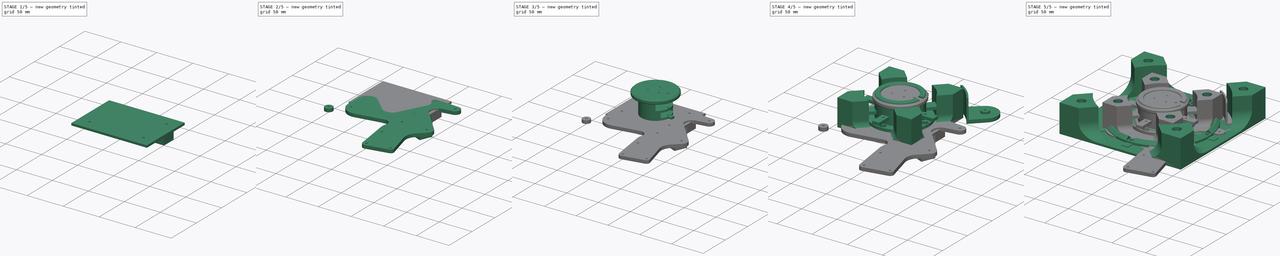
[diagram: build sequence overview — one tinted view per stage of 5, left to right]
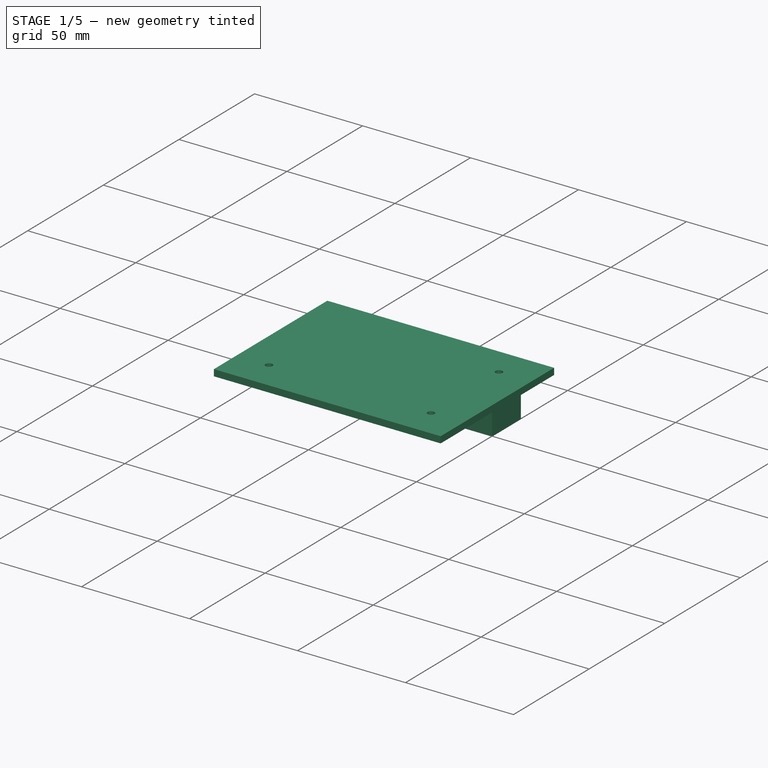
[diagram: stage 1 of 5 — iso view after this stage's code; geometry added in this stage tinted green]
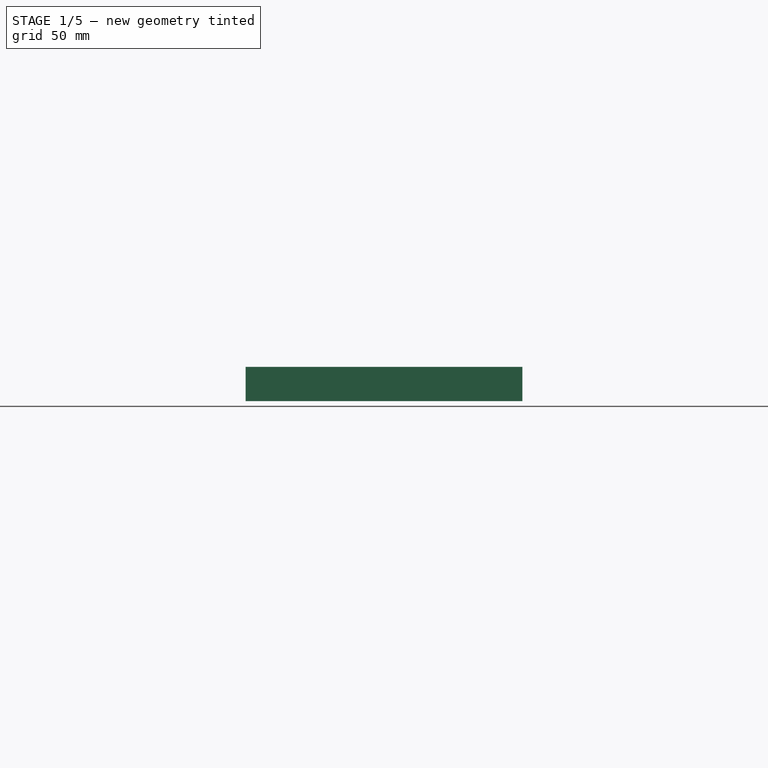
[diagram: stage 1 of 5 — front view after this stage's code; geometry added in this stage tinted green]
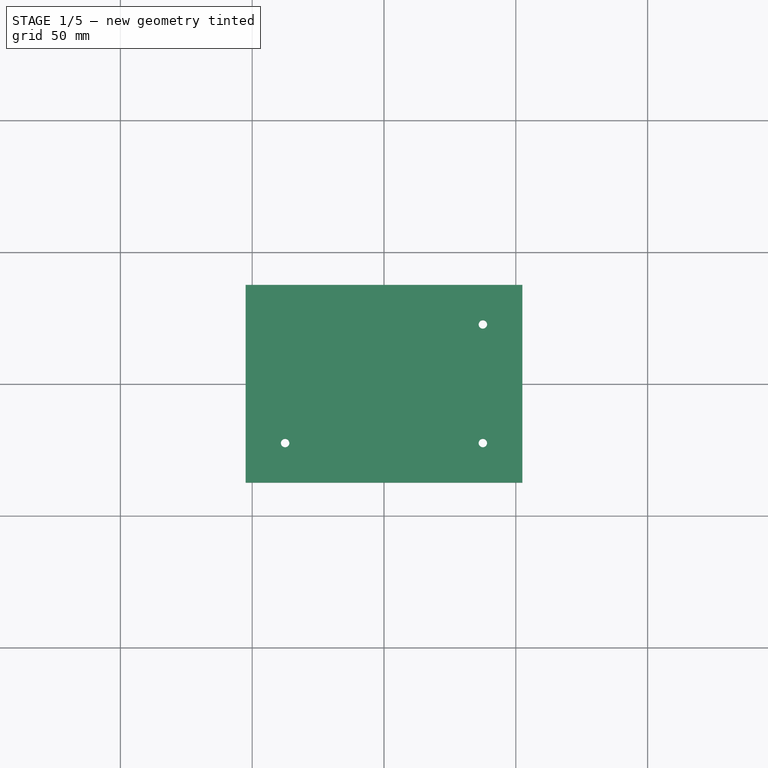
[diagram: stage 1 of 5 — top view after this stage's code; geometry added in this stage tinted green]
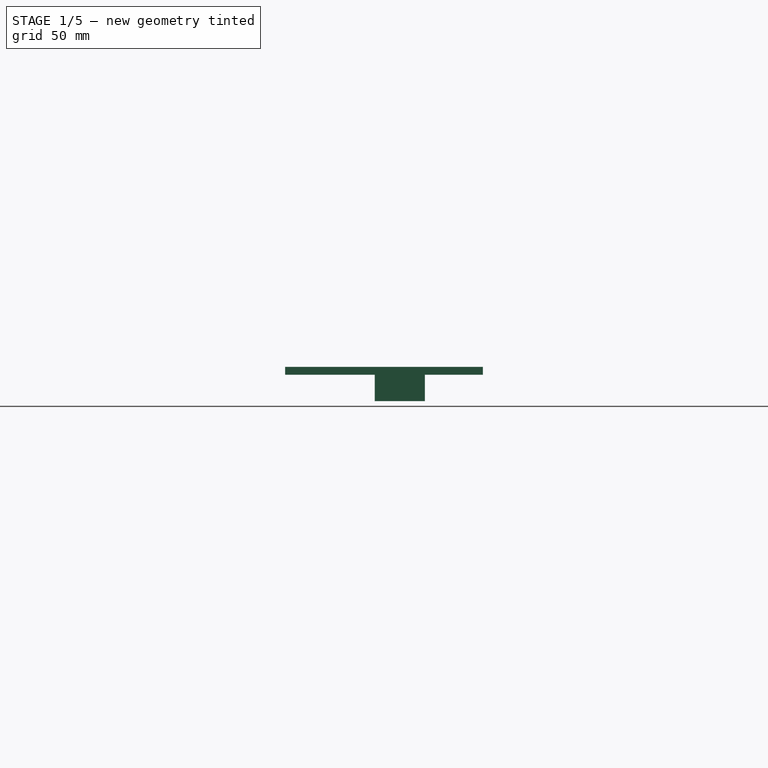
[diagram: stage 1 of 5 — right view after this stage's code; geometry added in this stage tinted green]
FCSTD DOCUMENT  (FreeCAD 1.0R38806 (Git))
Label: StdHolderNew
License: All rights reserved
LicenseURL: https://en.wikipedia.org/wiki/All_rights_reserved
objects: Sketcher::SketchObject×88, PartDesign::Pad×78, PartDesign::Pocket×61, PartDesign::Fillet×33, PartDesign::Body×16, PartDesign::Chamfer×5, PartDesign::Hole×4
note: 735 computed .brp shape members not serialized (recipe doc carries the construction recipe); baked Part::Feature solids carry a one-line shape summary decoded from their .brp

FEATURE [PartDesign::Body] Body014  label="5Dist"
  AllowCompound = false
  Group = -> [Sketch069,Pad054]
  Origin = -> Origin014
  Tip = -> Pad054
FEATURE [Sketcher::SketchObject] Sketch070
  ArcFitTolerance = 1e-06
  AttachmentSupport = -> [XY_Plane015]
  FullyConstrained = true
  MakeInternals = false
  MapMode = 5
  sketch-geometry (8):
    g0: LineSegment StartX=-52.5 StartY=-37.5 StartZ=0 EndX=52.5 EndY=-37.5 EndZ=0
    g1: LineSegment StartX=52.5 StartY=-37.5 StartZ=0 EndX=52.5 EndY=37.5 EndZ=0
    g2: LineSegment StartX=52.5 StartY=37.5 StartZ=0 EndX=-52.5 EndY=37.5 EndZ=0
    g3: LineSegment StartX=-52.5 StartY=37.5 StartZ=0 EndX=-52.5 EndY=-37.5 EndZ=0
    g4: GeomPoint [constr] X=0 Y=0 Z=0
    g5: Circle CenterX=37.5 CenterY=22.5 CenterZ=0 NormalX=0 NormalY=0 NormalZ=1 AngleXU=0 Radius=1.6
    g6: Circle CenterX=37.5 CenterY=-22.5 CenterZ=0 NormalX=0 NormalY=0 NormalZ=1 AngleXU=0 Radius=1.6
    g7: Circle CenterX=-37.5 CenterY=-22.5 CenterZ=0 NormalX=0 NormalY=0 NormalZ=1 AngleXU=0 Radius=1.6
  constraints (21):
    c: Coincident(g0,g1)
    c: Coincident(g1,g2)
    c: Coincident(g2,g3)
    c: Coincident(g3,g0)
    c: Horizontal(g0)
    c: Horizontal(g2)
    c: Vertical(g1)
    c: Vertical(g3)
    c: Symmetric(g2,g0,g4)
    c: Distance(g1,g3) = 105
    c: Distance(g0,g2) = 75
    c: Coincident(g4,g-1)
    c: Diameter(g5) = 3.2
    c: Diameter(g6) = 3.2
    c: Diameter(g7) = 3.2
    c: Distance(g5,g1) = 15
    c: Distance(g5,g2) = 15
    c: Distance(g6,g1) = 15
    c: Distance(g7,g3) = 15
    c: Distance(g7,g0) = 15
    c: Distance(g6,g0) = 15
FEATURE [PartDesign::Pad] Pad055
  Direction = (0,0,1)
  Length = 3
  Length2 = 10
  Profile = -> Sketch070
  ReferenceAxis = -> Sketch070 [N_Axis]
  Refine = true
  Suppressed = false
  Type = 0
FEATURE [Sketcher::SketchObject] Sketch071
  ArcFitTolerance = 1e-06
  AttachmentSupport = -> [Pad055]
  ExternalGeometry = -> [Pad055]
  FullyConstrained = true
  MakeInternals = false
  MapMode = 5
  Placement = pos=(0,0,0) rot=(1,0,0;3.14159rad)
  sketch-geometry (11):
    g0: LineSegment StartX=-49.5128 StartY=-23.104 StartZ=0 EndX=45.1865 EndY=17.406 EndZ=0
    g1: LineSegment StartX=-45.1865 StartY=-33.2175 StartZ=0 EndX=49.5128 EndY=7.29244 EndZ=0
    g2: LineSegment StartX=-49.5128 StartY=-23.104 StartZ=0 EndX=-45.1865 EndY=-33.2175 EndZ=0
    g3: LineSegment StartX=45.1865 StartY=17.406 StartZ=0 EndX=49.5128 EndY=7.29244 EndZ=0
    g4: LineSegment [constr] StartX=-49.5128 StartY=-23.104 StartZ=0 EndX=49.5128 EndY=7.29244 EndZ=0
    g5: LineSegment [constr] StartX=-45.1865 StartY=-33.2175 StartZ=0 EndX=45.1865 EndY=17.406 EndZ=0
    g6: GeomPoint [constr] X=0 Y=-7.90576 Z=0
    g7: LineSegment StartX=-52.5 StartY=-20.0312 StartZ=0 EndX=45.0273 EndY=21.6885 EndZ=0
    g8: LineSegment StartX=45.0273 StartY=21.6885 StartZ=0 EndX=52.5 EndY=4.21968 EndZ=0
    g9: LineSegment StartX=52.5 StartY=4.21968 StartZ=0 EndX=-45.0273 EndY=-37.5 EndZ=0
    g10: LineSegment StartX=-45.0273 StartY=-37.5 StartZ=0 EndX=-52.5 EndY=-20.0312 EndZ=0
  constraints (30):
    c: Parallel(g0,g1)
    c: Equal(g0,g1)
    c: Distance(g1,g0) = 11
    c: Coincident(g2,g0)
    c: Coincident(g2,g1)
    c: Coincident(g3,g0)
    c: Coincident(g3,g1)
    c: Angle(g1,g2) = 1.5708
    c: Distance(g0,g0) = 103
    c: Coincident(g4,g0)
    c: Coincident(g4,g1)
    c: Coincident(g5,g1)
    c: Coincident(g5,g0)
    c: PointOnObject(g6,g4)
    c: PointOnObject(g6,g5)
    c: PointOnObject(g6,g-2)
    c: Coincident(g8,g7)
    c: Coincident(g9,g8)
    c: Coincident(g10,g9)
    c: Coincident(g10,g7)
    c: Parallel(g9,g7)
    c: Parallel(g10,g8)
    c: Angle(g-1,g0) = 0.404218
    c: Parallel(g7,g0)
    c: Parallel(g8,g3)
    c: Distance(g7,g0) = 4
    c: Distance(g8,g8) = 19
    c: PointOnObject(g7,g-3)
    c: PointOnObject(g8,g-4)
    c: PointOnObject(g9,g-5)
FEATURE [PartDesign::Pad] Pad056
  BaseFeature = -> Pad055
  Direction = (0,0,-1)
  Length = 5
  Length2 = 10
  Profile = -> Sketch071
  ReferenceAxis = -> Sketch071 [N_Axis]
  Refine = true
  Suppressed = false
  Type = 0
FEATURE [Sketcher::SketchObject] Sketch072
  ArcFitTolerance = 1e-06
  AttachmentSupport = -> [Pad056]
  ExternalGeometry = -> [Pad056]
  FullyConstrained = false
  MakeInternals = false
  MapMode = 5
  Placement = pos=(0,0,0) rot=(1,0,0;3.14159rad)
  sketch-geometry (12):
    g0: LineSegment StartX=-31.9029 StartY=-11.2203 StartZ=0 EndX=-36.2292 EndY=-1.1068 EndZ=0
    g1: LineSegment StartX=-36.2292 StartY=-1.1068 StartZ=0 EndX=12.4995 EndY=19.7381 EndZ=0
    g2: LineSegment StartX=-31.9029 StartY=-11.2203 StartZ=0 EndX=16.8258 EndY=9.6246 EndZ=0
    g3: LineSegment StartX=16.8258 StartY=9.6246 StartZ=0 EndX=12.4995 EndY=19.7381 EndZ=0
    g4: LineSegment StartX=20.4992 StartY=11.196 StartZ=0 EndX=16.1729 EndY=21.3095 EndZ=0
    g5: ArcOfCircle CenterX=12.4995 CenterY=19.7381 CenterZ=0 NormalX=0 NormalY=0 NormalZ=-1 AngleXU=-0.404218 Radius=3.99533 StartAngle=1.5708 EndAngle=3.14159
    g6: LineSegment StartX=-37.8006 StartY=2.56655 StartZ=0 EndX=10.9281 EndY=23.4115 EndZ=0
    g7: ArcOfCircle CenterX=-36.2292 CenterY=-1.1068 CenterZ=0 NormalX=0 NormalY=0 NormalZ=-1 AngleXU=-1.97501 Radius=3.99533 StartAngle=1.5708 EndAngle=3.14159
    g8: LineSegment StartX=-35.5763 StartY=-12.7917 StartZ=0 EndX=-39.9026 EndY=-2.67816 EndZ=0
    g9: ArcOfCircle CenterX=-31.9029 CenterY=-11.2203 CenterZ=0 NormalX=0 NormalY=0 NormalZ=-1 AngleXU=2.73737 Radius=3.99533 StartAngle=1.5708 EndAngle=3.14159
    g10: LineSegment StartX=-30.3316 StartY=-14.8937 StartZ=0 EndX=18.3972 EndY=5.95125 EndZ=0
    g11: ArcOfCircle CenterX=16.8258 CenterY=9.6246 CenterZ=0 NormalX=0 NormalY=0 NormalZ=-1 AngleXU=1.16658 Radius=3.99533 StartAngle=1.5708 EndAngle=3.14159
  constraints (19):
    c: PointOnObject(g0,g-3)
    c: Distance(g0) = 11
    c: Distance(g1) = 53
    c: Coincident(g1,g0)
    c: Distance(g2) = 53
    c: Coincident(g2,g0)
    c: PointOnObject(g2,g-3)
    c: Angle(g2,g0) = 1.5708
    c: Coincident(g3,g2)
    c: Coincident(g3,g1)
    c: Parallel(g2,g1)
    c: Tangent(g4,g5) = -1.5708
    c: Tangent(g4,g11) = -1.5708
    c: Tangent(g5,g6) = 1.5708
    c: Tangent(g6,g7) = 1.5708
    c: Tangent(g7,g8) = 1.5708
    c: Tangent(g8,g9) = 1.5708
    c: Tangent(g9,g10) = -1.5708
    c: Tangent(g10,g11) = -1.5708
FEATURE [PartDesign::Pad] Pad057
  BaseFeature = -> Pad056
  Direction = (0,0,-1)
  Length = 4
  Length2 = 10
  Profile = -> Sketch072
  ReferenceAxis = -> Sketch072 [N_Axis]
  Refine = true
  Suppressed = false
  Type = 0
FEATURE [Sketcher::SketchObject] Sketch073
  ArcFitTolerance = 1e-06
  AttachmentSupport = -> [Pad057]
  ExternalGeometry = -> [Pad057]
  FullyConstrained = false
  MakeInternals = false
  MapMode = 5
  Placement = pos=(0,0,0) rot=(1,0,0;3.14159rad)
  sketch-geometry (10):
    g0: LineSegment StartX=-7.92738 StartY=-37.5 StartZ=0 EndX=33.0726 EndY=-37.5 EndZ=0
    g1: LineSegment StartX=33.0726 StartY=-37.5 StartZ=0 EndX=33.0726 EndY=-18.5 EndZ=0
    g2: LineSegment StartX=33.0726 StartY=-18.5 StartZ=0 EndX=-7.92738 EndY=-18.5 EndZ=0
    g3: LineSegment StartX=-7.92738 StartY=-18.5 StartZ=0 EndX=-7.92738 EndY=-37.5 EndZ=0
    g4: GeomPoint [constr] X=12.5726 Y=-28 Z=0
    g5: LineSegment StartX=-3.92738 StartY=-33.5 StartZ=0 EndX=29.0726 EndY=-33.5 EndZ=0
    g6: LineSegment StartX=29.0726 StartY=-33.5 StartZ=0 EndX=29.0726 EndY=-22.5 EndZ=0
    g7: LineSegment StartX=29.0726 StartY=-22.5 StartZ=0 EndX=-3.92738 EndY=-22.5 EndZ=0
    g8: LineSegment StartX=-3.92738 StartY=-22.5 StartZ=0 EndX=-3.92738 EndY=-33.5 EndZ=0
    g9: GeomPoint [constr] X=12.5726 Y=-28 Z=0
  constraints (24):
    c: Coincident(g0,g1)
    c: Coincident(g1,g2)
    c: Coincident(g2,g3)
    c: Coincident(g3,g0)
    c: Horizontal(g0)
    c: Horizontal(g2)
    c: Vertical(g1)
    c: Vertical(g3)
    c: Symmetric(g2,g0,g4)
    c: Distance(g1,g3) = 41
    c: Distance(g0,g2) = 19
    c: DistanceY(g4,g-1) = 28
    c: Coincident(g5,g6)
    c: Coincident(g6,g7)
    c: Coincident(g7,g8)
    c: Coincident(g8,g5)
    c: Horizontal(g5)
    c: Horizontal(g7)
    c: Vertical(g6)
    c: Vertical(g8)
    c: Symmetric(g7,g5,g9)
    c: Distance(g6,g8) = 33
    c: Distance(g5,g7) = 11
    c: Coincident(g9,g4)
FEATURE [PartDesign::Pad] Pad058
  BaseFeature = -> Pad057
  Direction = (0,0,-1)
  Length = 10
  Length2 = 10
  Profile = -> Sketch073
  ReferenceAxis = -> Sketch073 [N_Axis]
  Refine = true
  Suppressed = false
  Type = 0
FEATURE [Sketcher::SketchObject] Sketch074
  ArcFitTolerance = 1e-06
  AttachmentSupport = -> [Pad058]
  ExternalGeometry = -> [Pad058]
  FullyConstrained = false
  MakeInternals = false
  MapMode = 5
  Placement = pos=(0,0,0) rot=(1,0,0;3.14159rad)
  sketch-geometry (12):
    g0: LineSegment StartX=-42.971 StartY=0.354781 StartZ=0 EndX=-12.6305 EndY=13.3337 EndZ=0
    g1: LineSegment StartX=-42.971 StartY=0.354781 StartZ=0 EndX=-44.9375 EndY=4.95183 EndZ=0
    g2: LineSegment StartX=-44.9375 StartY=4.95183 StartZ=0 EndX=-14.597 EndY=17.9307 EndZ=0
    g3: LineSegment StartX=-14.597 StartY=17.9307 StartZ=0 EndX=-12.6305 EndY=13.3337 EndZ=0
    g4: LineSegment StartX=-10.936 StartY=19.5428 StartZ=0 EndX=-8.9362 EndY=14.868 EndZ=0
    g5: ArcOfCircle CenterX=-12.5749 CenterY=13.3114 CenterZ=0 NormalX=0 NormalY=0 NormalZ=1 AngleXU=-2.73737 Radius=3.95769 StartAngle=1.5708 EndAngle=3.14159
    g6: LineSegment StartX=-41.4367 StartY=-3.3395 StartZ=0 EndX=-11.0184 EndY=9.67269 EndZ=0
    g7: ArcOfCircle CenterX=-42.9933 CenterY=0.299239 CenterZ=0 NormalX=0 NormalY=0 NormalZ=1 AngleXU=1.97501 Radius=3.95769 StartAngle=1.5708 EndAngle=3.14159
    g8: LineSegment StartX=-46.632 StartY=-1.25732 StartZ=0 EndX=-48.6318 EndY=3.41753 EndZ=0
    g9: ArcOfCircle CenterX=-44.9931 CenterY=4.97409 CenterZ=0 NormalX=0 NormalY=0 NormalZ=1 AngleXU=0.404218 Radius=3.95769 StartAngle=1.5708 EndAngle=3.14159
    g10: LineSegment StartX=-46.5496 StartY=8.61283 StartZ=0 EndX=-16.1313 EndY=21.625 EndZ=0
    g11: ArcOfCircle CenterX=-14.5747 CenterY=17.9863 CenterZ=0 NormalX=0 NormalY=0 NormalZ=1 AngleXU=-1.16658 Radius=3.95769 StartAngle=1.5708 EndAngle=3.14159
  constraints (30):
    c: PointOnObject(g0,g-3)
    c: PointOnObject(g0,g-3)
    c: Coincident(g1,g0)
    c: Coincident(g2,g1)
    c: Coincident(g3,g2)
    c: Coincident(g3,g0)
    c: Angle(g0,g1) = 1.5708
    c: Parallel(g0,g2)
    c: Parallel(g1,g3)
    c: Distance(g2,g2) = 33
    c: Distance(g1,g1) = 5
    c: Tangent(g4,g5) = 1.5708
    c: Tangent(g4,g11) = 1.5708
    c: Tangent(g5,g6) = -1.5708
    c: Tangent(g6,g7) = -1.5708
    c: Tangent(g7,g8) = 1.5708
    c: Tangent(g8,g9) = 1.5708
    c: Tangent(g9,g10) = 1.5708
    c: Tangent(g10,g11) = 1.5708
    c: Parallel(g2,g10)
    c: Parallel(g0,g6)
    c: Parallel(g8,g1)
    c: Parallel(g3,g4)
    c: Distance(g1,g8) = 4
    c: Distance(g6,g0) = 4
    c: Distance(g10,g2) = 4
    c: Distance(g4,g3) = 4
    c: Equal(g9,g7)
    c: Equal(g7,g11)
    c: Equal(g9,g5)
FEATURE [PartDesign::Pad] Pad059
  BaseFeature = -> Pad058
  Direction = (0,0,-1)
  Length = 2
  Length2 = 10
  Profile = -> Sketch074
  ReferenceAxis = -> Sketch074 [N_Axis]
  Refine = true
  Suppressed = false
  Type = 0
FEATURE [Sketcher::SketchObject] Sketch075
  ArcFitTolerance = 1e-06
  AttachmentSupport = -> [Pad059]
  ExternalGeometry = -> [Pad059]
  FullyConstrained = false
  MakeInternals = false
  MapMode = 5
  Placement = pos=(0,0,0) rot=(1,0,0;3.14159rad)
  sketch-geometry (12):
    g0: LineSegment StartX=-8.95284 StartY=14.9069 StartZ=0 EndX=21.3877 EndY=27.8858 EndZ=0
    g1: LineSegment StartX=21.3877 StartY=27.8858 StartZ=0 EndX=20.2078 EndY=30.644 EndZ=0
    g2: LineSegment StartX=20.2078 StartY=30.644 StartZ=0 EndX=-10.1327 EndY=17.6651 EndZ=0
    g3: LineSegment StartX=-10.1327 StartY=17.6651 StartZ=0 EndX=-8.95284 EndY=14.9069 EndZ=0
    g4: LineSegment StartX=-13.8104 StartY=16.0919 StartZ=0 EndX=-12.6305 EndY=13.3337 EndZ=0
    g5: ArcOfCircle CenterX=-8.95284 CenterY=14.9069 CenterZ=0 NormalX=0 NormalY=0 NormalZ=-1 AngleXU=2.73737 Radius=4 StartAngle=1.5708 EndAngle=3.14159
    g6: LineSegment StartX=-7.37964 StartY=11.2292 StartZ=0 EndX=22.9609 EndY=24.2081 EndZ=0
    g7: ArcOfCircle CenterX=21.3877 CenterY=27.8858 CenterZ=0 NormalX=0 NormalY=0 NormalZ=-1 AngleXU=1.16658 Radius=4 StartAngle=1.5708 EndAngle=3.14159
    g8: LineSegment StartX=25.0653 StartY=29.459 StartZ=0 EndX=23.8854 EndY=32.2172 EndZ=0
    g9: ArcOfCircle CenterX=20.2078 CenterY=30.644 CenterZ=0 NormalX=0 NormalY=0 NormalZ=-1 AngleXU=-0.404218 Radius=4 StartAngle=1.5708 EndAngle=3.14159
    g10: LineSegment StartX=18.6346 StartY=34.3217 StartZ=0 EndX=-11.7059 EndY=21.3428 EndZ=0
    g11: ArcOfCircle CenterX=-10.1327 CenterY=17.6651 CenterZ=0 NormalX=0 NormalY=0 NormalZ=-1 AngleXU=-1.97501 Radius=4 StartAngle=1.5708 EndAngle=3.14159
  constraints (17):
    c: Coincident(g-3,g0)
    c: PointOnObject(g0,g-3)
    c: Perpendicular(g0,g1) = 1.5708
    c: Perpendicular(g1,g2) = 1.5708
    c: PointOnObject(g2,g-4)
    c: Coincident(g3,g2)
    c: Coincident(g3,g0)
    c: Distance(g0,g0) = 33
    c: Distance(g1,g1) = 3
    c: Tangent(g4,g5) = -1.5708
    c: Tangent(g4,g11) = -1.5708
    c: Tangent(g5,g6) = -1.5708
    c: Tangent(g6,g7) = -1.5708
    c: Tangent(g7,g8) = -1.5708
    c: Tangent(g8,g9) = -1.5708
    c: Tangent(g9,g10) = -1.5708
    c: Tangent(g10,g11) = -1.5708
FEATURE [PartDesign::Pad] Pad060
  BaseFeature = -> Pad059
  Direction = (0,0,-1)
  Length = 1
  Length2 = 10
  Profile = -> Sketch075
  ReferenceAxis = -> Sketch075 [N_Axis]
  Refine = true
  Suppressed = false
  Type = 0
FEATURE [PartDesign::Pad] Pad061
  BaseFeature = -> Pad060
  Direction = (0,0,-1)
  Length = 3
  Length2 = 10
  Profile = -> Pad060 [Face29]
  Refine = true
  Suppressed = false
  Type = 0
FEATURE [Sketcher::SketchObject] Sketch076
  ArcFitTolerance = 1e-06
  AttachmentSupport = -> [Pad061]
  ExternalGeometry = -> [Pad061]
  FullyConstrained = false
  MakeInternals = false
  MapMode = 5
  Placement = pos=(0,0,-13) rot=(1,0,0;3.14159rad)
  sketch-geometry (8):
    g0: LineSegment [constr] StartX=-7.92738 StartY=-18.5 StartZ=0 EndX=33.0726 EndY=-37.5 EndZ=0
    g1: LineSegment [constr] StartX=-7.92738 StartY=-37.5 StartZ=0 EndX=33.0726 EndY=-18.5 EndZ=0
    g2: GeomPoint [constr] X=12.5726 Y=-28 Z=0
    g3: LineSegment StartX=1.07262 StartY=-18.2597 StartZ=0 EndX=1.07262 EndY=-37.7403 EndZ=0
    g4: LineSegment StartX=1.07262 StartY=-37.7403 StartZ=0 EndX=24.0726 EndY=-37.7403 EndZ=0
    g5: LineSegment StartX=24.0726 StartY=-37.7403 StartZ=0 EndX=24.0726 EndY=-18.2597 EndZ=0
    g6: LineSegment StartX=24.0726 StartY=-18.2597 StartZ=0 EndX=1.07262 EndY=-18.2597 EndZ=0
    g7: GeomPoint [constr] X=12.5726 Y=-28 Z=0
  constraints (17):
    c: Coincident(g0,g-3)
    c: Coincident(g0,g-4)
    c: Coincident(g1,g-3)
    c: Coincident(g1,g-4)
    c: PointOnObject(g2,g0)
    c: PointOnObject(g2,g1)
    c: Coincident(g3,g4)
    c: Coincident(g4,g5)
    c: Coincident(g5,g6)
    c: Coincident(g6,g3)
    c: Vertical(g3)
    c: Vertical(g5)
    c: Horizontal(g4)
    c: Horizontal(g6)
    c: Symmetric(g5,g3,g7)
    c: Distance(g3,g5) = 23
    c: Coincident(g7,g2)
FEATURE [PartDesign::Pocket] Pocket053
  BaseFeature = -> Pad061
  Direction = (0,0,1)
  Length = 12
  Length2 = 5
  Profile = -> Sketch076
  ReferenceAxis = -> Sketch076 [N_Axis]
  Refine = true
  Suppressed = false
  Type = 0
FEATURE [PartDesign::Pad] Pad062
  BaseFeature = -> Pocket053
  Direction = (0,0,-1)
  Length = 10
  Length2 = 10
  Profile = -> Pocket053 [Face58]
  Refine = true
  Suppressed = false
  Type = 3
  UpToFace = -> Pocket053 [Face69]
FEATURE [PartDesign::Pad] Pad063
  BaseFeature = -> Pad062
  Direction = (0,0,-1)
  Length = 10
  Length2 = 10
  Profile = -> Pad062 [Face64]
  Refine = true
  Suppressed = false
  Type = 0
FEATURE [Sketcher::SketchObject] Sketch077
  ArcFitTolerance = 1e-06
  AttachmentSupport = -> [Pad063]
  ExternalGeometry = -> [Pad063]
  FullyConstrained = false
  MakeInternals = false
  MapMode = 5
  Placement = pos=(0,0,-12) rot=(1,0,0;3.14159rad)
  sketch-geometry (8):
    g0: LineSegment StartX=-36.7433 StartY=12.8077 StartZ=0 EndX=-22.9521 EndY=18.7072 EndZ=0
    g1: LineSegment StartX=-22.9521 StartY=18.7072 StartZ=0 EndX=-16.1016 EndY=2.69286 EndZ=0
    g2: LineSegment StartX=-16.1016 StartY=2.69286 StartZ=0 EndX=-29.8927 EndY=-3.20664 EndZ=0
    g3: LineSegment StartX=-29.8927 StartY=-3.20664 StartZ=0 EndX=-36.7433 EndY=12.8077 EndZ=0
    g4: LineSegment StartX=-7.5686 StartY=23.1126 StartZ=0 EndX=3.46432 EndY=27.8322 EndZ=0
    g5: LineSegment StartX=3.46432 StartY=27.8322 StartZ=0 EndX=9.0968 EndY=14.6653 EndZ=0
    g6: LineSegment StartX=9.0968 StartY=14.6653 StartZ=0 EndX=-1.93612 EndY=9.94566 EndZ=0
    g7: LineSegment StartX=-1.93612 StartY=9.94566 StartZ=0 EndX=-7.5686 EndY=23.1126 EndZ=0
  constraints (21):
    c: PointOnObject(g0,g-4)
    c: PointOnObject(g0,g-4)
    c: Coincident(g1,g0)
    c: Coincident(g2,g1)
    c: Coincident(g3,g2)
    c: Coincident(g3,g0)
    c: Parallel(g0,g2)
    c: Parallel(g3,g1)
    c: Angle(g3,g0) = 1.5708
    c: Distance(g0,g0) = 15
    c: Distance(g3,g-5) = 5
    c: PointOnObject(g4,g-3)
    c: Symmetric(g-3,g-3,g4)
    c: Coincident(g5,g4)
    c: Coincident(g6,g5)
    c: Coincident(g7,g6)
    c: Coincident(g7,g4)
    c: Angle(g4,g5) = 1.5708
    c: Parallel(g7,g5)
    c: Parallel(g4,g6)
    c: Distance(g4,g4) = 12
FEATURE [PartDesign::Pocket] Pocket054
  BaseFeature = -> Pad063
  Direction = (0,0,1)
  Length = 10
  Length2 = 5
  Profile = -> Sketch077
  ReferenceAxis = -> Sketch077 [N_Axis]
  Refine = true
  Suppressed = false
  Type = 0
FEATURE [PartDesign::Pocket] Pocket055
  BaseFeature = -> Pocket054
  Direction = (0.91941,-0.3933,0)
  Length = 10
  Length2 = 5
  Profile = -> Pocket054 [Face40]
  Refine = true
  Suppressed = false
  Type = 0
FEATURE [PartDesign::Pad] Pad064
  BaseFeature = -> Pocket055
  Direction = (0.91941,-0.3933,0)
  Length = 3
  Length2 = 10
  Profile = -> Pocket055 [Face23]
  Refine = true
  Suppressed = false
  Type = 0
FEATURE [Sketcher::SketchObject] Sketch078
  ArcFitTolerance = 1e-06
  AttachmentSupport = -> [Pad064]
  ExternalGeometry = -> [Pad064]
  FullyConstrained = false
  MakeInternals = false
  MapMode = 5
  Placement = pos=(0,0,-5) rot=(1,0,0;3.14159rad)
  sketch-geometry (16):
    g0: LineSegment StartX=-52.5 StartY=-20.0312 StartZ=0 EndX=-45.0273 EndY=-37.5 EndZ=0
    g1: LineSegment StartX=-45.0273 StartY=-37.5 StartZ=0 EndX=-17.445 EndY=-25.701 EndZ=0
    g2: LineSegment StartX=-17.445 StartY=-25.701 StartZ=0 EndX=-19.0182 EndY=-22.0234 EndZ=0
    g3: LineSegment StartX=-19.0182 StartY=-22.0234 StartZ=0 EndX=-45.1865 EndY=-33.2175 EndZ=0
    g4: LineSegment StartX=-45.1865 StartY=-33.2175 StartZ=0 EndX=-49.5128 EndY=-23.104 EndZ=0
    g5: LineSegment StartX=-49.5128 StartY=-23.104 StartZ=0 EndX=-23.3445 EndY=-11.9098 EndZ=0
    g6: LineSegment StartX=-23.3445 StartY=-11.9098 StartZ=0 EndX=-24.9177 EndY=-8.2322 EndZ=0
    g7: LineSegment StartX=-24.9177 StartY=-8.2322 StartZ=0 EndX=-52.5 EndY=-20.0312 EndZ=0
    g8: LineSegment StartX=45.0273 StartY=21.6885 StartZ=0 EndX=52.5 EndY=4.21968 EndZ=0
    g9: LineSegment StartX=15.7236 StartY=-11.5123 StartZ=0 EndX=14.1504 EndY=-7.83468 EndZ=0
    g10: LineSegment StartX=49.5128 StartY=7.29244 StartZ=0 EndX=45.1865 EndY=17.406 EndZ=0
    g11: LineSegment StartX=45.1865 StartY=17.406 StartZ=0 EndX=9.82409 EndY=2.27883 EndZ=0
    g12: LineSegment StartX=9.82409 StartY=2.27883 StartZ=0 EndX=8.25089 EndY=5.95647 EndZ=0
    g13: LineSegment StartX=8.25089 StartY=5.95647 StartZ=0 EndX=45.0273 EndY=21.6885 EndZ=0
    g14: LineSegment StartX=14.1504 StartY=-7.83468 StartZ=0 EndX=49.5128 EndY=7.29244 EndZ=0
    g15: LineSegment StartX=52.5 StartY=4.21968 StartZ=0 EndX=15.7236 EndY=-11.5123 EndZ=0
  constraints (40):
    c: Coincident(g0,g-3)
    c: Coincident(g0,g-8)
    c: Coincident(g1,g0)
    c: PointOnObject(g1,g-8)
    c: Coincident(g2,g1)
    c: PointOnObject(g2,g-6)
    c: Coincident(g3,g2)
    c: Coincident(g3,g-6)
    c: Coincident(g4,g3)
    c: Coincident(g4,g-4)
    c: Coincident(g5,g4)
    c: PointOnObject(g5,g-4)
    c: Coincident(g6,g5)
    c: PointOnObject(g6,g-3)
    c: Coincident(g7,g6)
    c: Coincident(g7,g0)
    c: Parallel(g0,g6)
    c: Parallel(g0,g2)
    c: Distance(g7,g7) = 30
    c: Distance(g1,g1) = 30
    c: Coincident(g8,g-7)
    c: Coincident(g8,g-7)
    c: PointOnObject(g9,g-6)
    c: Coincident(g10,g-4)
    c: Coincident(g11,g10)
    c: PointOnObject(g11,g-4)
    c: Coincident(g12,g11)
    c: PointOnObject(g12,g-3)
    c: Coincident(g13,g12)
    c: Coincident(g13,g8)
    c: Parallel(g12,g8)
    c: Coincident(g14,g9)
    c: Coincident(g14,g10)
    c: Distance(g13,g13) = 40
    c: Parallel(g9,g8)
    c: PointOnObject(g9,g-5)
    c: Coincident(g15,g8)
    c: Coincident(g15,g9)
    c: Distance(g15,g15) = 40
    c: Parallel(g10,g8)
FEATURE [PartDesign::Pad] Pad065
  BaseFeature = -> Pad064
  Direction = (0,0,-1)
  Length = 25
  Length2 = 10
  Profile = -> Sketch078
  ReferenceAxis = -> Sketch078 [N_Axis]
  Refine = true
  Suppressed = false
  Type = 0
FEATURE [PartDesign::Pad] Pad066
  BaseFeature = -> Pad065
  Direction = (0,0,-1)
  Length = 10
  Length2 = 10
  Profile = -> Pad065 [Face21,Face52]
  Refine = true
  Suppressed = false
  Type = 3
  UpToFace = -> Pad065 [Face77]
FEATURE [Sketcher::SketchObject] Sketch079
  ArcFitTolerance = 1e-06
  AttachmentSupport = -> [Pad066]
  ExternalGeometry = -> [Pad066]
  FullyConstrained = true
  MakeInternals = false
  MapMode = 5
  Placement = pos=(0,0,-4) rot=(1,0,0;3.14159rad)
  sketch-geometry (4):
    g0: LineSegment StartX=-12.6305 StartY=13.3337 StartZ=0 EndX=-8.95284 EndY=14.9069 EndZ=0
    g1: LineSegment StartX=-8.95284 StartY=14.9069 StartZ=0 EndX=-7.38148 EndY=11.2335 EndZ=0
    g2: LineSegment StartX=-12.6305 StartY=13.3337 StartZ=0 EndX=-11.0591 EndY=9.66033 EndZ=0
    g3: LineSegment StartX=-11.0591 StartY=9.66033 StartZ=0 EndX=-7.38148 EndY=11.2335 EndZ=0
  constraints (10):
    c: Coincident(g0,g-3)
    c: Coincident(g0,g-5)
    c: Coincident(g1,g0)
    c: PointOnObject(g1,g-4)
    c: Parallel(g1,g-6)
    c: Coincident(g2,g0)
    c: PointOnObject(g2,g-4)
    c: Parallel(g2,g1)
    c: Coincident(g3,g1)
    c: Coincident(g3,g2)
FEATURE [PartDesign::Pad] Pad067
  BaseFeature = -> Pad066
  Direction = (0,0,-1)
  Length = 10
  Length2 = 10
  Profile = -> Sketch079
  ReferenceAxis = -> Sketch079 [N_Axis]
  Refine = true
  Suppressed = false
  Type = 0
FEATURE [PartDesign::Pad] Pad068
  BaseFeature = -> Pad067
  Direction = (0,0,-1)
  Length = 8
  Length2 = 10
  Profile = -> Pad067 [Face9]
  Refine = true
  Suppressed = false
  Type = 0
FEATURE [PartDesign::Pad] Pad069
  BaseFeature = -> Pad068
  Direction = (0,0,-1)
  Length = 8
  Length2 = 10
  Profile = -> Pad068 [Face5]
  Refine = true
  Suppressed = false
  Type = 0
FEATURE [PartDesign::Fillet] Fillet021
  Base = -> Pad069 [Edge88,Edge45]
  BaseFeature = -> Pad069
  Radius = 4
  Refine = true
  SupportTransform = false
  Suppressed = false
  UseAllEdges = false
FEATURE [PartDesign::Pad] Pad070
  BaseFeature = -> Fillet021
  Direction = (0,0,-1)
  Length = 5
  Length2 = 10
  Profile = -> Fillet021 [Face16]
  Refine = true
  Suppressed = false
  Type = 0
FEATURE [PartDesign::Fillet] Fillet022
  Base = -> Pad070 [Edge233,Edge116,Edge105,Edge122]
  BaseFeature = -> Pad070
  Radius = 3
  Refine = true
  SupportTransform = false
  Suppressed = false
  UseAllEdges = false
FEATURE [PartDesign::Fillet] Fillet023
  Base = -> Fillet022 [Edge235,Edge99]
  BaseFeature = -> Fillet022
  Radius = 3
  Refine = true
  SupportTransform = false
  Suppressed = false
  UseAllEdges = false
FEATURE [PartDesign::Fillet] Fillet024
  Base = -> Fillet023 [Edge159,Edge28]
  BaseFeature = -> Fillet023
  Radius = 3
  Refine = true
  SupportTransform = false
  Suppressed = false
  UseAllEdges = false
FEATURE [PartDesign::Fillet] Fillet025
  Base = -> Fillet024 [Edge83,Edge10]
  BaseFeature = -> Fillet024
  Radius = 3
  Refine = true
  SupportTransform = false
  Suppressed = false
  UseAllEdges = false
FEATURE [PartDesign::Fillet] Fillet026
  Base = -> Fillet025 [Edge221,Edge280,Edge284,Edge217]
  BaseFeature = -> Fillet025
  Radius = 3
  Refine = true
  SupportTransform = false
  Suppressed = false
  UseAllEdges = false
FEATURE [PartDesign::Fillet] Fillet027
  Base = -> Fillet026 [Edge117,Edge24,Edge116,Edge30]
  BaseFeature = -> Fillet026
  Radius = 6
  Refine = true
  SupportTransform = false
  Suppressed = false
  UseAllEdges = false
FEATURE [PartDesign::Fillet] Fillet028
  Base = -> Fillet027 [Edge55,Edge269,Edge57,Edge270]
  BaseFeature = -> Fillet027
  Radius = 6
  Refine = true
  SupportTransform = false
  Suppressed = false
  UseAllEdges = false
FEATURE [PartDesign::Fillet] Fillet029
  Base = -> Fillet028 [Edge364,Edge363]
  BaseFeature = -> Fillet028
  Radius = 6
  Refine = true
  SupportTransform = false
  Suppressed = false
  UseAllEdges = false
FEATURE [PartDesign::Fillet] Fillet030
  Base = -> Fillet029 [Edge146,Edge147]
  BaseFeature = -> Fillet029
  Radius = 6
  Refine = true
  SupportTransform = false
  Suppressed = false
  UseAllEdges = false
FEATURE [PartDesign::Fillet] Fillet031
  Base = -> Fillet030 [Edge235,Edge228]
  BaseFeature = -> Fillet030
  Radius = 5
  Refine = true
  SupportTransform = false
  Suppressed = false
  UseAllEdges = false
FEATURE [PartDesign::Fillet] Fillet032
  Base = -> Fillet031 [Edge204,Edge193]
  BaseFeature = -> Fillet031
  Radius = 5
  Refine = true
  SupportTransform = false
  Suppressed = false
  UseAllEdges = false
FEATURE [Sketcher::SketchObject] Sketch080
  ArcFitTolerance = 1e-06
  AttachmentSupport = -> [Fillet032]
  ExternalGeometry = -> [Fillet032]
  FullyConstrained = true
  MakeInternals = false
  MapMode = 5
  Placement = pos=(0,0,0) rot=(1,0,0;3.14159rad)
  sketch-geometry (4):
    g0: LineSegment StartX=-52.5 StartY=37.5 StartZ=0 EndX=-52.5 EndY=-37.5 EndZ=0
    g1: LineSegment StartX=-52.5 StartY=-37.5 StartZ=0 EndX=52.5 EndY=-37.5 EndZ=0
    g2: LineSegment StartX=52.5 StartY=-37.5 StartZ=0 EndX=52.5 EndY=37.5 EndZ=0
    g3: LineSegment StartX=52.5 StartY=37.5 StartZ=0 EndX=-52.5 EndY=37.5 EndZ=0
  constraints (11):
    c: Coincident(g0,g1)
    c: Coincident(g1,g2)
    c: Coincident(g2,g3)
    c: Coincident(g3,g0)
    c: Vertical(g0)
    c: Vertical(g2)
    c: Horizontal(g1)
    c: Horizontal(g3)
    c: Distance(g0,g2) = 105
    c: Distance(g1,g3) = 75
    c: Coincident(g0,g-4)
FEATURE [PartDesign::Pad] Pad071
  BaseFeature = -> Fillet032
  Direction = (0,0,-1)
  Length = 30
  Length2 = 10
  Profile = -> Sketch080
  ReferenceAxis = -> Sketch080 [N_Axis]
  Refine = true
  Suppressed = false
  Type = 0
FEATURE [PartDesign::Pocket] Pocket056
  BaseFeature = -> Pad071
  Direction = (0,0,1)
  Length = 30
  Length2 = 5
  Profile = -> Pad071 [Face1]
  Refine = true
  Suppressed = false
  Type = 0
FEATURE [Sketcher::SketchObject] Sketch081
  ArcFitTolerance = 1e-06
  AttachmentSupport = -> [Pocket056]
  ExternalGeometry = -> [Pocket056]
  FullyConstrained = true
  MakeInternals = false
  MapMode = 5
  Placement = pos=(0,0,0) rot=(1,0,0;3.14159rad)
  sketch-geometry (10):
    g0: LineSegment StartX=-52.5 StartY=3.5 StartZ=0 EndX=-52.5 EndY=-15.5 EndZ=0
    g1: LineSegment StartX=-52.5 StartY=-15.5 StartZ=0 EndX=52.5 EndY=-15.5 EndZ=0
    g2: LineSegment StartX=52.5 StartY=-15.5 StartZ=0 EndX=52.5 EndY=3.5 EndZ=0
    g3: LineSegment StartX=52.5 StartY=3.5 StartZ=0 EndX=-52.5 EndY=3.5 EndZ=0
    g4: GeomPoint [constr] X=0 Y=-6 Z=0
    g5: LineSegment StartX=-51 StartY=-10.5 StartZ=0 EndX=51 EndY=-10.5 EndZ=0
    g6: LineSegment StartX=51 StartY=-10.5 StartZ=0 EndX=51 EndY=0.5 EndZ=0
    g7: LineSegment StartX=51 StartY=0.5 StartZ=0 EndX=-51 EndY=0.5 EndZ=0
    g8: LineSegment StartX=-51 StartY=0.5 StartZ=0 EndX=-51 EndY=-10.5 EndZ=0
    g9: GeomPoint [constr] X=0 Y=-5 Z=0
  constraints (26):
    c: Coincident(g0,g1)
    c: Coincident(g1,g2)
    c: Coincident(g2,g3)
    c: Coincident(g3,g0)
    c: Vertical(g0)
    c: Vertical(g2)
    c: Horizontal(g1)
    c: Horizontal(g3)
    c: Symmetric(g2,g0,g4)
    c: Distance(g0,g2) = 105
    c: PointOnObject(g4,g-2)
    c: DistanceY(g0,g0) = 19
    c: Coincident(g5,g6)
    c: Coincident(g6,g7)
    c: Coincident(g7,g8)
    c: Coincident(g8,g5)
    c: Horizontal(g5)
    c: Horizontal(g7)
    c: Vertical(g6)
    c: Vertical(g8)
    c: Symmetric(g7,g5,g9)
    c: Distance(g6,g8) = 102
    c: Distance(g5,g7) = 11
    c: PointOnObject(g9,g-2)
    c: DistanceY(g4,g9) = 1
    c: Distance(g1,g-3) = 22
FEATURE [PartDesign::Pad] Pad072
  BaseFeature = -> Pocket056
  Direction = (0,0,-1)
  Length = 10
  Length2 = 10
  Profile = -> Sketch081
  ReferenceAxis = -> Sketch081 [N_Axis]
  Refine = true
  Suppressed = false
  Type = 0
FEATURE [Sketcher::SketchObject] Sketch082
  ArcFitTolerance = 1e-06
  AttachmentSupport = -> [Pad072]
  ExternalGeometry = -> [Pad072]
  FullyConstrained = true
  MakeInternals = false
  MapMode = 5
  Placement = pos=(0,0,-10) rot=(1,0,0;3.14159rad)
  sketch-geometry (5):
    g0: LineSegment StartX=-10 StartY=-13.5 StartZ=0 EndX=10 EndY=-13.5 EndZ=0
    g1: LineSegment StartX=10 StartY=-13.5 StartZ=0 EndX=10 EndY=-7.5 EndZ=0
    g2: LineSegment StartX=10 StartY=-7.5 StartZ=0 EndX=-10 EndY=-7.5 EndZ=0
    g3: LineSegment StartX=-10 StartY=-7.5 StartZ=0 EndX=-10 EndY=-13.5 EndZ=0
    g4: GeomPoint [constr] X=0 Y=-10.5 Z=0
  constraints (13):
    c: Coincident(g0,g1)
    c: Coincident(g1,g2)
    c: Coincident(g2,g3)
    c: Coincident(g3,g0)
    c: Horizontal(g0)
    c: Horizontal(g2)
    c: Vertical(g1)
    c: Vertical(g3)
    c: Symmetric(g2,g0,g4)
    c: Distance(g1,g3) = 20
    c: Distance(g0,g2) = 6
    c: PointOnObject(g4,g-3)
    c: PointOnObject(g4,g-2)
FEATURE [PartDesign::Pocket] Pocket057
  BaseFeature = -> Pad072
  Direction = (0,0,1)
  Length = 9
  Length2 = 5
  Profile = -> Sketch082
  ReferenceAxis = -> Sketch082 [N_Axis]
  Refine = true
  Suppressed = false
  Type = 0
FEATURE [PartDesign::Pad] Pad073
  BaseFeature = -> Pocket057
  Direction = (0,0,-1)
  Length = 3
  Length2 = 10
  Profile = -> Pocket057 [Face21]
  Refine = true
  Suppressed = false
  Type = 0
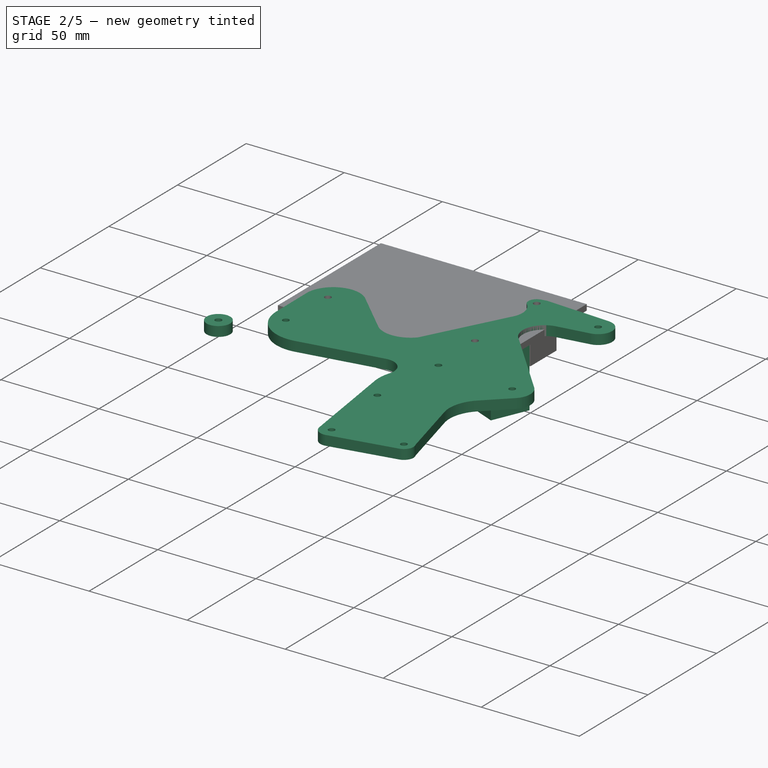
[diagram: stage 2 of 5 — iso view after this stage's code; geometry added in this stage tinted green]
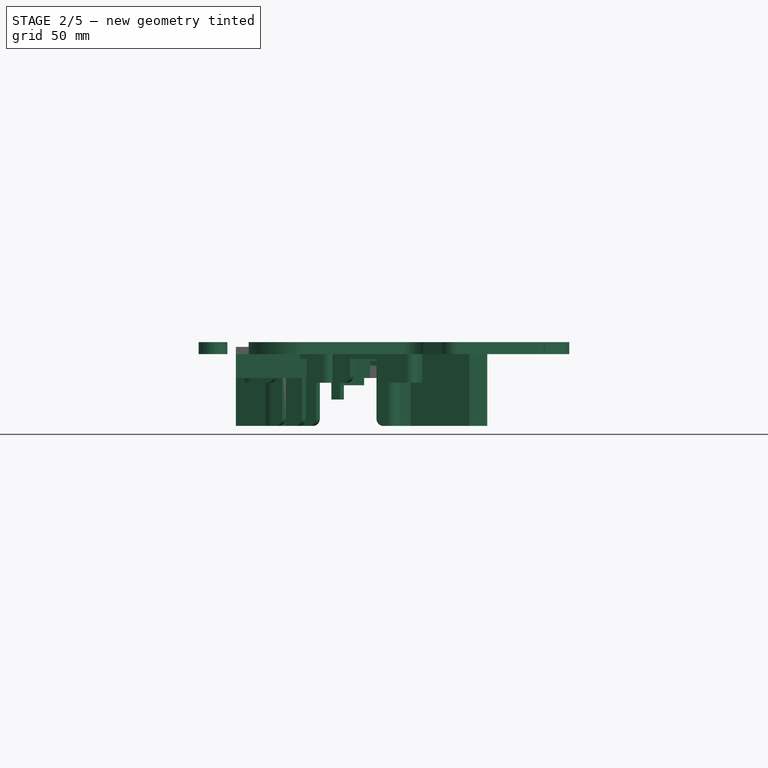
[diagram: stage 2 of 5 — front view after this stage's code; geometry added in this stage tinted green]
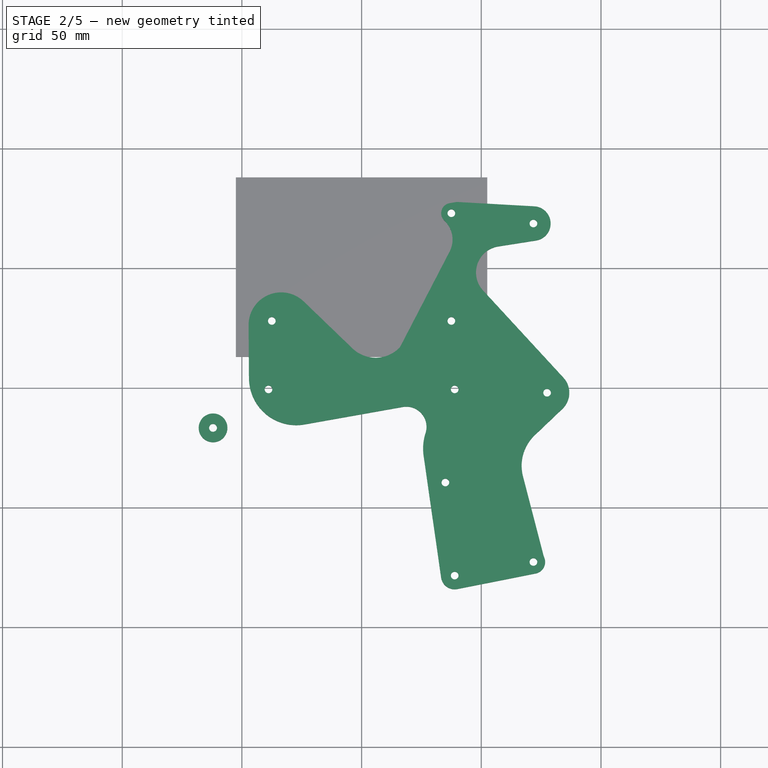
[diagram: stage 2 of 5 — top view after this stage's code; geometry added in this stage tinted green]
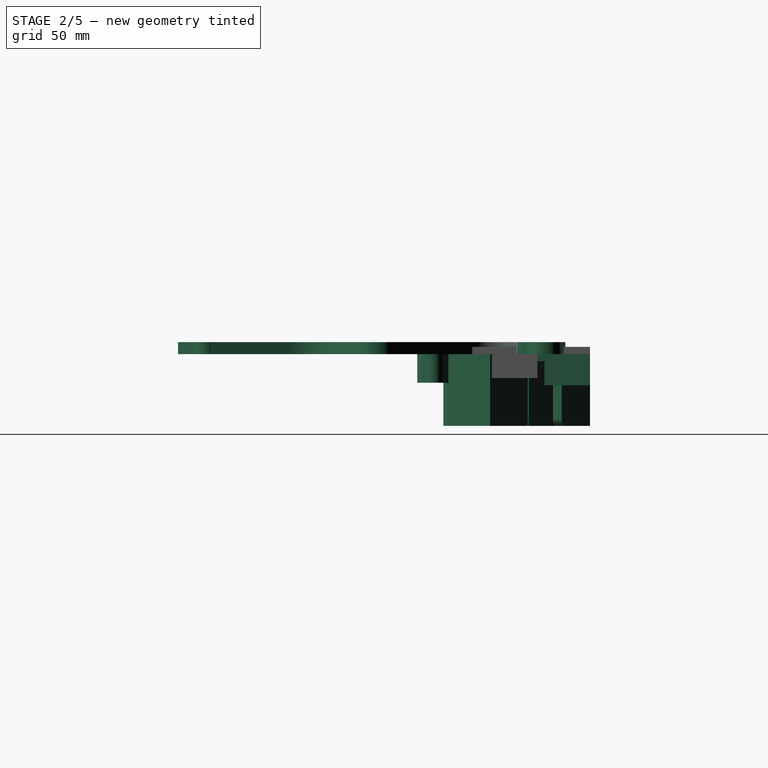
[diagram: stage 2 of 5 — right view after this stage's code; geometry added in this stage tinted green]
FEATURE [PartDesign::Body] Body011  label="Diskhalter"
  AllowCompound = false
  Group = -> [Sketch044,Pad027,Sketch045,Pad028,Pocket035,Sketch046,Pad029,Sketch047,Pad030,Sketch048,Pocket036,Pad031,Pad032,Sketch049,Pocket037,Pocket038,Sketch050,Pocket039,Pad033,Pocket040,Sketch051,Pad034,Sketch052,Pad035,Pocket041,Sketch053,Pocket042,Sketch054,Pocket043,Fillet002,Fillet003,Fillet004,Fillet005,Fillet006,Chamfer004,Sketch055,Pocket044,Sketch056,Pocket045,Pocket046,Pocket047,Fillet007,+1 more]
  Origin = -> Origin011
  Tip = -> Fillet008
FEATURE [Sketcher::SketchObject] Sketch057
  ArcFitTolerance = 1e-06
  AttachmentSupport = -> [XY_Plane012]
  FullyConstrained = true
  MakeInternals = false
  MapMode = 5
  sketch-geometry (8):
    g0: LineSegment StartX=-52.5 StartY=-37.5 StartZ=0 EndX=52.5 EndY=-37.5 EndZ=0
    g1: LineSegment StartX=52.5 StartY=-37.5 StartZ=0 EndX=52.5 EndY=37.5 EndZ=0
    g2: LineSegment StartX=52.5 StartY=37.5 StartZ=0 EndX=-52.5 EndY=37.5 EndZ=0
    g3: LineSegment StartX=-52.5 StartY=37.5 StartZ=0 EndX=-52.5 EndY=-37.5 EndZ=0
    g4: GeomPoint [constr] X=0 Y=0 Z=0
    g5: Circle CenterX=37.5 CenterY=22.5 CenterZ=0 NormalX=0 NormalY=0 NormalZ=1 AngleXU=0 Radius=1.6
    g6: Circle CenterX=37.5 CenterY=-22.5 CenterZ=0 NormalX=0 NormalY=0 NormalZ=1 AngleXU=0 Radius=1.6
    g7: Circle CenterX=-37.5 CenterY=-22.5 CenterZ=0 NormalX=0 NormalY=0 NormalZ=1 AngleXU=0 Radius=1.6
  constraints (21):
    c: Coincident(g0,g1)
    c: Coincident(g1,g2)
    c: Coincident(g2,g3)
    c: Coincident(g3,g0)
    c: Horizontal(g0)
    c: Horizontal(g2)
    c: Vertical(g1)
    c: Vertical(g3)
    c: Symmetric(g2,g0,g4)
    c: Distance(g1,g3) = 105
    c: Distance(g0,g2) = 75
    c: Coincident(g4,g-1)
    c: Diameter(g5) = 3.2
    c: Diameter(g6) = 3.2
    c: Diameter(g7) = 3.2
    c: Distance(g5,g1) = 15
    c: Distance(g5,g2) = 15
    c: Distance(g6,g1) = 15
    c: Distance(g7,g3) = 15
    c: Distance(g7,g0) = 15
    c: Distance(g6,g0) = 15
FEATURE [PartDesign::Pad] Pad036
  Direction = (0,0,1)
  Length = 3
  Length2 = 10
  Profile = -> Sketch057
  ReferenceAxis = -> Sketch057 [N_Axis]
  Refine = true
  Suppressed = false
  Type = 0
FEATURE [Sketcher::SketchObject] Sketch058
  ArcFitTolerance = 1e-06
  AttachmentSupport = -> [Pad036]
  ExternalGeometry = -> [Pad036]
  FullyConstrained = true
  MakeInternals = false
  MapMode = 5
  Placement = pos=(0,0,0) rot=(1,0,0;3.14159rad)
  sketch-geometry (11):
    g0: LineSegment StartX=-49.5128 StartY=-23.104 StartZ=0 EndX=45.1865 EndY=17.406 EndZ=0
    g1: LineSegment StartX=-45.1865 StartY=-33.2175 StartZ=0 EndX=49.5128 EndY=7.29244 EndZ=0
    g2: LineSegment StartX=-49.5128 StartY=-23.104 StartZ=0 EndX=-45.1865 EndY=-33.2175 EndZ=0
    g3: LineSegment StartX=45.1865 StartY=17.406 StartZ=0 EndX=49.5128 EndY=7.29244 EndZ=0
    g4: LineSegment [constr] StartX=-49.5128 StartY=-23.104 StartZ=0 EndX=49.5128 EndY=7.29244 EndZ=0
    g5: LineSegment [constr] StartX=-45.1865 StartY=-33.2175 StartZ=0 EndX=45.1865 EndY=17.406 EndZ=0
    g6: GeomPoint [constr] X=0 Y=-7.90576 Z=0
    g7: LineSegment StartX=-52.5 StartY=-20.0312 StartZ=0 EndX=45.0273 EndY=21.6885 EndZ=0
    g8: LineSegment StartX=45.0273 StartY=21.6885 StartZ=0 EndX=52.5 EndY=4.21968 EndZ=0
    g9: LineSegment StartX=52.5 StartY=4.21968 StartZ=0 EndX=-45.0273 EndY=-37.5 EndZ=0
    g10: LineSegment StartX=-45.0273 StartY=-37.5 StartZ=0 EndX=-52.5 EndY=-20.0312 EndZ=0
  constraints (30):
    c: Parallel(g0,g1)
    c: Equal(g0,g1)
    c: Distance(g1,g0) = 11
    c: Coincident(g2,g0)
    c: Coincident(g2,g1)
    c: Coincident(g3,g0)
    c: Coincident(g3,g1)
    c: Angle(g1,g2) = 1.5708
    c: Distance(g0,g0) = 103
    c: Coincident(g4,g0)
    c: Coincident(g4,g1)
    c: Coincident(g5,g1)
    c: Coincident(g5,g0)
    c: PointOnObject(g6,g4)
    c: PointOnObject(g6,g5)
    c: PointOnObject(g6,g-2)
    c: Coincident(g8,g7)
    c: Coincident(g9,g8)
    c: Coincident(g10,g9)
    c: Coincident(g10,g7)
    c: Parallel(g9,g7)
    c: Parallel(g10,g8)
    c: Angle(g-1,g0) = 0.404218
    c: Parallel(g7,g0)
    c: Parallel(g8,g3)
    c: Distance(g7,g0) = 4
    c: Distance(g8,g8) = 19
    c: PointOnObject(g7,g-3)
    c: PointOnObject(g8,g-4)
    c: PointOnObject(g9,g-5)
FEATURE [PartDesign::Pad] Pad037
  BaseFeature = -> Pad036
  Direction = (0,0,-1)
  Length = 5
  Length2 = 10
  Profile = -> Sketch058
  ReferenceAxis = -> Sketch058 [N_Axis]
  Refine = true
  Suppressed = false
  Type = 0
FEATURE [Sketcher::SketchObject] Sketch059
  ArcFitTolerance = 1e-06
  AttachmentSupport = -> [Pad037]
  ExternalGeometry = -> [Pad037]
  FullyConstrained = false
  MakeInternals = false
  MapMode = 5
  Placement = pos=(0,0,0) rot=(1,0,0;3.14159rad)
  sketch-geometry (12):
    g0: LineSegment StartX=-31.9029 StartY=-11.2203 StartZ=0 EndX=-36.2292 EndY=-1.1068 EndZ=0
    g1: LineSegment StartX=-36.2292 StartY=-1.1068 StartZ=0 EndX=12.4995 EndY=19.7381 EndZ=0
    g2: LineSegment StartX=-31.9029 StartY=-11.2203 StartZ=0 EndX=16.8258 EndY=9.6246 EndZ=0
    g3: LineSegment StartX=16.8258 StartY=9.6246 StartZ=0 EndX=12.4995 EndY=19.7381 EndZ=0
    g4: LineSegment StartX=20.4992 StartY=11.196 StartZ=0 EndX=16.1729 EndY=21.3095 EndZ=0
    g5: ArcOfCircle CenterX=12.4995 CenterY=19.7381 CenterZ=0 NormalX=0 NormalY=0 NormalZ=-1 AngleXU=-0.404218 Radius=3.99533 StartAngle=1.5708 EndAngle=3.14159
    g6: LineSegment StartX=-37.8006 StartY=2.56655 StartZ=0 EndX=10.9281 EndY=23.4115 EndZ=0
    g7: ArcOfCircle CenterX=-36.2292 CenterY=-1.1068 CenterZ=0 NormalX=0 NormalY=0 NormalZ=-1 AngleXU=-1.97501 Radius=3.99533 StartAngle=1.5708 EndAngle=3.14159
    g8: LineSegment StartX=-35.5763 StartY=-12.7917 StartZ=0 EndX=-39.9026 EndY=-2.67816 EndZ=0
    g9: ArcOfCircle CenterX=-31.9029 CenterY=-11.2203 CenterZ=0 NormalX=0 NormalY=0 NormalZ=-1 AngleXU=2.73737 Radius=3.99533 StartAngle=1.5708 EndAngle=3.14159
    g10: LineSegment StartX=-30.3316 StartY=-14.8937 StartZ=0 EndX=18.3972 EndY=5.95125 EndZ=0
    g11: ArcOfCircle CenterX=16.8258 CenterY=9.6246 CenterZ=0 NormalX=0 NormalY=0 NormalZ=-1 AngleXU=1.16658 Radius=3.99533 StartAngle=1.5708 EndAngle=3.14159
  constraints (19):
    c: PointOnObject(g0,g-3)
    c: Distance(g0) = 11
    c: Distance(g1) = 53
    c: Coincident(g1,g0)
    c: Distance(g2) = 53
    c: Coincident(g2,g0)
    c: PointOnObject(g2,g-3)
    c: Angle(g2,g0) = 1.5708
    c: Coincident(g3,g2)
    c: Coincident(g3,g1)
    c: Parallel(g2,g1)
    c: Tangent(g4,g5) = -1.5708
    c: Tangent(g4,g11) = -1.5708
    c: Tangent(g5,g6) = 1.5708
    c: Tangent(g6,g7) = 1.5708
    c: Tangent(g7,g8) = 1.5708
    c: Tangent(g8,g9) = 1.5708
    c: Tangent(g9,g10) = -1.5708
    c: Tangent(g10,g11) = -1.5708
FEATURE [PartDesign::Pad] Pad038
  BaseFeature = -> Pad037
  Direction = (0,0,-1)
  Length = 4
  Length2 = 10
  Profile = -> Sketch059
  ReferenceAxis = -> Sketch059 [N_Axis]
  Refine = true
  Suppressed = false
  Type = 0
FEATURE [Sketcher::SketchObject] Sketch060
  ArcFitTolerance = 1e-06
  AttachmentSupport = -> [Pad038]
  ExternalGeometry = -> [Pad038]
  FullyConstrained = false
  MakeInternals = false
  MapMode = 5
  Placement = pos=(0,0,0) rot=(1,0,0;3.14159rad)
  sketch-geometry (10):
    g0: LineSegment StartX=-7.92738 StartY=-37.5 StartZ=0 EndX=33.0726 EndY=-37.5 EndZ=0
    g1: LineSegment StartX=33.0726 StartY=-37.5 StartZ=0 EndX=33.0726 EndY=-18.5 EndZ=0
    g2: LineSegment StartX=33.0726 StartY=-18.5 StartZ=0 EndX=-7.92738 EndY=-18.5 EndZ=0
    g3: LineSegment StartX=-7.92738 StartY=-18.5 StartZ=0 EndX=-7.92738 EndY=-37.5 EndZ=0
    g4: GeomPoint [constr] X=12.5726 Y=-28 Z=0
    g5: LineSegment StartX=-3.92738 StartY=-33.5 StartZ=0 EndX=29.0726 EndY=-33.5 EndZ=0
    g6: LineSegment StartX=29.0726 StartY=-33.5 StartZ=0 EndX=29.0726 EndY=-22.5 EndZ=0
    g7: LineSegment StartX=29.0726 StartY=-22.5 StartZ=0 EndX=-3.92738 EndY=-22.5 EndZ=0
    g8: LineSegment StartX=-3.92738 StartY=-22.5 StartZ=0 EndX=-3.92738 EndY=-33.5 EndZ=0
    g9: GeomPoint [constr] X=12.5726 Y=-28 Z=0
  constraints (24):
    c: Coincident(g0,g1)
    c: Coincident(g1,g2)
    c: Coincident(g2,g3)
    c: Coincident(g3,g0)
    c: Horizontal(g0)
    c: Horizontal(g2)
    c: Vertical(g1)
    c: Vertical(g3)
    c: Symmetric(g2,g0,g4)
    c: Distance(g1,g3) = 41
    c: Distance(g0,g2) = 19
    c: DistanceY(g4,g-1) = 28
    c: Coincident(g5,g6)
    c: Coincident(g6,g7)
    c: Coincident(g7,g8)
    c: Coincident(g8,g5)
    c: Horizontal(g5)
    c: Horizontal(g7)
    c: Vertical(g6)
    c: Vertical(g8)
    c: Symmetric(g7,g5,g9)
    c: Distance(g6,g8) = 33
    c: Distance(g5,g7) = 11
    c: Coincident(g9,g4)
FEATURE [PartDesign::Pad] Pad039
  BaseFeature = -> Pad038
  Direction = (0,0,-1)
  Length = 10
  Length2 = 10
  Profile = -> Sketch060
  ReferenceAxis = -> Sketch060 [N_Axis]
  Refine = true
  Suppressed = false
  Type = 0
FEATURE [Sketcher::SketchObject] Sketch061
  ArcFitTolerance = 1e-06
  AttachmentSupport = -> [Pad039]
  ExternalGeometry = -> [Pad039]
  FullyConstrained = false
  MakeInternals = false
  MapMode = 5
  Placement = pos=(0,0,0) rot=(1,0,0;3.14159rad)
  sketch-geometry (12):
    g0: LineSegment StartX=-42.971 StartY=0.354781 StartZ=0 EndX=-12.6305 EndY=13.3337 EndZ=0
    g1: LineSegment StartX=-42.971 StartY=0.354781 StartZ=0 EndX=-44.9375 EndY=4.95183 EndZ=0
    g2: LineSegment StartX=-44.9375 StartY=4.95183 StartZ=0 EndX=-14.597 EndY=17.9307 EndZ=0
    g3: LineSegment StartX=-14.597 StartY=17.9307 StartZ=0 EndX=-12.6305 EndY=13.3337 EndZ=0
    g4: LineSegment StartX=-10.936 StartY=19.5428 StartZ=0 EndX=-8.9362 EndY=14.868 EndZ=0
    g5: ArcOfCircle CenterX=-12.5749 CenterY=13.3114 CenterZ=0 NormalX=0 NormalY=0 NormalZ=1 AngleXU=-2.73737 Radius=3.95769 StartAngle=1.5708 EndAngle=3.14159
    g6: LineSegment StartX=-41.4367 StartY=-3.3395 StartZ=0 EndX=-11.0184 EndY=9.67269 EndZ=0
    g7: ArcOfCircle CenterX=-42.9933 CenterY=0.299239 CenterZ=0 NormalX=0 NormalY=0 NormalZ=1 AngleXU=1.97501 Radius=3.95769 StartAngle=1.5708 EndAngle=3.14159
    g8: LineSegment StartX=-46.632 StartY=-1.25732 StartZ=0 EndX=-48.6318 EndY=3.41753 EndZ=0
    g9: ArcOfCircle CenterX=-44.9931 CenterY=4.97409 CenterZ=0 NormalX=0 NormalY=0 NormalZ=1 AngleXU=0.404218 Radius=3.95769 StartAngle=1.5708 EndAngle=3.14159
    g10: LineSegment StartX=-46.5496 StartY=8.61283 StartZ=0 EndX=-16.1313 EndY=21.625 EndZ=0
    g11: ArcOfCircle CenterX=-14.5747 CenterY=17.9863 CenterZ=0 NormalX=0 NormalY=0 NormalZ=1 AngleXU=-1.16658 Radius=3.95769 StartAngle=1.5708 EndAngle=3.14159
  constraints (30):
    c: PointOnObject(g0,g-3)
    c: PointOnObject(g0,g-3)
    c: Coincident(g1,g0)
    c: Coincident(g2,g1)
    c: Coincident(g3,g2)
    c: Coincident(g3,g0)
    c: Angle(g0,g1) = 1.5708
    c: Parallel(g0,g2)
    c: Parallel(g1,g3)
    c: Distance(g2,g2) = 33
    c: Distance(g1,g1) = 5
    c: Tangent(g4,g5) = 1.5708
    c: Tangent(g4,g11) = 1.5708
    c: Tangent(g5,g6) = -1.5708
    c: Tangent(g6,g7) = -1.5708
    c: Tangent(g7,g8) = 1.5708
    c: Tangent(g8,g9) = 1.5708
    c: Tangent(g9,g10) = 1.5708
    c: Tangent(g10,g11) = 1.5708
    c: Parallel(g2,g10)
    c: Parallel(g0,g6)
    c: Parallel(g8,g1)
    c: Parallel(g3,g4)
    c: Distance(g1,g8) = 4
    c: Distance(g6,g0) = 4
    c: Distance(g10,g2) = 4
    c: Distance(g4,g3) = 4
    c: Equal(g9,g7)
    c: Equal(g7,g11)
    c: Equal(g9,g5)
FEATURE [PartDesign::Pad] Pad040
  BaseFeature = -> Pad039
  Direction = (0,0,-1)
  Length = 2
  Length2 = 10
  Profile = -> Sketch061
  ReferenceAxis = -> Sketch061 [N_Axis]
  Refine = true
  Suppressed = false
  Type = 0
FEATURE [Sketcher::SketchObject] Sketch062
  ArcFitTolerance = 1e-06
  AttachmentSupport = -> [Pad040]
  ExternalGeometry = -> [Pad040]
  FullyConstrained = false
  MakeInternals = false
  MapMode = 5
  Placement = pos=(0,0,0) rot=(1,0,0;3.14159rad)
  sketch-geometry (12):
    g0: LineSegment StartX=-8.95284 StartY=14.9069 StartZ=0 EndX=21.3877 EndY=27.8858 EndZ=0
    g1: LineSegment StartX=21.3877 StartY=27.8858 StartZ=0 EndX=20.2078 EndY=30.644 EndZ=0
    g2: LineSegment StartX=20.2078 StartY=30.644 StartZ=0 EndX=-10.1327 EndY=17.6651 EndZ=0
    g3: LineSegment StartX=-10.1327 StartY=17.6651 StartZ=0 EndX=-8.95284 EndY=14.9069 EndZ=0
    g4: LineSegment StartX=-13.8104 StartY=16.0919 StartZ=0 EndX=-12.6305 EndY=13.3337 EndZ=0
    g5: ArcOfCircle CenterX=-8.95284 CenterY=14.9069 CenterZ=0 NormalX=0 NormalY=0 NormalZ=-1 AngleXU=2.73737 Radius=4 StartAngle=1.5708 EndAngle=3.14159
    g6: LineSegment StartX=-7.37964 StartY=11.2292 StartZ=0 EndX=22.9609 EndY=24.2081 EndZ=0
    g7: ArcOfCircle CenterX=21.3877 CenterY=27.8858 CenterZ=0 NormalX=0 NormalY=0 NormalZ=-1 AngleXU=1.16658 Radius=4 StartAngle=1.5708 EndAngle=3.14159
    g8: LineSegment StartX=25.0653 StartY=29.459 StartZ=0 EndX=23.8854 EndY=32.2172 EndZ=0
    g9: ArcOfCircle CenterX=20.2078 CenterY=30.644 CenterZ=0 NormalX=0 NormalY=0 NormalZ=-1 AngleXU=-0.404218 Radius=4 StartAngle=1.5708 EndAngle=3.14159
    g10: LineSegment StartX=18.6346 StartY=34.3217 StartZ=0 EndX=-11.7059 EndY=21.3428 EndZ=0
    g11: ArcOfCircle CenterX=-10.1327 CenterY=17.6651 CenterZ=0 NormalX=0 NormalY=0 NormalZ=-1 AngleXU=-1.97501 Radius=4 StartAngle=1.5708 EndAngle=3.14159
  constraints (17):
    c: Coincident(g-3,g0)
    c: PointOnObject(g0,g-3)
    c: Perpendicular(g0,g1) = 1.5708
    c: Perpendicular(g1,g2) = 1.5708
    c: PointOnObject(g2,g-4)
    c: Coincident(g3,g2)
    c: Coincident(g3,g0)
    c: Distance(g0,g0) = 33
    c: Distance(g1,g1) = 3
    c: Tangent(g4,g5) = -1.5708
    c: Tangent(g4,g11) = -1.5708
    c: Tangent(g5,g6) = -1.5708
    c: Tangent(g6,g7) = -1.5708
    c: Tangent(g7,g8) = -1.5708
    c: Tangent(g8,g9) = -1.5708
    c: Tangent(g9,g10) = -1.5708
    c: Tangent(g10,g11) = -1.5708
FEATURE [PartDesign::Pad] Pad041
  BaseFeature = -> Pad040
  Direction = (0,0,-1)
  Length = 1
  Length2 = 10
  Profile = -> Sketch062
  ReferenceAxis = -> Sketch062 [N_Axis]
  Refine = true
  Suppressed = false
  Type = 0
FEATURE [PartDesign::Pad] Pad042
  BaseFeature = -> Pad041
  Direction = (0,0,-1)
  Length = 3
  Length2 = 10
  Profile = -> Pad041 [Face29]
  Refine = true
  Suppressed = false
  Type = 0
FEATURE [Sketcher::SketchObject] Sketch063
  ArcFitTolerance = 1e-06
  AttachmentSupport = -> [Pad042]
  ExternalGeometry = -> [Pad042]
  FullyConstrained = false
  MakeInternals = false
  MapMode = 5
  Placement = pos=(0,0,-13) rot=(1,0,0;3.14159rad)
  sketch-geometry (8):
    g0: LineSegment [constr] StartX=-7.92738 StartY=-18.5 StartZ=0 EndX=33.0726 EndY=-37.5 EndZ=0
    g1: LineSegment [constr] StartX=-7.92738 StartY=-37.5 StartZ=0 EndX=33.0726 EndY=-18.5 EndZ=0
    g2: GeomPoint [constr] X=12.5726 Y=-28 Z=0
    g3: LineSegment StartX=1.07262 StartY=-18.2597 StartZ=0 EndX=1.07262 EndY=-37.7403 EndZ=0
    g4: LineSegment StartX=1.07262 StartY=-37.7403 StartZ=0 EndX=24.0726 EndY=-37.7403 EndZ=0
    g5: LineSegment StartX=24.0726 StartY=-37.7403 StartZ=0 EndX=24.0726 EndY=-18.2597 EndZ=0
    g6: LineSegment StartX=24.0726 StartY=-18.2597 StartZ=0 EndX=1.07262 EndY=-18.2597 EndZ=0
    g7: GeomPoint [constr] X=12.5726 Y=-28 Z=0
  constraints (17):
    c: Coincident(g0,g-3)
    c: Coincident(g0,g-4)
    c: Coincident(g1,g-3)
    c: Coincident(g1,g-4)
    c: PointOnObject(g2,g0)
    c: PointOnObject(g2,g1)
    c: Coincident(g3,g4)
    c: Coincident(g4,g5)
    c: Coincident(g5,g6)
    c: Coincident(g6,g3)
    c: Vertical(g3)
    c: Vertical(g5)
    c: Horizontal(g4)
    c: Horizontal(g6)
    c: Symmetric(g5,g3,g7)
    c: Distance(g3,g5) = 23
    c: Coincident(g7,g2)
FEATURE [PartDesign::Pocket] Pocket048
  BaseFeature = -> Pad042
  Direction = (0,0,1)
  Length = 12
  Length2 = 5
  Profile = -> Sketch063
  ReferenceAxis = -> Sketch063 [N_Axis]
  Refine = true
  Suppressed = false
  Type = 0
FEATURE [PartDesign::Pad] Pad043
  BaseFeature = -> Pocket048
  Direction = (0,0,-1)
  Length = 10
  Length2 = 10
  Profile = -> Pocket048 [Face58]
  Refine = true
  Suppressed = false
  Type = 3
  UpToFace = -> Pocket048 [Face69]
FEATURE [PartDesign::Pad] Pad044
  BaseFeature = -> Pad043
  Direction = (0,0,-1)
  Length = 10
  Length2 = 10
  Profile = -> Pad043 [Face64]
  Refine = true
  Suppressed = false
  Type = 0
FEATURE [Sketcher::SketchObject] Sketch064
  ArcFitTolerance = 1e-06
  AttachmentSupport = -> [Pad044]
  ExternalGeometry = -> [Pad044]
  FullyConstrained = false
  MakeInternals = false
  MapMode = 5
  Placement = pos=(0,0,-12) rot=(1,0,0;3.14159rad)
  sketch-geometry (8):
    g0: LineSegment StartX=-36.7433 StartY=12.8077 StartZ=0 EndX=-22.9521 EndY=18.7072 EndZ=0
    g1: LineSegment StartX=-22.9521 StartY=18.7072 StartZ=0 EndX=-16.1016 EndY=2.69286 EndZ=0
    g2: LineSegment StartX=-16.1016 StartY=2.69286 StartZ=0 EndX=-29.8927 EndY=-3.20664 EndZ=0
    g3: LineSegment StartX=-29.8927 StartY=-3.20664 StartZ=0 EndX=-36.7433 EndY=12.8077 EndZ=0
    g4: LineSegment StartX=-7.5686 StartY=23.1126 StartZ=0 EndX=3.46432 EndY=27.8322 EndZ=0
    g5: LineSegment StartX=3.46432 StartY=27.8322 StartZ=0 EndX=9.0968 EndY=14.6653 EndZ=0
    g6: LineSegment StartX=9.0968 StartY=14.6653 StartZ=0 EndX=-1.93612 EndY=9.94566 EndZ=0
    g7: LineSegment StartX=-1.93612 StartY=9.94566 StartZ=0 EndX=-7.5686 EndY=23.1126 EndZ=0
  constraints (21):
    c: PointOnObject(g0,g-4)
    c: PointOnObject(g0,g-4)
    c: Coincident(g1,g0)
    c: Coincident(g2,g1)
    c: Coincident(g3,g2)
    c: Coincident(g3,g0)
    c: Parallel(g0,g2)
    c: Parallel(g3,g1)
    c: Angle(g3,g0) = 1.5708
    c: Distance(g0,g0) = 15
    c: Distance(g3,g-5) = 5
    c: PointOnObject(g4,g-3)
    c: Symmetric(g-3,g-3,g4)
    c: Coincident(g5,g4)
    c: Coincident(g6,g5)
    c: Coincident(g7,g6)
    c: Coincident(g7,g4)
    c: Angle(g4,g5) = 1.5708
    c: Parallel(g7,g5)
    c: Parallel(g4,g6)
    c: Distance(g4,g4) = 12
FEATURE [PartDesign::Pocket] Pocket049
  BaseFeature = -> Pad044
  Direction = (0,0,1)
  Length = 10
  Length2 = 5
  Profile = -> Sketch064
  ReferenceAxis = -> Sketch064 [N_Axis]
  Refine = true
  Suppressed = false
  Type = 0
FEATURE [PartDesign::Pocket] Pocket050
  BaseFeature = -> Pocket049
  Direction = (0.91941,-0.3933,0)
  Length = 10
  Length2 = 5
  Profile = -> Pocket049 [Face40]
  Refine = true
  Suppressed = false
  Type = 0
FEATURE [PartDesign::Pad] Pad045
  BaseFeature = -> Pocket050
  Direction = (0.91941,-0.3933,0)
  Length = 3
  Length2 = 10
  Profile = -> Pocket050 [Face23]
  Refine = true
  Suppressed = false
  Type = 0
FEATURE [Sketcher::SketchObject] Sketch065
  ArcFitTolerance = 1e-06
  AttachmentSupport = -> [Pad045]
  ExternalGeometry = -> [Pad045]
  FullyConstrained = false
  MakeInternals = false
  MapMode = 5
  Placement = pos=(0,0,-5) rot=(1,0,0;3.14159rad)
  sketch-geometry (16):
    g0: LineSegment StartX=-52.5 StartY=-20.0312 StartZ=0 EndX=-45.0273 EndY=-37.5 EndZ=0
    g1: LineSegment StartX=-45.0273 StartY=-37.5 StartZ=0 EndX=-17.445 EndY=-25.701 EndZ=0
    g2: LineSegment StartX=-17.445 StartY=-25.701 StartZ=0 EndX=-19.0182 EndY=-22.0234 EndZ=0
    g3: LineSegment StartX=-19.0182 StartY=-22.0234 StartZ=0 EndX=-45.1865 EndY=-33.2175 EndZ=0
    g4: LineSegment StartX=-45.1865 StartY=-33.2175 StartZ=0 EndX=-49.5128 EndY=-23.104 EndZ=0
    g5: LineSegment StartX=-49.5128 StartY=-23.104 StartZ=0 EndX=-23.3445 EndY=-11.9098 EndZ=0
    g6: LineSegment StartX=-23.3445 StartY=-11.9098 StartZ=0 EndX=-24.9177 EndY=-8.2322 EndZ=0
    g7: LineSegment StartX=-24.9177 StartY=-8.2322 StartZ=0 EndX=-52.5 EndY=-20.0312 EndZ=0
    g8: LineSegment StartX=45.0273 StartY=21.6885 StartZ=0 EndX=52.5 EndY=4.21968 EndZ=0
    g9: LineSegment StartX=15.7236 StartY=-11.5123 StartZ=0 EndX=14.1504 EndY=-7.83468 EndZ=0
    g10: LineSegment StartX=49.5128 StartY=7.29244 StartZ=0 EndX=45.1865 EndY=17.406 EndZ=0
    g11: LineSegment StartX=45.1865 StartY=17.406 StartZ=0 EndX=9.82409 EndY=2.27883 EndZ=0
    g12: LineSegment StartX=9.82409 StartY=2.27883 StartZ=0 EndX=8.25089 EndY=5.95647 EndZ=0
    g13: LineSegment StartX=8.25089 StartY=5.95647 StartZ=0 EndX=45.0273 EndY=21.6885 EndZ=0
    g14: LineSegment StartX=14.1504 StartY=-7.83468 StartZ=0 EndX=49.5128 EndY=7.29244 EndZ=0
    g15: LineSegment StartX=52.5 StartY=4.21968 StartZ=0 EndX=15.7236 EndY=-11.5123 EndZ=0
  constraints (40):
    c: Coincident(g0,g-3)
    c: Coincident(g0,g-8)
    c: Coincident(g1,g0)
    c: PointOnObject(g1,g-8)
    c: Coincident(g2,g1)
    c: PointOnObject(g2,g-6)
    c: Coincident(g3,g2)
    c: Coincident(g3,g-6)
    c: Coincident(g4,g3)
    c: Coincident(g4,g-4)
    c: Coincident(g5,g4)
    c: PointOnObject(g5,g-4)
    c: Coincident(g6,g5)
    c: PointOnObject(g6,g-3)
    c: Coincident(g7,g6)
    c: Coincident(g7,g0)
    c: Parallel(g0,g6)
    c: Parallel(g0,g2)
    c: Distance(g7,g7) = 30
    c: Distance(g1,g1) = 30
    c: Coincident(g8,g-7)
    c: Coincident(g8,g-7)
    c: PointOnObject(g9,g-6)
    c: Coincident(g10,g-4)
    c: Coincident(g11,g10)
    c: PointOnObject(g11,g-4)
    c: Coincident(g12,g11)
    c: PointOnObject(g12,g-3)
    c: Coincident(g13,g12)
    c: Coincident(g13,g8)
    c: Parallel(g12,g8)
    c: Coincident(g14,g9)
    c: Coincident(g14,g10)
    c: Distance(g13,g13) = 40
    c: Parallel(g9,g8)
    c: PointOnObject(g9,g-5)
    c: Coincident(g15,g8)
    c: Coincident(g15,g9)
    c: Distance(g15,g15) = 40
    c: Parallel(g10,g8)
FEATURE [PartDesign::Pad] Pad046
  BaseFeature = -> Pad045
  Direction = (0,0,-1)
  Length = 25
  Length2 = 10
  Profile = -> Sketch065
  ReferenceAxis = -> Sketch065 [N_Axis]
  Refine = true
  Suppressed = false
  Type = 0
FEATURE [PartDesign::Pad] Pad047
  BaseFeature = -> Pad046
  Direction = (0,0,-1)
  Length = 10
  Length2 = 10
  Profile = -> Pad046 [Face21,Face52]
  Refine = true
  Suppressed = false
  Type = 3
  UpToFace = -> Pad046 [Face77]
FEATURE [Sketcher::SketchObject] Sketch066
  ArcFitTolerance = 1e-06
  AttachmentSupport = -> [Pad047]
  ExternalGeometry = -> [Pad047]
  FullyConstrained = true
  MakeInternals = false
  MapMode = 5
  Placement = pos=(0,0,-4) rot=(1,0,0;3.14159rad)
  sketch-geometry (4):
    g0: LineSegment StartX=-12.6305 StartY=13.3337 StartZ=0 EndX=-8.95284 EndY=14.9069 EndZ=0
    g1: LineSegment StartX=-8.95284 StartY=14.9069 StartZ=0 EndX=-7.38148 EndY=11.2335 EndZ=0
    g2: LineSegment StartX=-12.6305 StartY=13.3337 StartZ=0 EndX=-11.0591 EndY=9.66033 EndZ=0
    g3: LineSegment StartX=-11.0591 StartY=9.66033 StartZ=0 EndX=-7.38148 EndY=11.2335 EndZ=0
  constraints (10):
    c: Coincident(g0,g-3)
    c: Coincident(g0,g-5)
    c: Coincident(g1,g0)
    c: PointOnObject(g1,g-4)
    c: Parallel(g1,g-6)
    c: Coincident(g2,g0)
    c: PointOnObject(g2,g-4)
    c: Parallel(g2,g1)
    c: Coincident(g3,g1)
    c: Coincident(g3,g2)
FEATURE [PartDesign::Pad] Pad048
  BaseFeature = -> Pad047
  Direction = (0,0,-1)
  Length = 10
  Length2 = 10
  Profile = -> Sketch066
  ReferenceAxis = -> Sketch066 [N_Axis]
  Refine = true
  Suppressed = false
  Type = 0
FEATURE [PartDesign::Pad] Pad049
  BaseFeature = -> Pad048
  Direction = (0,0,-1)
  Length = 8
  Length2 = 10
  Profile = -> Pad048 [Face9]
  Refine = true
  Suppressed = false
  Type = 0
FEATURE [PartDesign::Pad] Pad050
  BaseFeature = -> Pad049
  Direction = (0,0,-1)
  Length = 8
  Length2 = 10
  Profile = -> Pad049 [Face5]
  Refine = true
  Suppressed = false
  Type = 0
FEATURE [PartDesign::Fillet] Fillet009
  Base = -> Pad050 [Edge88,Edge45]
  BaseFeature = -> Pad050
  Radius = 4
  Refine = true
  SupportTransform = false
  Suppressed = false
  UseAllEdges = false
FEATURE [PartDesign::Pad] Pad051
  BaseFeature = -> Fillet009
  Direction = (0,0,-1)
  Length = 5
  Length2 = 10
  Profile = -> Fillet009 [Face16]
  Refine = true
  Suppressed = false
  Type = 0
FEATURE [PartDesign::Fillet] Fillet010
  Base = -> Pad051 [Edge233,Edge116,Edge105,Edge122]
  BaseFeature = -> Pad051
  Radius = 3
  Refine = true
  SupportTransform = false
  Suppressed = false
  UseAllEdges = false
FEATURE [PartDesign::Fillet] Fillet011
  Base = -> Fillet010 [Edge235,Edge99]
  BaseFeature = -> Fillet010
  Radius = 3
  Refine = true
  SupportTransform = false
  Suppressed = false
  UseAllEdges = false
FEATURE [PartDesign::Fillet] Fillet012
  Base = -> Fillet011 [Edge159,Edge28]
  BaseFeature = -> Fillet011
  Radius = 3
  Refine = true
  SupportTransform = false
  Suppressed = false
  UseAllEdges = false
FEATURE [PartDesign::Fillet] Fillet013
  Base = -> Fillet012 [Edge83,Edge10]
  BaseFeature = -> Fillet012
  Radius = 3
  Refine = true
  SupportTransform = false
  Suppressed = false
  UseAllEdges = false
FEATURE [PartDesign::Body] Body012  label="Körper001"
  AllowCompound = false
  Group = -> [Sketch057,Pad036,Sketch058,Pad037,Sketch059,Pad038,Sketch060,Pad039,Sketch061,Pad040,Sketch062,Pad041,Pad042,Sketch063,Pocket048,Pad043,Pad044,Sketch064,Pocket049,Pocket050,Pad045,Sketch065,Pad046,Pad047,Sketch066,Pad048,Pad049,Pad050,Fillet009,Pad051,Fillet010,Fillet011,Fillet012,Fillet013,Fillet014,Fillet015,Fillet016,Fillet017,Fillet018,Fillet019,Fillet020]
  Origin = -> Origin012
  Tip = -> Fillet020
FEATURE [Sketcher::SketchObject] Sketch067
  ArcFitTolerance = 1e-06
  AttachmentSupport = -> [XY_Plane013]
  FullyConstrained = false
  MakeInternals = false
  MapMode = 5
  sketch-geometry (39):
    g0: LineSegment [constr] StartX=-52.5 StartY=-37.5 StartZ=0 EndX=52.5 EndY=-37.5 EndZ=0
    g1: LineSegment [constr] StartX=52.5 StartY=-37.5 StartZ=0 EndX=52.5 EndY=37.5 EndZ=0
    g2: LineSegment [constr] StartX=52.5 StartY=37.5 StartZ=0 EndX=-52.5 EndY=37.5 EndZ=0
    g3: LineSegment [constr] StartX=-52.5 StartY=37.5 StartZ=0 EndX=-52.5 EndY=-37.5 EndZ=0
    g4: GeomPoint [constr] X=0 Y=0 Z=0
    g5: LineSegment [constr] StartX=-52.5 StartY=-37.5 StartZ=0 EndX=-52.5 EndY=-142.5 EndZ=0
    g6: LineSegment [constr] StartX=-52.5 StartY=-142.5 StartZ=0 EndX=52.5 EndY=-142.5 EndZ=0
    g7: LineSegment [constr] StartX=52.5 StartY=-142.5 StartZ=0 EndX=52.5 EndY=-37.5 EndZ=0
    g8: LineSegment [constr] StartX=52.5 StartY=-37.5 StartZ=0 EndX=-52.5 EndY=-37.5 EndZ=0
    g9: LineSegment [constr] StartX=52.5 StartY=37.5 StartZ=0 EndX=52.5 EndY=-142.5 EndZ=0
    g10: LineSegment [constr] StartX=52.5 StartY=-142.5 StartZ=0 EndX=232.5 EndY=-142.5 EndZ=0
    g11: LineSegment [constr] StartX=232.5 StartY=-142.5 StartZ=0 EndX=232.5 EndY=37.5 EndZ=0
    g12: LineSegment [constr] StartX=232.5 StartY=37.5 StartZ=0 EndX=52.5 EndY=37.5 EndZ=0
    g13: LineSegment [constr] StartX=-52.5 StartY=-142.5 StartZ=0 EndX=52.5 EndY=-37.5 EndZ=0
    g14: LineSegment [constr] StartX=52.5 StartY=-142.5 StartZ=0 EndX=-52.5 EndY=-37.5 EndZ=0
    g15: LineSegment [constr] StartX=52.5 StartY=-142.5 StartZ=0 EndX=232.5 EndY=37.5 EndZ=0
    g16: LineSegment [constr] StartX=52.5 StartY=37.5 StartZ=0 EndX=232.5 EndY=-142.5 EndZ=0
    g17: GeomPoint [constr] X=-1.6e-15 Y=-90 Z=0
    g18: GeomPoint [constr] X=142.5 Y=-52.5 Z=0
    g19: Circle [constr] CenterX=-1.6e-15 CenterY=-90 CenterZ=0 NormalX=0 NormalY=0 NormalZ=1 AngleXU=0 Radius=55
    g20: Circle [constr] CenterX=142.5 CenterY=-52.5 CenterZ=0 NormalX=0 NormalY=0 NormalZ=1 AngleXU=0 Radius=100
    g21: Circle [constr] CenterX=142.5 CenterY=-52.5 CenterZ=0 NormalX=0 NormalY=0 NormalZ=1 AngleXU=0 Radius=65
    g22: LineSegment StartX=-52.5 StartY=37.5 StartZ=0 EndX=-52.5 EndY=-142.5 EndZ=0
    g23: LineSegment StartX=-52.5 StartY=-142.5 StartZ=0 EndX=232.5 EndY=-142.5 EndZ=0
    g24: LineSegment StartX=232.5 StartY=-142.5 StartZ=0 EndX=232.5 EndY=37.5 EndZ=0
    g25: LineSegment StartX=232.5 StartY=37.5 StartZ=0 EndX=-52.5 EndY=37.5 EndZ=0
    g26: Circle CenterX=-38.8909 CenterY=-51.1091 CenterZ=0 NormalX=0 NormalY=0 NormalZ=1 AngleXU=0 Radius=1.6
    g27: Circle CenterX=38.8909 CenterY=-51.1091 CenterZ=0 NormalX=0 NormalY=0 NormalZ=1 AngleXU=0 Radius=1.6
    g28: Circle CenterX=71.7893 CenterY=-123.211 CenterZ=0 NormalX=0 NormalY=0 NormalZ=1 AngleXU=0 Radius=1.6
    g29: Circle CenterX=38.8909 CenterY=-128.891 CenterZ=0 NormalX=0 NormalY=0 NormalZ=1 AngleXU=0 Radius=1.6
    g30: LineSegment [constr] StartX=-1.6e-15 StartY=-90 StartZ=0 EndX=151.358 EndY=-90 EndZ=0
    g31: Circle [constr] CenterX=-1.6e-15 CenterY=-90 CenterZ=0 NormalX=0 NormalY=0 NormalZ=1 AngleXU=0 Radius=35
    g32: Circle CenterX=35 CenterY=-90 CenterZ=0 NormalX=0 NormalY=0 NormalZ=1 AngleXU=0 Radius=1.6
    g33: Circle CenterX=-37.5 CenterY=-22.5 CenterZ=0 NormalX=0 NormalY=0 NormalZ=1 AngleXU=0 Radius=1.6
    g34: Circle CenterX=37.5 CenterY=22.5 CenterZ=0 NormalX=0 NormalY=0 NormalZ=1 AngleXU=0 Radius=1.6
    g35: Circle CenterX=37.5 CenterY=-22.5 CenterZ=0 NormalX=0 NormalY=0 NormalZ=1 AngleXU=0 Radius=1.6
    g36: Circle CenterX=71.7893 CenterY=18.2107 CenterZ=0 NormalX=0 NormalY=0 NormalZ=1 AngleXU=0 Radius=1.6
    g37: Circle CenterX=77.5 CenterY=-52.5 CenterZ=0 NormalX=0 NormalY=0 NormalZ=1 AngleXU=0 Radius=1.6
    g38: LineSegment [constr] StartX=142.5 StartY=-52.5 StartZ=0 EndX=17.6256 EndY=-52.5 EndZ=0
  constraints (98):
    c: Coincident(g0,g1)
    c: Coincident(g1,g2)
    c: Coincident(g2,g3)
    c: Coincident(g3,g0)
    c: Horizontal(g0)
    c: Horizontal(g2)
    c: Vertical(g1)
    c: Vertical(g3)
    c: Symmetric(g2,g0,g4)
    c: Distance(g1,g3) = 105
    c: Distance(g0,g2) = 75
    c: Coincident(g4,g-1)
    c: Coincident(g5,g6)
    c: Coincident(g6,g7)
    c: Coincident(g7,g8)
    c: Coincident(g8,g5)
    c: Vertical(g5)
    c: Vertical(g7)
    c: Horizontal(g6)
    c: Horizontal(g8)
    c: Distance(g5,g7) = 105
    c: Distance(g6,g8) = 105
    c: Coincident(g5,g0)
    c: Coincident(g9,g10)
    c: Coincident(g10,g11)
    c: Coincident(g11,g12)
    c: Coincident(g12,g9)
    c: Vertical(g9)
    c: Vertical(g11)
    c: Horizontal(g10)
    c: Horizontal(g12)
    c: Distance(g9,g11) = 180
    c: Distance(g10,g12) = 180
    c: Coincident(g9,g1)
    c: Coincident(g13,g5)
    c: Coincident(g13,g0)
    c: Coincident(g14,g6)
    c: Coincident(g14,g0)
    c: Coincident(g15,g6)
    c: Coincident(g15,g11)
    c: Coincident(g16,g1)
    c: Coincident(g16,g10)
    c: PointOnObject(g17,g13)
    c: PointOnObject(g18,g16)
    c: PointOnObject(g18,g15)
    c: PointOnObject(g17,g14)
    c: Diameter(g19) = 110
    c: Coincident(g19,g17)
    c: Diameter(g20) = 200
    c: Coincident(g20,g18)
    c: Diameter(g21) = 130
    c: Coincident(g21,g18)
    c: Coincident(g22,g23)
    c: Coincident(g23,g24)
    c: Coincident(g24,g25)
    c: Coincident(g25,g22)
    c: Vertical(g22)
    c: Vertical(g24)
    c: Horizontal(g23)
    c: Horizontal(g25)
    c: Coincident(g22,g2)
    c: Coincident(g23,g10)
    c: Diameter(g26) = 3.2
    c: PointOnObject(g26,g19)
    c: Diameter(g27) = 3.2
    c: PointOnObject(g27,g19)
    c: Diameter(g28) = 3.2
    c: PointOnObject(g28,g20)
    c: Diameter(g29) = 3.2
    c: PointOnObject(g29,g19)
    c: Horizontal(g30)
    c: Coincident(g30,g17)
    c: Diameter(g31) = 70
    c: Coincident(g31,g17)
    c: Diameter(g32) = 3.2
    c: PointOnObject(g32,g31)
    c: Diameter(g33) = 3.2
    c: Diameter(g34) = 3.2
    c: Diameter(g35) = 3.2
    c: Diameter(g36) = 3.2
    c: PointOnObject(g36,g20)
    c: Diameter(g37) = 3.2
    c: PointOnObject(g37,g21)
    c: Horizontal(g38)
    c: Coincident(g38,g18)
    c: PointOnObject(g37,g38)
    c: PointOnObject(g36,g16)
    c: PointOnObject(g27,g13)
    c: PointOnObject(g32,g30)
    c: PointOnObject(g26,g14)
    c: PointOnObject(g29,g14)
    c: PointOnObject(g28,g15)
    c: Distance(g34,g22) = 90
    c: Distance(g35,g22) = 90
    c: Distance(g33,g22) = 15
    c: Distance(g33,g25) = 60
    c: Distance(g35,g25) = 60
    c: Distance(g34,g25) = 15
FEATURE [PartDesign::Pad] Pad052
  Direction = (0,0,1)
  Length = 5
  Length2 = 10
  Profile = -> Sketch067
  ReferenceAxis = -> Sketch067 [N_Axis]
  Refine = true
  Suppressed = false
  Type = 0
FEATURE [Sketcher::SketchObject] Sketch068
  ArcFitTolerance = 1e-06
  AttachmentSupport = -> [Pad052]
  ExternalGeometry = -> [Pad052]
  FullyConstrained = false
  MakeInternals = false
  MapMode = 5
  Placement = pos=(0,0,5) rot=(0,0,1;0rad)
  sketch-geometry (34):
    g0: LineSegment [constr] StartX=-52.5 StartY=37.5 StartZ=0 EndX=-52.5 EndY=-37.5 EndZ=0
    g1: LineSegment [constr] StartX=-52.5 StartY=-37.5 StartZ=0 EndX=52.5 EndY=-37.5 EndZ=0
    g2: LineSegment [constr] StartX=52.5 StartY=-37.5 StartZ=0 EndX=52.5 EndY=37.5 EndZ=0
    g3: LineSegment [constr] StartX=52.5 StartY=37.5 StartZ=0 EndX=-52.5 EndY=37.5 EndZ=0
    g4: LineSegment [constr] StartX=-52.5 StartY=-37.5 StartZ=0 EndX=-52.5 EndY=-142.5 EndZ=0
    g5: LineSegment [constr] StartX=-52.5 StartY=-142.5 StartZ=0 EndX=52.5 EndY=-142.5 EndZ=0
    g6: LineSegment [constr] StartX=52.5 StartY=-142.5 StartZ=0 EndX=52.5 EndY=-37.5 EndZ=0
    g7: LineSegment [constr] StartX=52.5 StartY=-37.5 StartZ=0 EndX=-52.5 EndY=-37.5 EndZ=0
    g8: LineSegment StartX=39.7946 StartY=27.2033 StartZ=0 EndX=72.1935 EndY=25.3757 EndZ=0
    g9: ArcOfCircle CenterX=71.7893 CenterY=18.2107 CenterZ=0 NormalX=0 NormalY=0 NormalZ=1 AngleXU=0 Radius=7.17638 StartAngle=4.8685 EndAngle=7.79763
    g10: LineSegment StartX=72.9051 StartY=11.1216 StartZ=0 EndX=57.1251 EndY=8.63799 EndZ=0
    g11: ArcOfCircle CenterX=58.8415 CenterY=-2.26739 CenterZ=0 NormalX=0 NormalY=0 NormalZ=1 AngleXU=0 Radius=11.0396 StartAngle=1.7269 EndAngle=3.88612
    g12: LineSegment StartX=50.7228 StartY=-9.74808 StartZ=0 EndX=84.3227 EndY=-46.2134 EndZ=0
    g13: ArcOfCircle CenterX=77.5 CenterY=-52.5 CenterZ=0 NormalX=0 NormalY=0 NormalZ=1 AngleXU=0 Radius=9.27741 StartAngle=5.47338 EndAngle=7.02771
    g14: LineSegment StartX=83.8981 StartY=-59.2182 StartZ=0 EndX=72.3283 EndY=-70.2367 EndZ=0
    g15: ArcOfCircle CenterX=84.4884 CenterY=-83.0053 CenterZ=0 NormalX=0 NormalY=0 NormalZ=1 AngleXU=0 Radius=17.6325 StartAngle=2.33179 EndAngle=3.39546
    g16: ArcOfCircle CenterX=71.7893 CenterY=-123.211 CenterZ=0 NormalX=0 NormalY=0 NormalZ=1 AngleXU=0 Radius=4.89246 StartAngle=4.90834 EndAngle=6.77277
    g17: LineSegment StartX=72.7419 StartY=-128.01 StartZ=0 EndX=40.0058 EndY=-134.508 EndZ=0
    g18: ArcOfCircle CenterX=38.8909 CenterY=-128.891 CenterZ=0 NormalX=0 NormalY=0 NormalZ=1 AngleXU=0 Radius=5.72642 StartAngle=3.28439 EndAngle=4.90834
    g19: LineSegment StartX=33.2227 StartY=-129.706 StartZ=0 EndX=25.9074 EndY=-78.8252 EndZ=0
    g20: ArcOfCircle CenterX=46.7546 CenterY=-75.8279 CenterZ=0 NormalX=0 NormalY=0 NormalZ=1 AngleXU=0 Radius=21.0616 StartAngle=2.8292 EndAngle=3.28439
    g21: LineSegment StartX=25.1412 StartY=-15.9392 StartZ=0 EndX=36.7735 EndY=6.46077 EndZ=0
    g22: ArcOfCircle CenterX=27.1035 CenterY=11.4824 CenterZ=0 NormalX=0 NormalY=0 NormalZ=1 AngleXU=0 Radius=10.8962 StartAngle=5.80422 EndAngle=7.09758
    g23: ArcOfCircle CenterX=37.5 CenterY=22.5 CenterZ=0 NormalX=0 NormalY=0 NormalZ=1 AngleXU=0 Radius=4.25226 StartAngle=1.73917 EndAngle=3.95599
    g24: LineSegment StartX=36.7874 StartY=26.6921 StartZ=0 EndX=39.7946 EndY=27.2033 EndZ=0
    g25: ArcOfCircle CenterX=18.6737 CenterY=-66.7588 CenterZ=0 NormalX=0 NormalY=0 NormalZ=1 AngleXU=0 Radius=8.4475 StartAngle=5.9708 EndAngle=8.02997
    g26: LineSegment StartX=17.1947 StartY=-58.4418 StartZ=0 EndX=-23.8501 EndY=-65.7407 EndZ=0
    g27: ArcOfCircle CenterX=-27.3076 CenterY=-46.2973 CenterZ=0 NormalX=0 NormalY=0 NormalZ=1 AngleXU=0 Radius=19.7484 StartAngle=3.14849 EndAngle=4.88838
    g28: LineSegment StartX=-47.0556 StartY=-46.4336 StartZ=0 EndX=-47.2085 EndY=-24.274 EndZ=0
    g29: ArcOfCircle CenterX=-33.6052 CenterY=-24.1801 CenterZ=0 NormalX=0 NormalY=0 NormalZ=1 AngleXU=0 Radius=13.6036 StartAngle=0.804181 EndAngle=3.14849
    g30: LineSegment StartX=-24.1684 StartY=-14.3819 StartZ=0 EndX=-3.81868 EndY=-33.9812 EndZ=0
    g31: ArcOfCircle CenterX=5.85612 CenterY=-23.9359 CenterZ=0 NormalX=0 NormalY=0 NormalZ=1 AngleXU=0 Radius=13.9466 StartAngle=3.94577 EndAngle=5.53107
    g32: LineSegment StartX=16.0405 StartY=-33.4641 StartZ=0 EndX=25.1412 EndY=-15.9392 EndZ=0
    g33: LineSegment StartX=67.4211 StartY=-87.4337 StartZ=0 EndX=76.107 EndY=-120.91 EndZ=0
  constraints (53):
    c: Coincident(g0,g1)
    c: Coincident(g1,g2)
    c: Coincident(g2,g3)
    c: Coincident(g3,g0)
    c: Vertical(g0)
    c: Vertical(g2)
    c: Horizontal(g1)
    c: Horizontal(g3)
    c: Distance(g0,g2) = 105
    c: Distance(g1,g3) = 75
    c: Coincident(g0,g-14)
    c: Coincident(g4,g5)
    c: Coincident(g5,g6)
    c: Coincident(g6,g7)
    c: Coincident(g7,g4)
    c: Vertical(g4)
    c: Vertical(g6)
    c: Horizontal(g5)
    c: Horizontal(g7)
    c: Distance(g4,g6) = 105
    c: Distance(g5,g7) = 105
    c: Coincident(g4,g0)
    c: Tangent(g8,g9) = 1.5708
    c: Tangent(g9,g10) = 1.5708
    c: Tangent(g10,g11) = -1.5708
    c: Tangent(g11,g12) = -1.5708
    c: Tangent(g12,g13) = 1.5708
    c: Tangent(g13,g14) = 1.5708
    c: Tangent(g14,g15) = -1.5708
    c: Tangent(g16,g17) = 1.5708
    c: Tangent(g17,g18) = 1.5708
    c: Tangent(g18,g19) = 1.5708
    c: Tangent(g19,g20) = 1.5708
    c: Tangent(g21,g22) = -1.5708
    c: Tangent(g22,g23) = 1.5708
    c: Tangent(g23,g24) = 1.5708
    c: Coincident(g24,g8)
    c: Coincident(g9,g-4)
    c: Coincident(g23,g-3)
    c: Coincident(g13,g-5)
    c: Coincident(g16,g-12)
    c: Coincident(g18,g-11)
    c: Tangent(g20,g25) = 1.5708
    c: Tangent(g25,g26) = -1.5708
    c: Tangent(g26,g27) = 1.5708
    c: Tangent(g27,g28) = 1.5708
    c: Tangent(g28,g29) = 1.5708
    c: Tangent(g29,g30) = 1.5708
    c: Tangent(g30,g31) = -1.5708
    c: Coincident(g31,g32)
    c: Tangent(g15,g33) = -1.5708
    c: Coincident(g33,g16)
    c: Tangent(g32,g21) = -1.5708
FEATURE [PartDesign::Pad] Pad053
  BaseFeature = -> Pad052
  Direction = (0,0,1)
  Length = 10
  Length2 = 10
  Profile = -> Sketch068
  ReferenceAxis = -> Sketch068 [N_Axis]
  Refine = true
  Suppressed = false
  Type = 0
FEATURE [PartDesign::Pocket] Pocket051
  BaseFeature = -> Pad053
  Direction = (0,0,-1)
  Length = 5
  Length2 = 5
  Profile = -> Pad053 [Face5]
  Refine = true
  Suppressed = false
  Type = 0
FEATURE [PartDesign::Pocket] Pocket052
  BaseFeature = -> Pocket051
  Direction = (0,0,-1)
  Length = 10
  Length2 = 5
  Profile = -> Pocket051 [Face1]
  Refine = true
  Suppressed = false
  Type = 0
FEATURE [PartDesign::Body] Body013  label="ConnPlatte"
  AllowCompound = false
  Group = -> [Sketch067,Pad052,Sketch068,Pad053,Pocket051,Pocket052]
  Origin = -> Origin013
  Tip = -> Pocket052
FEATURE [Sketcher::SketchObject] Sketch069
  ArcFitTolerance = 1e-06
  AttachmentSupport = -> [XY_Plane014]
  FullyConstrained = false
  MakeInternals = false
  MapMode = 5
  sketch-geometry (2):
    g0: Circle CenterX=-62.0543 CenterY=-67.1723 CenterZ=0 NormalX=0 NormalY=0 NormalZ=1 AngleXU=0 Radius=1.65
    g1: Circle CenterX=-62.0543 CenterY=-67.1723 CenterZ=0 NormalX=0 NormalY=0 NormalZ=1 AngleXU=0 Radius=6
  constraints (3):
    c: Diameter(g0) = 3.3
    c: Diameter(g1) = 12
    c: Coincident(g1,g0)
FEATURE [PartDesign::Pad] Pad054
  Direction = (0,0,1)
  Length = 5
  Length2 = 10
  Profile = -> Sketch069
  ReferenceAxis = -> Sketch069 [N_Axis]
  Refine = true
  Suppressed = false
  Type = 0
FEATURE [Sketcher::SketchObject] Sketch083
  ArcFitTolerance = 1e-06
  AttachmentSupport = -> [Pad073]
  ExternalGeometry = -> [Pad073]
  FullyConstrained = true
  MakeInternals = false
  MapMode = 5
  Placement = pos=(0,0,-3) rot=(1,0,0;3.14159rad)
  sketch-geometry (4):
    g0: LineSegment StartX=-10 StartY=-10.5 StartZ=0 EndX=10 EndY=-10.5 EndZ=0
    g1: LineSegment StartX=10 StartY=-10.5 StartZ=0 EndX=10 EndY=0.5 EndZ=0
    g2: LineSegment StartX=10 StartY=0.5 StartZ=0 EndX=-10 EndY=0.5 EndZ=0
    g3: LineSegment StartX=-10 StartY=0.5 StartZ=0 EndX=-10 EndY=-10.5 EndZ=0
  constraints (11):
    c: Coincident(g0,g1)
    c: Coincident(g1,g2)
    c: Coincident(g2,g3)
    c: Coincident(g3,g0)
    c: Horizontal(g0)
    c: Horizontal(g2)
    c: Vertical(g1)
    c: Vertical(g3)
    c: Distance(g1,g3) = 20
    c: Distance(g0,g2) = 11
    c: Coincident(g0,g-3)
FEATURE [PartDesign::Pocket] Pocket058
  BaseFeature = -> Pad073
  Direction = (0,0,1)
  Length = 2
  Length2 = 5
  Profile = -> Sketch083
  ReferenceAxis = -> Sketch083 [N_Axis]
  Refine = true
  Suppressed = false
  Type = 0
FEATURE [PartDesign::Pocket] Pocket059
  BaseFeature = -> Pocket058
  Direction = (0,0,1)
  Length = 1
  Length2 = 5
  Profile = -> Pocket058 [Face24]
  Refine = true
  Suppressed = false
  Type = 0
FEATURE [Sketcher::SketchObject] Sketch084
  ArcFitTolerance = 1e-06
  AttachmentSupport = -> [Pocket059]
  ExternalGeometry = -> [Pocket059]
  FullyConstrained = false
  MakeInternals = false
  MapMode = 5
  Placement = pos=(0,0,0) rot=(1,0,0;3.14159rad)
  sketch-geometry (12):
    g0: LineSegment StartX=-52.5 StartY=3.5 StartZ=0 EndX=3.5 EndY=3.5 EndZ=0
    g1: LineSegment StartX=3.5 StartY=3.5 StartZ=0 EndX=3.5 EndY=17.5 EndZ=0
    g2: LineSegment StartX=3.5 StartY=17.5 StartZ=0 EndX=-52.5 EndY=17.5 EndZ=0
    g3: LineSegment StartX=-52.5 StartY=17.5 StartZ=0 EndX=-52.5 EndY=3.5 EndZ=0
    g4: LineSegment [constr] StartX=-52.5 StartY=17.5 StartZ=0 EndX=3.5 EndY=3.5 EndZ=0
    g5: LineSegment [constr] StartX=-52.5 StartY=3.5 StartZ=0 EndX=3.5 EndY=17.5 EndZ=0
    g6: GeomPoint [constr] X=-24.5 Y=10.5 Z=0
    g7: LineSegment StartX=-50.5735 StartY=4.5 StartZ=0 EndX=1.42647 EndY=4.5 EndZ=0
    g8: LineSegment StartX=1.42647 StartY=4.5 StartZ=0 EndX=1.42647 EndY=15.5 EndZ=0
    g9: LineSegment StartX=1.42647 StartY=15.5 StartZ=0 EndX=-50.5735 EndY=15.5 EndZ=0
    g10: LineSegment StartX=-50.5735 StartY=15.5 StartZ=0 EndX=-50.5735 EndY=4.5 EndZ=0
    g11: GeomPoint [constr] X=-24.5735 Y=10 Z=0
  constraints (29):
    c: Coincident(g0,g1)
    c: Coincident(g1,g2)
    c: Coincident(g2,g3)
    c: Coincident(g3,g0)
    c: Horizontal(g0)
    c: Horizontal(g2)
    c: Vertical(g1)
    c: Vertical(g3)
    c: Distance(g1,g3) = 56
    c: Distance(g0,g2) = 14
    c: Coincident(g0,g-6)
    c: Coincident(g4,g2)
    c: Coincident(g4,g0)
    c: Coincident(g5,g0)
    c: Coincident(g5,g1)
    c: PointOnObject(g6,g4)
    c: PointOnObject(g6,g5)
    c: Coincident(g7,g8)
    c: Coincident(g8,g9)
    c: Coincident(g9,g10)
    c: Coincident(g10,g7)
    c: Horizontal(g7)
    c: Horizontal(g9)
    c: Vertical(g8)
    c: Vertical(g10)
    c: Symmetric(g9,g7,g11)
    c: Distance(g8,g10) = 52
    c: Distance(g7,g9) = 11
    c: Distance(g2,g9) = 2
FEATURE [PartDesign::Pad] Pad074
  BaseFeature = -> Pocket059
  Direction = (0,0,-1)
  Length = 10
  Length2 = 10
  Profile = -> Sketch084
  ReferenceAxis = -> Sketch084 [N_Axis]
  Refine = true
  Suppressed = false
  Type = 0
FEATURE [PartDesign::Pad] Pad075
  BaseFeature = -> Pad074
  Direction = (0,0,-1)
  Length = 10
  Length2 = 10
  Profile = -> Pad074 [Face31]
  Refine = true
  Suppressed = false
  Type = 3
  UpToFace = -> Pad074 [Face25]
FEATURE [Sketcher::SketchObject] Sketch085
  ArcFitTolerance = 1e-06
  AttachmentSupport = -> [Pad075]
  ExternalGeometry = -> [Pad075]
  FullyConstrained = true
  MakeInternals = false
  MapMode = 5
  Placement = pos=(0,0,-10) rot=(1,0,0;3.14159rad)
  sketch-geometry (5):
    g0: LineSegment StartX=-34.5735 StartY=1.5 StartZ=0 EndX=-14.5735 EndY=1.5 EndZ=0
    g1: LineSegment StartX=-14.5735 StartY=1.5 StartZ=0 EndX=-14.5735 EndY=7.5 EndZ=0
    g2: LineSegment StartX=-14.5735 StartY=7.5 StartZ=0 EndX=-34.5735 EndY=7.5 EndZ=0
    g3: LineSegment StartX=-34.5735 StartY=7.5 StartZ=0 EndX=-34.5735 EndY=1.5 EndZ=0
    g4: GeomPoint [constr] X=-24.5735 Y=4.5 Z=0
  constraints (12):
    c: Coincident(g0,g1)
    c: Coincident(g1,g2)
    c: Coincident(g2,g3)
    c: Coincident(g3,g0)
    c: Horizontal(g0)
    c: Horizontal(g2)
    c: Vertical(g1)
    c: Vertical(g3)
    c: Symmetric(g2,g0,g4)
    c: Distance(g1,g3) = 20
    c: Distance(g0,g2) = 6
    c: Symmetric(g-4,g-4,g4)
FEATURE [PartDesign::Pocket] Pocket060
  BaseFeature = -> Pad075
  Direction = (0,0,1)
  Length = 0
  Length2 = 5
  Profile = -> Sketch085
  ReferenceAxis = -> Sketch085 [N_Axis]
  Refine = true
  Suppressed = false
  Type = 3
  UpToFace = -> Pad075 [Face30]
FEATURE [Sketcher::SketchObject] Sketch086
  ArcFitTolerance = 1e-06
  AttachmentSupport = -> [Pocket060]
  ExternalGeometry = -> [Pocket060]
  FullyConstrained = true
  MakeInternals = false
  MapMode = 5
  Placement = pos=(0,0,0) rot=(1,0,0;3.14159rad)
  sketch-geometry (4):
    g0: LineSegment StartX=-52.5 StartY=-15.5 StartZ=0 EndX=-52.5 EndY=-32.5 EndZ=0
    g1: LineSegment StartX=-52.5 StartY=-32.5 StartZ=0 EndX=-15.5 EndY=-32.5 EndZ=0
    g2: LineSegment StartX=-15.5 StartY=-32.5 StartZ=0 EndX=-15.5 EndY=-15.5 EndZ=0
    g3: LineSegment StartX=-15.5 StartY=-15.5 StartZ=0 EndX=-52.5 EndY=-15.5 EndZ=0
  constraints (11):
    c: Coincident(g0,g1)
    c: Coincident(g1,g2)
    c: Coincident(g2,g3)
    c: Coincident(g3,g0)
    c: Vertical(g0)
    c: Vertical(g2)
    c: Horizontal(g1)
    c: Horizontal(g3)
    c: Distance(g0,g2) = 37
    c: Distance(g1,g3) = 17
    c: Coincident(g0,g-4)
FEATURE [PartDesign::Pad] Pad076
  BaseFeature = -> Pocket060
  Direction = (0,0,-1)
  Length = 5
  Length2 = 10
  Profile = -> Sketch086
  ReferenceAxis = -> Sketch086 [N_Axis]
  Refine = true
  Suppressed = false
  Type = 0
FEATURE [Sketcher::SketchObject] Sketch087
  ArcFitTolerance = 1e-06
  AttachmentSupport = -> [Pad076]
  ExternalGeometry = -> [Pad076]
  FullyConstrained = true
  MakeInternals = false
  MapMode = 5
  Placement = pos=(0,0,0) rot=(1,0,0;3.14159rad)
  sketch-geometry (8):
    g0: LineSegment StartX=-15.5 StartY=-15.5 StartZ=0 EndX=-15.5 EndY=-27.5 EndZ=0
    g1: LineSegment StartX=-15.5 StartY=-27.5 StartZ=0 EndX=21.5 EndY=-27.5 EndZ=0
    g2: LineSegment StartX=21.5 StartY=-27.5 StartZ=0 EndX=21.5 EndY=-15.5 EndZ=0
    g3: LineSegment StartX=21.5 StartY=-15.5 StartZ=0 EndX=-15.5 EndY=-15.5 EndZ=0
    g4: LineSegment StartX=3.5 StartY=3.5 StartZ=0 EndX=40.5 EndY=3.5 EndZ=0
    g5: LineSegment StartX=40.5 StartY=3.5 StartZ=0 EndX=40.5 EndY=11.5 EndZ=0
    g6: LineSegment StartX=40.5 StartY=11.5 StartZ=0 EndX=3.5 EndY=11.5 EndZ=0
    g7: LineSegment StartX=3.5 StartY=11.5 StartZ=0 EndX=3.5 EndY=3.5 EndZ=0
  constraints (22):
    c: Coincident(g0,g1)
    c: Coincident(g1,g2)
    c: Coincident(g2,g3)
    c: Coincident(g3,g0)
    c: Vertical(g0)
    c: Vertical(g2)
    c: Horizontal(g1)
    c: Horizontal(g3)
    c: Distance(g0,g2) = 37
    c: Distance(g1,g3) = 12
    c: Coincident(g0,g-4)
    c: Coincident(g4,g5)
    c: Coincident(g5,g6)
    c: Coincident(g6,g7)
    c: Coincident(g7,g4)
    c: Horizontal(g4)
    c: Horizontal(g6)
    c: Vertical(g5)
    c: Vertical(g7)
    c: Distance(g5,g7) = 37
    c: Distance(g4,g6) = 8
    c: Coincident(g4,g-6)
FEATURE [PartDesign::Pad] Pad077
  BaseFeature = -> Pad076
  Direction = (0,0,-1)
  Length = 3
  Length2 = 10
  Profile = -> Sketch087
  ReferenceAxis = -> Sketch087 [N_Axis]
  Refine = true
  Suppressed = false
  Type = 0
FEATURE [PartDesign::Body] Body015  label="LinPad"
  AllowCompound = false
  Group = -> [Sketch070,Pad055,Sketch071,Pad056,Sketch072,Pad057,Sketch073,Pad058,Sketch074,Pad059,Sketch075,Pad060,Pad061,Sketch076,Pocket053,Pad062,Pad063,Sketch077,Pocket054,Pocket055,Pad064,Sketch078,Pad065,Pad066,Sketch079,Pad067,Pad068,Pad069,Fillet021,Pad070,Fillet022,Fillet023,Fillet024,Fillet025,Fillet026,Fillet027,Fillet028,Fillet029,Fillet030,Fillet031,Fillet032,Sketch080,Pad071,Pocket056,Sketch081,+16 more]
  Origin = -> Origin015
  Tip = -> Pad077
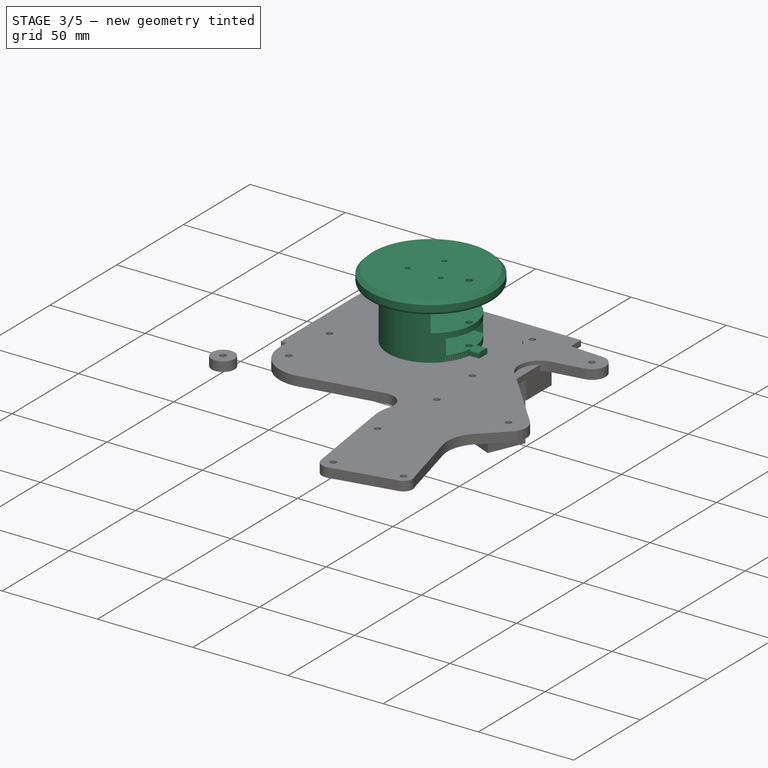
[diagram: stage 3 of 5 — iso view after this stage's code; geometry added in this stage tinted green]
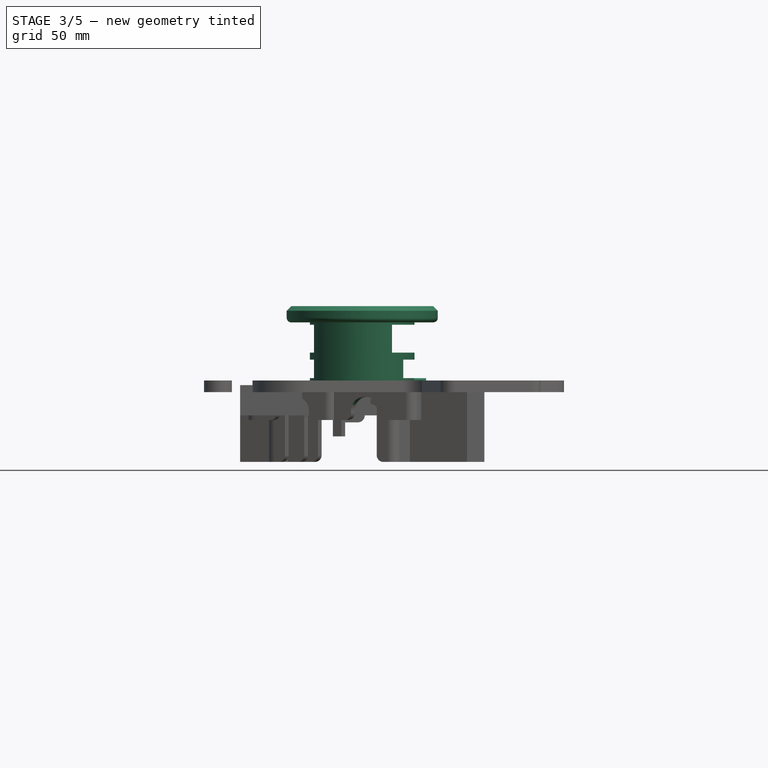
[diagram: stage 3 of 5 — front view after this stage's code; geometry added in this stage tinted green]
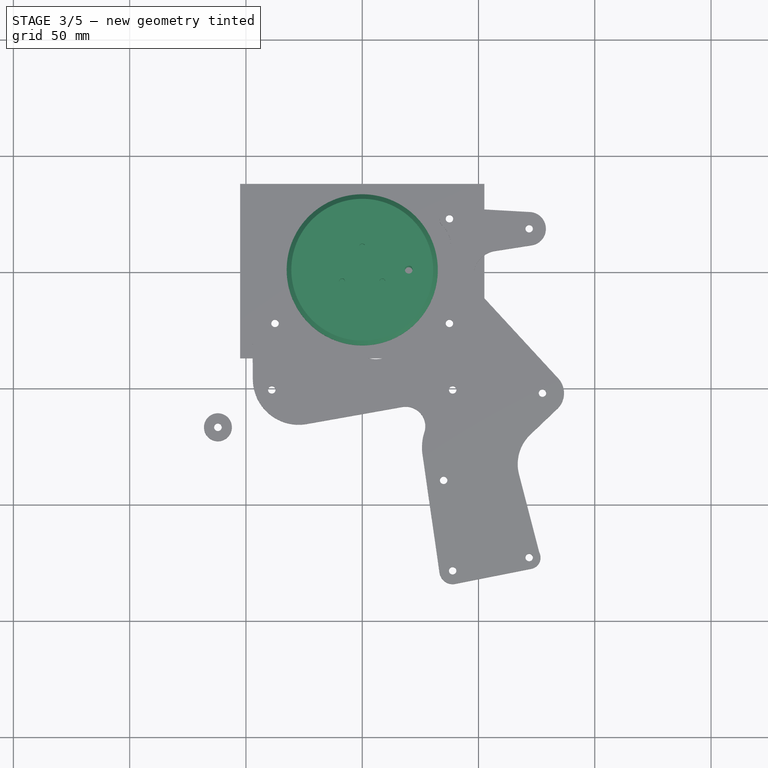
[diagram: stage 3 of 5 — top view after this stage's code; geometry added in this stage tinted green]
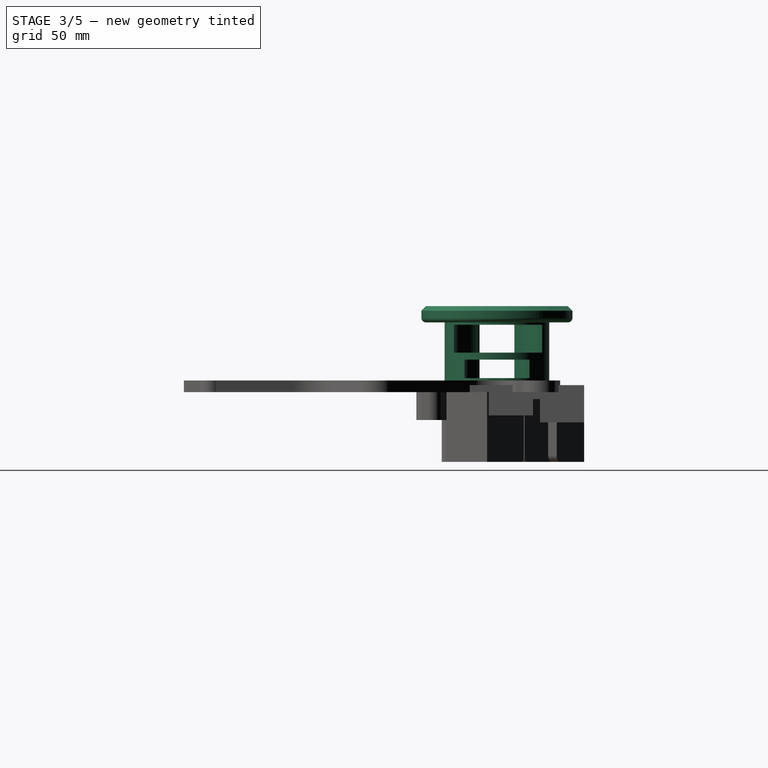
[diagram: stage 3 of 5 — right view after this stage's code; geometry added in this stage tinted green]
FEATURE [PartDesign::Body] Body010  label="MittelHalter"
  AllowCompound = false
  Group = -> [Sketch039,Pad024,Sketch040,Pad025,Sketch041,Pad026,Sketch042,Pocket033,Sketch043,Pocket034,Chamfer003]
  Origin = -> Origin010
  Placement = pos=(0,0,-9) rot=(0,0,1;0rad)
  Tip = -> Chamfer003
FEATURE [Sketcher::SketchObject] Sketch044
  ArcFitTolerance = 1e-06
  AttachmentSupport = -> [XY_Plane011]
  FullyConstrained = false
  MakeInternals = false
  MapMode = 5
  sketch-geometry (5):
    g0: ArcOfCircle CenterX=0 CenterY=0 CenterZ=0 NormalX=0 NormalY=0 NormalZ=1 AngleXU=0 Radius=22.5 StartAngle=0.0987121 EndAngle=6.06899
    g1: LineSegment StartX=21.9858 StartY=-4.78258 StartZ=0 EndX=27.4634 EndY=-4.78258 EndZ=0
    g2: LineSegment StartX=27.4634 StartY=-4.78258 StartZ=0 EndX=27.4634 EndY=2.21742 EndZ=0
    g3: LineSegment StartX=27.4634 StartY=2.21742 StartZ=0 EndX=22.3905 EndY=2.21742 EndZ=0
    g4: GeomPoint [constr] X=22.4634 Y=-1.28258 Z=0
  constraints (10):
    c: Diameter(g0) = 45
    c: Coincident(g0,g-1)
    c: Coincident(g1,g2)
    c: Coincident(g2,g3)
    c: Horizontal(g1)
    c: Horizontal(g3)
    c: Vertical(g2)
    c: PointOnObject(g4,g0)
    c: Coincident(g0,g1)
    c: Coincident(g3,g0)
FEATURE [PartDesign::Pad] Pad027
  Direction = (0,0,1)
  Length = 6
  Length2 = 10
  Profile = -> Sketch044
  ReferenceAxis = -> Sketch044 [N_Axis]
  Refine = true
  Suppressed = false
  Type = 0
FEATURE [Sketcher::SketchObject] Sketch045
  ArcFitTolerance = 1e-06
  AttachmentSupport = -> [Pad027]
  FullyConstrained = true
  MakeInternals = false
  MapMode = 5
  Placement = pos=(0,0,6) rot=(0,0,1;0rad)
  sketch-geometry (2):
    g0: Circle CenterX=0 CenterY=0 CenterZ=0 NormalX=0 NormalY=0 NormalZ=1 AngleXU=0 Radius=22.5
    g1: Circle CenterX=0 CenterY=0 CenterZ=0 NormalX=0 NormalY=0 NormalZ=1 AngleXU=0 Radius=18.5
  constraints (4):
    c: Diameter(g0) = 45
    c: Coincident(g0,g-1)
    c: Diameter(g1) = 37
    c: Coincident(g1,g0)
FEATURE [PartDesign::Pad] Pad028
  BaseFeature = -> Pad027
  Direction = (0,0,1)
  Length = 25
  Length2 = 10
  Profile = -> Sketch045
  ReferenceAxis = -> Sketch045 [N_Axis]
  Refine = true
  Suppressed = false
  Type = 0
FEATURE [PartDesign::Pocket] Pocket035
  BaseFeature = -> Pad028
  Direction = (0,0,-1)
  Length = 1
  Length2 = 5
  Profile = -> Pad028 [Face7]
  Refine = true
  Suppressed = false
  Type = 0
FEATURE [Sketcher::SketchObject] Sketch046
  ArcFitTolerance = 1e-06
  AttachmentSupport = -> [Pocket035]
  FullyConstrained = true
  MakeInternals = false
  MapMode = 5
  Placement = pos=(0,0,30) rot=(0,0,1;0rad)
  sketch-geometry (1):
    g0: Circle CenterX=0 CenterY=0 CenterZ=0 NormalX=0 NormalY=0 NormalZ=1 AngleXU=0 Radius=32.5
  constraints (2):
    c: Diameter(g0) = 65
    c: Coincident(g0,g-1)
FEATURE [PartDesign::Pad] Pad029
  BaseFeature = -> Pocket035
  Direction = (0,0,1)
  Length = 3
  Length2 = 10
  Profile = -> Sketch046
  ReferenceAxis = -> Sketch046 [N_Axis]
  Refine = true
  Suppressed = false
  Type = 0
FEATURE [Sketcher::SketchObject] Sketch047
  ArcFitTolerance = 1e-06
  AttachmentSupport = -> [Pad029]
  FullyConstrained = false
  MakeInternals = false
  MapMode = 5
  Placement = pos=(0,0,30) rot=(1,0,0;3.14159rad)
  sketch-geometry (5):
    g0: LineSegment StartX=26.3258 StartY=2.58889 StartZ=0 EndX=26.3258 EndY=-2.58889 EndZ=0
    g1: LineSegment StartX=26.3258 StartY=-2.58889 StartZ=0 EndX=28.5597 EndY=-2.58889 EndZ=0
    g2: LineSegment StartX=28.5597 StartY=-2.58889 StartZ=0 EndX=28.5597 EndY=2.58889 EndZ=0
    g3: LineSegment StartX=28.5597 StartY=2.58889 StartZ=0 EndX=26.3258 EndY=2.58889 EndZ=0
    g4: GeomPoint [constr] X=27.4427 Y=0 Z=0
  constraints (10):
    c: Coincident(g0,g1)
    c: Coincident(g1,g2)
    c: Coincident(g2,g3)
    c: Coincident(g3,g0)
    c: Vertical(g0)
    c: Vertical(g2)
    c: Horizontal(g1)
    c: Horizontal(g3)
    c: Symmetric(g2,g0,g4)
    c: PointOnObject(g4,g-1)
FEATURE [PartDesign::Pad] Pad030
  BaseFeature = -> Pad029
  Direction = (0,0,-1)
  Length = 1
  Length2 = 10
  Profile = -> Sketch047
  ReferenceAxis = -> Sketch047 [N_Axis]
  Refine = true
  Suppressed = false
  Type = 0
FEATURE [Sketcher::SketchObject] Sketch048
  ArcFitTolerance = 1e-06
  AttachmentSupport = -> [Pad030]
  FullyConstrained = false
  MakeInternals = false
  MapMode = 5
  Placement = pos=(0,0,29) rot=(1,0,0;3.14159rad)
  sketch-geometry (5):
    g0: LineSegment [constr] StartX=0 StartY=0 StartZ=0 EndX=0 EndY=18.5 EndZ=0
    g1: LineSegment StartX=0 StartY=18.5 StartZ=0 EndX=0 EndY=-19.5 EndZ=0
    g2: LineSegment StartX=0 StartY=-19.5 StartZ=0 EndX=25 EndY=-19.5 EndZ=0
    g3: LineSegment StartX=25 StartY=-19.5 StartZ=0 EndX=25 EndY=18.5 EndZ=0
    g4: LineSegment StartX=25 StartY=18.5 StartZ=0 EndX=0 EndY=18.5 EndZ=0
  constraints (13):
    c: Coincident(g0,g-1)
    c: PointOnObject(g0,g-2)
    c: Coincident(g1,g2)
    c: Coincident(g2,g3)
    c: Coincident(g3,g4)
    c: Coincident(g4,g1)
    c: Vertical(g1)
    c: Vertical(g3)
    c: Horizontal(g2)
    c: Horizontal(g4)
    c: Distance(g1,g3) = 25
    c: Distance(g2,g4) = 38
    c: Coincident(g1,g0)
FEATURE [PartDesign::Pocket] Pocket036
  BaseFeature = -> Pad030
  Direction = (0,0,1)
  Length = 11
  Length2 = 5
  Profile = -> Sketch048
  ReferenceAxis = -> Sketch048 [N_Axis]
  Refine = true
  Reversed = true
  Suppressed = false
  Type = 0
FEATURE [PartDesign::Pad] Pad031
  BaseFeature = -> Pocket036
  Direction = (0,0,-1)
  Length = 1
  Length2 = 10
  Profile = -> Pocket036 [Face21]
  Refine = true
  Suppressed = false
  Type = 0
FEATURE [PartDesign::Pad] Pad032
  BaseFeature = -> Pad031
  Direction = (0,0,1)
  Length = 12
  Length2 = 10
  Profile = -> Pad031 [Face20]
  Refine = true
  Suppressed = false
  Type = 0
FEATURE [Sketcher::SketchObject] Sketch049
  ArcFitTolerance = 1e-06
  AttachmentSupport = -> [Pad032]
  FullyConstrained = true
  MakeInternals = false
  MapMode = 5
  Placement = pos=(0,0,6) rot=(0,0,1;0rad)
  sketch-geometry (6):
    g0: Circle [constr] CenterX=0 CenterY=0 CenterZ=0 NormalX=0 NormalY=0 NormalZ=1 AngleXU=0 Radius=18.5
    g1: Circle [constr] CenterX=0 CenterY=0 CenterZ=0 NormalX=0 NormalY=0 NormalZ=1 AngleXU=0 Radius=14
    g2: LineSegment StartX=0 StartY=14 StartZ=0 EndX=0 EndY=-14 EndZ=0
    g3: LineSegment StartX=0 StartY=-14 StartZ=0 EndX=32 EndY=-14 EndZ=0
    g4: LineSegment StartX=32 StartY=-14 StartZ=0 EndX=32 EndY=14 EndZ=0
    g5: LineSegment StartX=32 StartY=14 StartZ=0 EndX=0 EndY=14 EndZ=0
  constraints (16):
    c: Diameter(g0) = 37
    c: Coincident(g0,g-1)
    c: Diameter(g1) = 28
    c: Coincident(g1,g0)
    c: Coincident(g2,g3)
    c: Coincident(g3,g4)
    c: Coincident(g4,g5)
    c: Coincident(g5,g2)
    c: Vertical(g2)
    c: Vertical(g4)
    c: Horizontal(g3)
    c: Horizontal(g5)
    c: Distance(g2,g4) = 32
    c: Distance(g3,g5) = 28
    c: PointOnObject(g2,g-2)
    c: PointOnObject(g2,g1)
FEATURE [PartDesign::Pocket] Pocket037
  BaseFeature = -> Pad032
  Direction = (0,0,-1)
  Length = 8
  Length2 = 5
  Profile = -> Sketch049
  ReferenceAxis = -> Sketch049 [N_Axis]
  Refine = true
  Reversed = true
  Suppressed = false
  Type = 0
FEATURE [PartDesign::Pocket] Pocket038
  BaseFeature = -> Pocket037
  Direction = (0,0,-1)
  Length = 1
  Length2 = 5
  Profile = -> Pocket037 [Face12]
  Refine = true
  Suppressed = false
  Type = 0
FEATURE [Sketcher::SketchObject] Sketch050
  ArcFitTolerance = 1e-06
  AttachmentSupport = -> [Pocket038]
  FullyConstrained = true
  MakeInternals = false
  MapMode = 5
  Placement = pos=(0,0,6) rot=(0,0,1;0rad)
  sketch-geometry (1):
    g0: Circle CenterX=0 CenterY=0 CenterZ=0 NormalX=0 NormalY=0 NormalZ=1 AngleXU=0 Radius=14
  constraints (2):
    c: Diameter(g0) = 28
    c: Coincident(g0,g-1)
FEATURE [PartDesign::Pocket] Pocket039
  BaseFeature = -> Pocket038
  Direction = (0,0,-1)
  Length = 8
  Length2 = 5
  Profile = -> Sketch050
  ReferenceAxis = -> Sketch050 [N_Axis]
  Refine = true
  Reversed = true
  Suppressed = false
  Type = 0
FEATURE [PartDesign::Pad] Pad033
  BaseFeature = -> Pocket039
  Direction = (0,0,1)
  Length = 4
  Length2 = 10
  Profile = -> Pocket039 [Face3]
  Refine = true
  Suppressed = false
  Type = 0
FEATURE [PartDesign::Pocket] Pocket040
  BaseFeature = -> Pad033
  Direction = (0,0,1)
  Length = 6
  Length2 = 5
  Profile = -> Pad033 [Face19]
  Refine = true
  Suppressed = false
  Type = 0
FEATURE [Sketcher::SketchObject] Sketch051
  ArcFitTolerance = 1e-06
  AttachmentSupport = -> [Pocket040]
  FullyConstrained = true
  MakeInternals = false
  MapMode = 5
  Placement = pos=(0,0,6) rot=(1,0,0;3.14159rad)
  sketch-geometry (1):
    g0: Circle CenterX=0 CenterY=0 CenterZ=0 NormalX=0 NormalY=0 NormalZ=1 AngleXU=0 Radius=22.5
  constraints (2):
    c: Diameter(g0) = 45
    c: Coincident(g0,g-1)
FEATURE [PartDesign::Pad] Pad034
  BaseFeature = -> Pocket040
  Direction = (0,0,-1)
  Length = 6
  Length2 = 10
  Profile = -> Sketch051
  ReferenceAxis = -> Sketch051 [N_Axis]
  Refine = true
  Suppressed = false
  Type = 0
FEATURE [Sketcher::SketchObject] Sketch052
  ArcFitTolerance = 1e-06
  AttachmentSupport = -> [Pad034]
  ExternalGeometry = -> [Pad034]
  FullyConstrained = true
  MakeInternals = false
  MapMode = 5
  Placement = pos=(0,0,9e-16) rot=(1,0,0;3.14159rad)
  sketch-geometry (5):
    g0: LineSegment StartX=17.5 StartY=-3.5 StartZ=0 EndX=27.5 EndY=-3.5 EndZ=0
    g1: LineSegment StartX=27.5 StartY=-3.5 StartZ=0 EndX=27.5 EndY=3.5 EndZ=0
    g2: LineSegment StartX=27.5 StartY=3.5 StartZ=0 EndX=17.5 EndY=3.5 EndZ=0
    g3: LineSegment StartX=17.5 StartY=3.5 StartZ=0 EndX=17.5 EndY=-3.5 EndZ=0
    g4: GeomPoint [constr] X=22.5 Y=0 Z=0
  constraints (13):
    c: Coincident(g0,g1)
    c: Coincident(g1,g2)
    c: Coincident(g2,g3)
    c: Coincident(g3,g0)
    c: Horizontal(g0)
    c: Horizontal(g2)
    c: Vertical(g1)
    c: Vertical(g3)
    c: Symmetric(g2,g0,g4)
    c: Distance(g1,g3) = 10
    c: Distance(g0,g2) = 7
    c: PointOnObject(g4,g-1)
    c: PointOnObject(g4,g-3)
FEATURE [PartDesign::Pad] Pad035
  BaseFeature = -> Pad034
  Direction = (0,0,-1)
  Length = 6
  Length2 = 10
  Profile = -> Sketch052
  ReferenceAxis = -> Sketch052 [N_Axis]
  Refine = true
  Reversed = true
  Suppressed = false
  Type = 0
FEATURE [PartDesign::Pocket] Pocket041
  BaseFeature = -> Pad035
  Direction = (0,0,1)
  Length = 0
  Length2 = 5
  Profile = -> Pad035 [Face22]
  Refine = true
  Suppressed = false
  Type = 3
  UpToFace = -> Pad035 [Face13]
FEATURE [Sketcher::SketchObject] Sketch053
  ArcFitTolerance = 1e-06
  AttachmentSupport = -> [Pocket041]
  FullyConstrained = false
  MakeInternals = false
  MapMode = 5
  Placement = pos=(0,0,29) rot=(1,0,0;3.14159rad)
  sketch-geometry (5):
    g0: LineSegment StartX=-23.634 StartY=-7.5 StartZ=0 EndX=-3.634 EndY=-7.5 EndZ=0
    g1: LineSegment StartX=-3.634 StartY=-7.5 StartZ=0 EndX=-3.634 EndY=7.5 EndZ=0
    g2: LineSegment StartX=-3.634 StartY=7.5 StartZ=0 EndX=-23.634 EndY=7.5 EndZ=0
    g3: LineSegment StartX=-23.634 StartY=7.5 StartZ=0 EndX=-23.634 EndY=-7.5 EndZ=0
    g4: GeomPoint [constr] X=-13.634 Y=0 Z=0
  constraints (12):
    c: Coincident(g0,g1)
    c: Coincident(g1,g2)
    c: Coincident(g2,g3)
    c: Coincident(g3,g0)
    c: Horizontal(g0)
    c: Horizontal(g2)
    c: Vertical(g1)
    c: Vertical(g3)
    c: Symmetric(g2,g0,g4)
    c: Distance(g1,g3) = 20
    c: Distance(g0,g2) = 15
    c: PointOnObject(g4,g-1)
FEATURE [PartDesign::Pocket] Pocket042
  BaseFeature = -> Pocket041
  Direction = (0,0,1)
  Length = 0
  Length2 = 5
  Profile = -> Sketch053
  ReferenceAxis = -> Sketch053 [N_Axis]
  Refine = true
  Reversed = true
  Suppressed = false
  Type = 3
  UpToFace = -> Pocket041 [Face4]
FEATURE [Sketcher::SketchObject] Sketch054
  ArcFitTolerance = 1e-06
  AttachmentSupport = -> [Pocket042]
  FullyConstrained = false
  MakeInternals = false
  MapMode = 5
  Placement = pos=(0,0,6) rot=(0,0,1;0rad)
  sketch-geometry (5):
    g0: LineSegment StartX=2.84209 StartY=-7.5 StartZ=0 EndX=2.84209 EndY=7.5 EndZ=0
    g1: LineSegment StartX=2.84209 StartY=7.5 StartZ=0 EndX=-26.0011 EndY=7.5 EndZ=0
    g2: LineSegment StartX=-26.0011 StartY=7.5 StartZ=0 EndX=-26.0011 EndY=-7.5 EndZ=0
    g3: LineSegment StartX=-26.0011 StartY=-7.5 StartZ=0 EndX=2.84209 EndY=-7.5 EndZ=0
    g4: GeomPoint [constr] X=-11.5795 Y=0 Z=0
  constraints (11):
    c: Coincident(g0,g1)
    c: Coincident(g1,g2)
    c: Coincident(g2,g3)
    c: Coincident(g3,g0)
    c: Vertical(g0)
    c: Vertical(g2)
    c: Horizontal(g1)
    c: Horizontal(g3)
    c: Symmetric(g2,g0,g4)
    c: Distance(g1,g3) = 15
    c: PointOnObject(g4,g-1)
FEATURE [PartDesign::Pocket] Pocket043
  BaseFeature = -> Pocket042
  Direction = (0,0,-1)
  Length = 0
  Length2 = 5
  Profile = -> Sketch054
  ReferenceAxis = -> Sketch054 [N_Axis]
  Refine = true
  Reversed = true
  Suppressed = false
  Type = 3
  UpToFace = -> Pocket042 [Face5]
FEATURE [PartDesign::Fillet] Fillet002
  Base = -> Pocket043 [Edge67]
  BaseFeature = -> Pocket043
  Radius = 1
  Refine = true
  SupportTransform = false
  Suppressed = false
  UseAllEdges = false
FEATURE [PartDesign::Fillet] Fillet003
  Base = -> Fillet002 [Edge20,Edge47]
  BaseFeature = -> Fillet002
  Radius = 1
  Refine = true
  SupportTransform = false
  Suppressed = false
  UseAllEdges = false
FEATURE [PartDesign::Fillet] Fillet004
  Base = -> Fillet003 [Edge78,Edge79]
  BaseFeature = -> Fillet003
  Radius = 1
  Refine = true
  SupportTransform = false
  Suppressed = false
  UseAllEdges = false
FEATURE [PartDesign::Fillet] Fillet005
  Base = -> Fillet004 [Edge38,Edge36,Edge19,Edge41]
  BaseFeature = -> Fillet004
  Radius = 1
  Refine = true
  SupportTransform = false
  Suppressed = false
  UseAllEdges = false
FEATURE [PartDesign::Fillet] Fillet006
  Base = -> Fillet005 [Edge98]
  BaseFeature = -> Fillet005
  Radius = 2
  Refine = true
  SupportTransform = false
  Suppressed = false
  UseAllEdges = false
FEATURE [PartDesign::Chamfer] Chamfer004
  Angle = 45
  Base = -> Fillet006 [Edge39]
  BaseFeature = -> Fillet006
  ChamferType = 0
  FlipDirection = false
  Refine = true
  Size = 2
  Size2 = 1
  SupportTransform = false
  Suppressed = false
  UseAllEdges = false
FEATURE [Sketcher::SketchObject] Sketch055
  ArcFitTolerance = 1e-06
  AttachmentSupport = -> [Chamfer004]
  FullyConstrained = true
  MakeInternals = false
  MapMode = 5
  Placement = pos=(0,0,1e-16) rot=(1,0,0;3.14159rad)
  sketch-geometry (1):
    g0: Circle CenterX=20 CenterY=0 CenterZ=0 NormalX=0 NormalY=0 NormalZ=1 AngleXU=0 Radius=1.65
  constraints (3):
    c: Diameter(g0) = 3.3
    c: PointOnObject(g0,g-1)
    c: DistanceX(g-1,g0) = 20
FEATURE [PartDesign::Pocket] Pocket044
  BaseFeature = -> Chamfer004
  Direction = (0,0,1)
  Length = 31
  Length2 = 5
  Profile = -> Sketch055
  ReferenceAxis = -> Sketch055 [N_Axis]
  Refine = true
  Suppressed = false
  Type = 1
FEATURE [Sketcher::SketchObject] Sketch056
  ArcFitTolerance = 1e-06
  AttachmentSupport = -> [Pocket044]
  FullyConstrained = true
  MakeInternals = false
  MapMode = 5
  Placement = pos=(0,0,37) rot=(0,0,1;0rad)
  sketch-geometry (6):
    g0: Circle [constr] CenterX=0 CenterY=0 CenterZ=0 NormalX=0 NormalY=0 NormalZ=1 AngleXU=0 Radius=10
    g1: LineSegment [constr] StartX=0 StartY=0 StartZ=0 EndX=8.66025 EndY=-5 EndZ=0
    g2: LineSegment [constr] StartX=0 StartY=0 StartZ=0 EndX=-12.9904 EndY=-7.5 EndZ=0
    g3: Circle CenterX=0 CenterY=10 CenterZ=0 NormalX=0 NormalY=0 NormalZ=1 AngleXU=0 Radius=1.25
    g4: Circle CenterX=8.66025 CenterY=-5 CenterZ=0 NormalX=0 NormalY=0 NormalZ=1 AngleXU=0 Radius=1.25
    g5: Circle CenterX=-8.66025 CenterY=-5 CenterZ=0 NormalX=0 NormalY=0 NormalZ=1 AngleXU=0 Radius=1.25
  constraints (16):
    c: Diameter(g0) = 20
    c: Coincident(g0,g-1)
    c: Angle(g-1,g1) = -0.523599
    c: Coincident(g1,g0)
    c: Distance(g2) = 15
    c: Angle(g-1,g2) = -2.61799
    c: Coincident(g2,g0)
    c: Diameter(g3) = 2.5
    c: PointOnObject(g3,g0)
    c: Diameter(g4) = 2.5
    c: PointOnObject(g4,g0)
    c: Diameter(g5) = 2.5
    c: PointOnObject(g5,g0)
    c: PointOnObject(g3,g-2)
    c: Coincident(g4,g1)
    c: PointOnObject(g5,g2)
FEATURE [PartDesign::Pocket] Pocket045
  BaseFeature = -> Pocket044
  Direction = (0,0,-1)
  Length = 8
  Length2 = 5
  Profile = -> Sketch056
  ReferenceAxis = -> Sketch056 [N_Axis]
  Refine = true
  Suppressed = false
  Type = 0
FEATURE [PartDesign::Pocket] Pocket046
  BaseFeature = -> Pocket045
  Direction = (0,1,0)
  Length = 0.5
  Length2 = 5
  Profile = -> Pocket045 [Face20]
  Refine = true
  Suppressed = false
  Type = 0
FEATURE [PartDesign::Pocket] Pocket047
  BaseFeature = -> Pocket046
  Direction = (0,-1,0)
  Length = 0.5
  Length2 = 5
  Profile = -> Pocket046 [Face18]
  Refine = true
  Suppressed = false
  Type = 0
FEATURE [PartDesign::Fillet] Fillet007
  Base = -> Pocket047 [Edge98,Edge100]
  BaseFeature = -> Pocket047
  Radius = 1
  Refine = true
  SupportTransform = false
  Suppressed = false
  UseAllEdges = false
FEATURE [PartDesign::Fillet] Fillet008
  Base = -> Fillet007 [Edge51,Edge87,Edge26,Edge86,Edge34,Edge37]
  BaseFeature = -> Fillet007
  Radius = 1
  Refine = true
  SupportTransform = false
  Suppressed = false
  UseAllEdges = false
FEATURE [PartDesign::Fillet] Fillet014
  Base = -> Fillet013 [Edge221,Edge280,Edge284,Edge217]
  BaseFeature = -> Fillet013
  Radius = 3
  Refine = true
  SupportTransform = false
  Suppressed = false
  UseAllEdges = false
FEATURE [PartDesign::Fillet] Fillet015
  Base = -> Fillet014 [Edge117,Edge24,Edge116,Edge30]
  BaseFeature = -> Fillet014
  Radius = 6
  Refine = true
  SupportTransform = false
  Suppressed = false
  UseAllEdges = false
FEATURE [PartDesign::Fillet] Fillet016
  Base = -> Fillet015 [Edge55,Edge269,Edge57,Edge270]
  BaseFeature = -> Fillet015
  Radius = 6
  Refine = true
  SupportTransform = false
  Suppressed = false
  UseAllEdges = false
FEATURE [PartDesign::Fillet] Fillet017
  Base = -> Fillet016 [Edge364,Edge363]
  BaseFeature = -> Fillet016
  Radius = 6
  Refine = true
  SupportTransform = false
  Suppressed = false
  UseAllEdges = false
FEATURE [PartDesign::Fillet] Fillet018
  Base = -> Fillet017 [Edge146,Edge147]
  BaseFeature = -> Fillet017
  Radius = 6
  Refine = true
  SupportTransform = false
  Suppressed = false
  UseAllEdges = false
FEATURE [PartDesign::Fillet] Fillet019
  Base = -> Fillet018 [Edge235,Edge228]
  BaseFeature = -> Fillet018
  Radius = 5
  Refine = true
  SupportTransform = false
  Suppressed = false
  UseAllEdges = false
FEATURE [PartDesign::Fillet] Fillet020
  Base = -> Fillet019 [Edge204,Edge193]
  BaseFeature = -> Fillet019
  Radius = 5
  Refine = true
  SupportTransform = false
  Suppressed = false
  UseAllEdges = false
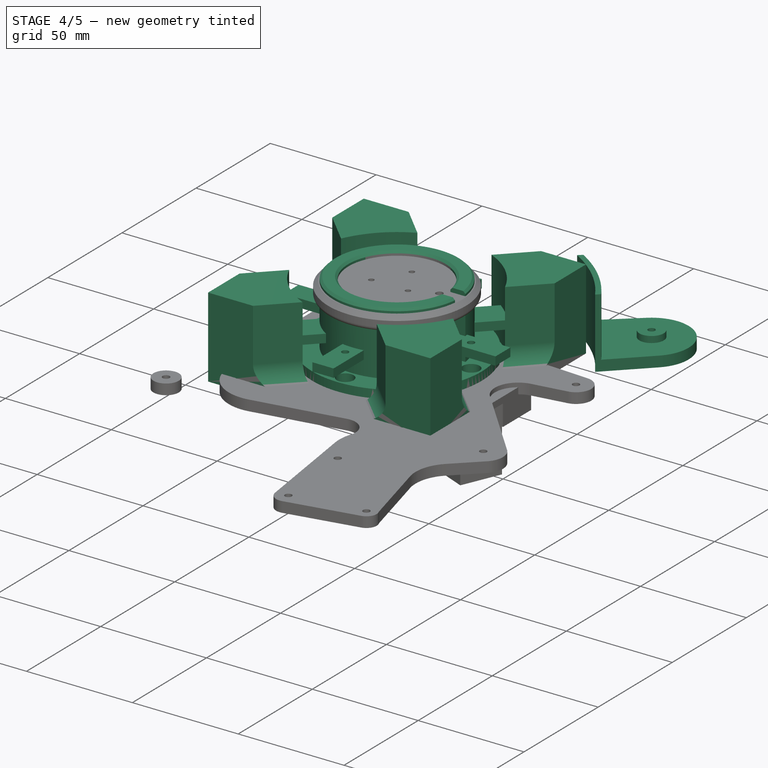
[diagram: stage 4 of 5 — iso view after this stage's code; geometry added in this stage tinted green]
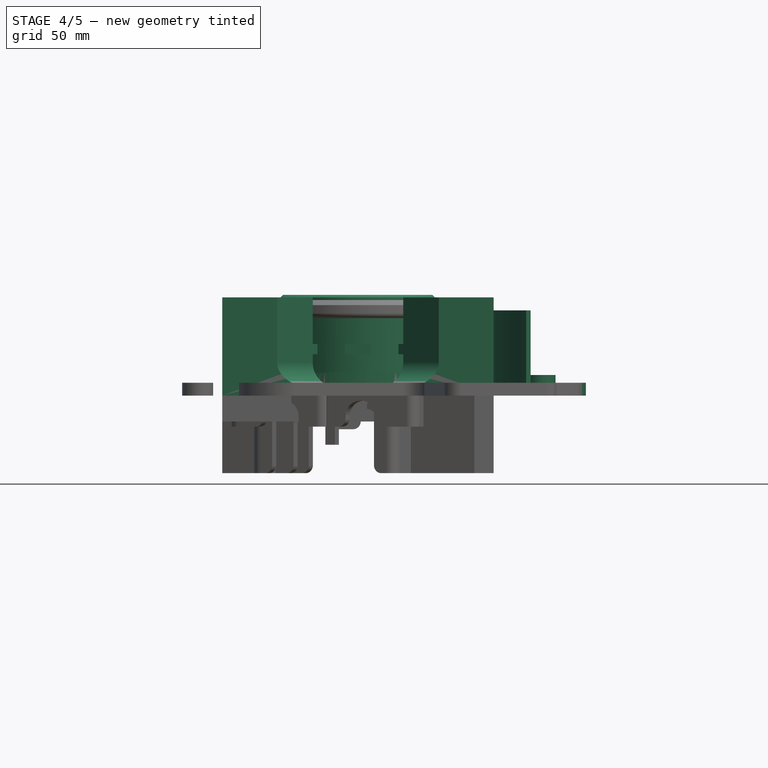
[diagram: stage 4 of 5 — front view after this stage's code; geometry added in this stage tinted green]
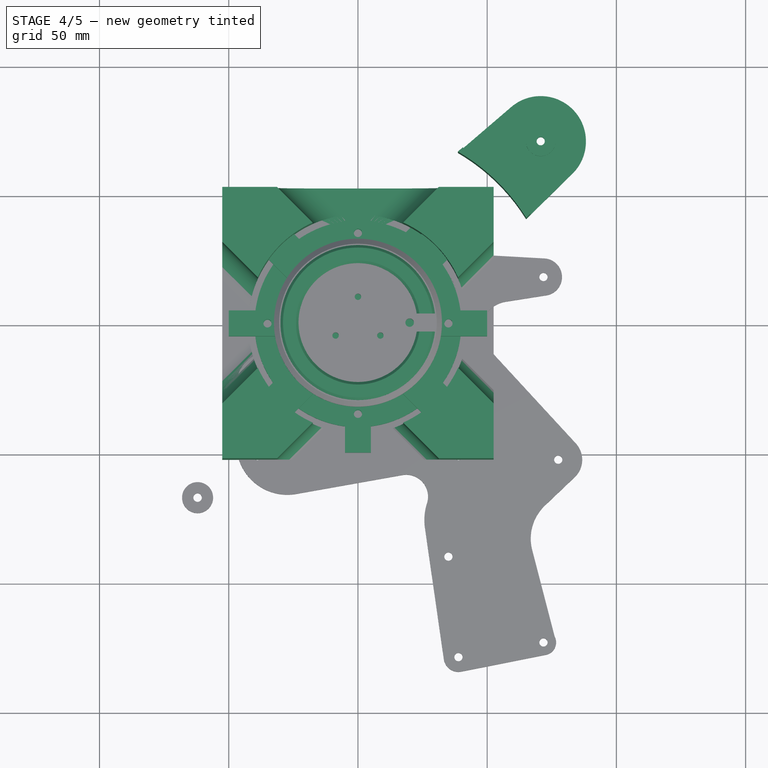
[diagram: stage 4 of 5 — top view after this stage's code; geometry added in this stage tinted green]
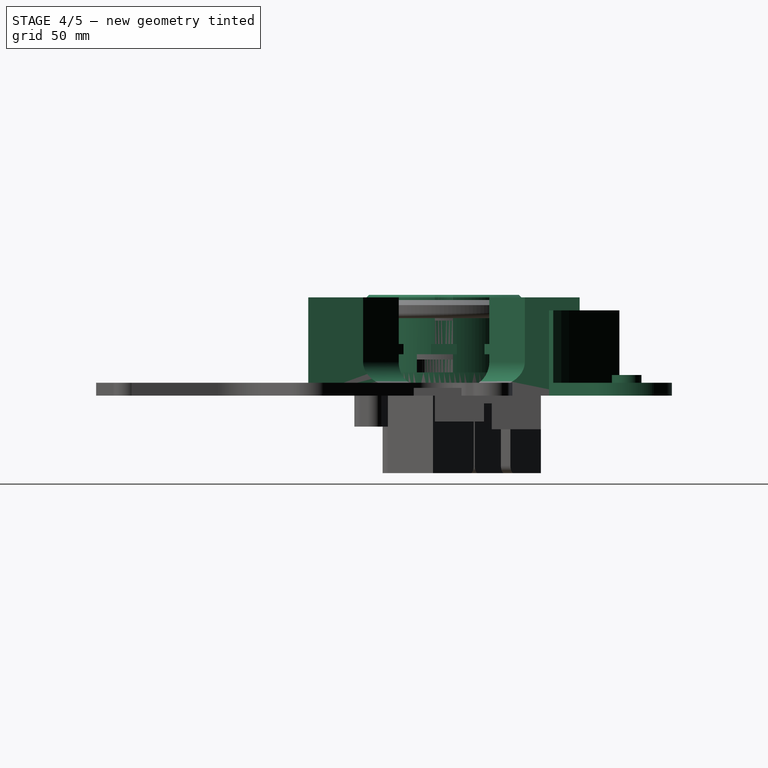
[diagram: stage 4 of 5 — right view after this stage's code; geometry added in this stage tinted green]
FEATURE [PartDesign::Body] Body004  label="PlattenBasis"
  AllowCompound = false
  Group = -> [Sketch019,Pad008,Sketch020,Pocket013,Sketch021,Pocket014,Sketch022,Pocket015,Sketch023,Pocket016,Pocket017,Pocket018]
  Origin = -> Origin004
  Tip = -> Pocket018
FEATURE [Sketcher::SketchObject] Sketch024
  ArcFitTolerance = 1e-06
  AttachmentSupport = -> [XY_Plane005]
  FullyConstrained = true
  MakeInternals = false
  MapMode = 5
  sketch-geometry (11):
    g0: Circle [constr] CenterX=0 CenterY=0 CenterZ=0 NormalX=0 NormalY=0 NormalZ=1 AngleXU=0 Radius=35
    g1: Circle [constr] CenterX=0 CenterY=0 CenterZ=0 NormalX=0 NormalY=0 NormalZ=1 AngleXU=0 Radius=25
    g2: LineSegment StartX=-52.5 StartY=-52.5 StartZ=0 EndX=52.5 EndY=-52.5 EndZ=0
    g3: LineSegment StartX=52.5 StartY=-52.5 StartZ=0 EndX=52.5 EndY=52.5 EndZ=0
    g4: LineSegment StartX=52.5 StartY=52.5 StartZ=0 EndX=-52.5 EndY=52.5 EndZ=0
    g5: LineSegment StartX=-52.5 StartY=52.5 StartZ=0 EndX=-52.5 EndY=-52.5 EndZ=0
    g6: GeomPoint [constr] X=0 Y=0 Z=0
    g7: Circle CenterX=-35 CenterY=0 CenterZ=0 NormalX=0 NormalY=0 NormalZ=1 AngleXU=0 Radius=1.7
    g8: Circle CenterX=0 CenterY=35 CenterZ=0 NormalX=0 NormalY=0 NormalZ=1 AngleXU=0 Radius=1.7
    g9: Circle CenterX=35 CenterY=0 CenterZ=0 NormalX=0 NormalY=0 NormalZ=1 AngleXU=0 Radius=1.7
    g10: Circle CenterX=0 CenterY=-35 CenterZ=0 NormalX=0 NormalY=0 NormalZ=1 AngleXU=0 Radius=1.7
  constraints (28):
    c: Diameter(g0) = 70
    c: Coincident(g0,g-1)
    c: Diameter(g1) = 50
    c: Coincident(g1,g0)
    c: Coincident(g2,g3)
    c: Coincident(g3,g4)
    c: Coincident(g4,g5)
    c: Coincident(g5,g2)
    c: Horizontal(g2)
    c: Horizontal(g4)
    c: Vertical(g3)
    c: Vertical(g5)
    c: Symmetric(g4,g2,g6)
    c: Distance(g3,g5) = 105
    c: Distance(g2,g4) = 105
    c: Coincident(g6,g0)
    c: Diameter(g7) = 3.4
    c: PointOnObject(g7,g0)
    c: Diameter(g8) = 3.4
    c: PointOnObject(g8,g0)
    c: Diameter(g9) = 3.4
    c: PointOnObject(g9,g0)
    c: Diameter(g10) = 3.4
    c: PointOnObject(g10,g0)
    c: PointOnObject(g7,g-1)
    c: PointOnObject(g8,g-2)
    c: PointOnObject(g9,g-1)
    c: PointOnObject(g10,g-2)
FEATURE [PartDesign::Pad] Pad009
  Direction = (0,0,1)
  Length = 3
  Length2 = 10
  Profile = -> Sketch024
  ReferenceAxis = -> Sketch024 [N_Axis]
  Refine = true
  Suppressed = false
  Type = 0
FEATURE [Sketcher::SketchObject] Sketch025
  ArcFitTolerance = 1e-06
  AttachmentSupport = -> [Pad009]
  ExternalGeometry = -> [Pad009]
  FullyConstrained = false
  MakeInternals = false
  MapMode = 5
  Placement = pos=(0,0,3) rot=(0,0,1;0rad)
  sketch-geometry (12):
    g0: LineSegment StartX=-63.1066 StartY=-41.8934 StartZ=0 EndX=-21.2132 EndY=-7.1e-15 EndZ=0
    g1: LineSegment StartX=-41.8934 StartY=-63.1066 StartZ=0 EndX=-7.1e-15 EndY=-21.2132 EndZ=0
    g2: LineSegment StartX=-41.8934 StartY=63.1066 StartZ=0 EndX=-7.1e-15 EndY=21.2132 EndZ=0
    g3: LineSegment StartX=-63.1066 StartY=41.8934 StartZ=0 EndX=-21.2132 EndY=-7.1e-15 EndZ=0
    g4: LineSegment StartX=-63.1066 StartY=41.8934 StartZ=0 EndX=-41.8934 EndY=63.1066 EndZ=0
    g5: LineSegment StartX=41.8934 StartY=63.1066 StartZ=0 EndX=63.1066 EndY=41.8934 EndZ=0
    g6: LineSegment StartX=41.8934 StartY=-63.1066 StartZ=0 EndX=63.1066 EndY=-41.8934 EndZ=0
    g7: LineSegment StartX=-41.8934 StartY=-63.1066 StartZ=0 EndX=-63.1066 EndY=-41.8934 EndZ=0
    g8: LineSegment StartX=-7.1e-15 StartY=-21.2132 StartZ=0 EndX=41.8934 EndY=-63.1066 EndZ=0
    g9: LineSegment StartX=-7.1e-15 StartY=21.2132 StartZ=0 EndX=41.8934 EndY=63.1066 EndZ=0
    g10: LineSegment StartX=21.2132 StartY=7.1e-15 StartZ=0 EndX=63.1066 EndY=-41.8934 EndZ=0
    g11: LineSegment StartX=21.2132 StartY=-1.42e-14 StartZ=0 EndX=63.1066 EndY=41.8934 EndZ=0
  constraints (13):
    c: Coincident(g4,g3)
    c: Coincident(g4,g2)
    c: Coincident(g5,g9)
    c: Coincident(g5,g11)
    c: Coincident(g6,g8)
    c: Coincident(g6,g10)
    c: Coincident(g7,g1)
    c: Coincident(g7,g0)
    c: Coincident(g0,g3)
    c: Coincident(g2,g9)
    c: PointOnObject(g10,g11)
    c: Coincident(g1,g8)
    c: PointOnObject(g11,g10)
FEATURE [PartDesign::Pad] Pad010
  BaseFeature = -> Pad009
  Direction = (0,0,1)
  Length = 35
  Length2 = 10
  Profile = -> Sketch025
  ReferenceAxis = -> Sketch025 [N_Axis]
  Refine = true
  Suppressed = false
  Type = 0
FEATURE [PartDesign::Pocket] Pocket019
  BaseFeature = -> Pad010
  Direction = (0,0,1)
  Length = 5
  Length2 = 5
  Profile = -> Pad010 [Face11]
  Refine = true
  Suppressed = false
  Type = 1
FEATURE [PartDesign::Pocket] Pocket020
  BaseFeature = -> Pocket019
  Direction = (0,0,1)
  Length = 5
  Length2 = 5
  Profile = -> Pocket019 [Face6]
  Refine = true
  Suppressed = false
  Type = 1
FEATURE [PartDesign::Pocket] Pocket021
  BaseFeature = -> Pocket020
  Direction = (0,0,1)
  Length = 5
  Length2 = 5
  Profile = -> Pocket020 [Face1]
  Refine = true
  Suppressed = false
  Type = 1
FEATURE [PartDesign::Pocket] Pocket022
  BaseFeature = -> Pocket021
  Direction = (0,0,1)
  Length = 5
  Length2 = 5
  Profile = -> Pocket021 [Face10]
  Refine = true
  Suppressed = false
  Type = 1
FEATURE [PartDesign::Pocket] Pocket023
  BaseFeature = -> Pocket022
  Direction = (0,0,1)
  Length = 5
  Length2 = 5
  Profile = -> Pocket022 [Face18]
  Refine = true
  Suppressed = false
  Type = 1
FEATURE [PartDesign::Pocket] Pocket024
  BaseFeature = -> Pocket023
  Direction = (0,0,1)
  Length = 5
  Length2 = 5
  Profile = -> Pocket023 [Face6]
  Refine = true
  Suppressed = false
  Type = 1
FEATURE [PartDesign::Pocket] Pocket025
  BaseFeature = -> Pocket024
  Direction = (0,0,1)
  Length = 5
  Length2 = 5
  Profile = -> Pocket024 [Face18]
  Refine = true
  Suppressed = false
  Type = 1
FEATURE [PartDesign::Pocket] Pocket026
  BaseFeature = -> Pocket025
  Direction = (0,0,1)
  Length = 5
  Length2 = 5
  Profile = -> Pocket025 [Face4]
  Refine = true
  Suppressed = false
  Type = 1
FEATURE [Sketcher::SketchObject] Sketch026
  ArcFitTolerance = 1e-06
  AttachmentSupport = -> [Pocket026]
  FullyConstrained = true
  MakeInternals = false
  MapMode = 5
  Placement = pos=(0,0,38) rot=(0,0,1;0rad)
  sketch-geometry (1):
    g0: Circle CenterX=0 CenterY=0 CenterZ=0 NormalX=0 NormalY=0 NormalZ=1 AngleXU=0 Radius=42.5
  constraints (2):
    c: Diameter(g0) = 85
    c: Coincident(g0,g-1)
FEATURE [PartDesign::Pocket] Pocket027
  BaseFeature = -> Pocket026
  Direction = (0,0,-1)
  Length = 0
  Length2 = 5
  Profile = -> Sketch026
  ReferenceAxis = -> Sketch026 [N_Axis]
  Refine = true
  Suppressed = false
  Type = 3
  UpToFace = -> Pocket026 [Face5]
FEATURE [PartDesign::Fillet] Fillet001
  Base = -> Pocket027 [Edge56,Edge54,Edge67,Edge27,Edge61,Edge62,Edge69,Edge25]
  BaseFeature = -> Pocket027
  Radius = 10
  Refine = true
  SupportTransform = false
  Suppressed = false
  UseAllEdges = false
FEATURE [PartDesign::Body] Body005  label="Ringplatte_105_105"
  AllowCompound = false
  Group = -> [Sketch024,Pad009,Sketch025,Pad010,Pocket019,Pocket020,Pocket021,Pocket022,Pocket023,Pocket024,Pocket025,Pocket026,Sketch026,Pocket027,Fillet001,Sketch027,Hole003]
  Origin = -> Origin005
  Placement = pos=(0,-90,0) rot=(0,0,1;0rad)
  Tip = -> Hole003
FEATURE [Sketcher::SketchObject] Sketch028
  ArcFitTolerance = 1e-06
  AttachmentSupport = -> [XY_Plane006]
  FullyConstrained = false
  MakeInternals = false
  MapMode = 5
  sketch-geometry (8):
    g0: Circle [constr] CenterX=0 CenterY=0 CenterZ=0 NormalX=0 NormalY=0 NormalZ=1 AngleXU=0 Radius=100
    g1: Circle [constr] CenterX=0 CenterY=0 CenterZ=0 NormalX=0 NormalY=0 NormalZ=1 AngleXU=0 Radius=85
    g2: LineSegment [constr] StartX=0 StartY=0 StartZ=0 EndX=106.066 EndY=106.066 EndZ=0
    g3: Circle CenterX=70.7107 CenterY=70.7107 CenterZ=0 NormalX=0 NormalY=0 NormalZ=1 AngleXU=0 Radius=1.6
    g4: ArcOfCircle CenterX=70.7107 CenterY=70.7107 CenterZ=0 NormalX=0 NormalY=0 NormalZ=1 AngleXU=0 Radius=17.5 StartAngle=5.48971 EndAngle=8.56316
    g5: LineSegment StartX=82.9848 StartY=58.2368 StartZ=0 EndX=65.0881 EndY=40.6268 EndZ=0
    g6: LineSegment StartX=59.3145 StartY=83.9914 StartZ=0 EndX=38.6599 EndY=66.2675 EndZ=0
    g7: ArcOfCircle CenterX=0.0519267 CenterY=0.0335779 CenterZ=0 NormalX=0 NormalY=0 NormalZ=1 AngleXU=0 Radius=76.6649 StartAngle=0.557998 EndAngle=1.04304
  constraints (16):
    c: Diameter(g0) = 200
    c: Coincident(g0,g-1)
    c: Coincident(g1,g0)
    c: Diameter(g1) = 170
    c: Distance(g2) = 150
    c: Angle(g-1,g2) = 0.785398
    c: Coincident(g2,g0)
    c: Diameter(g3) = 3.2
    c: PointOnObject(g3,g0)
    c: PointOnObject(g3,g2)
    c: Tangent(g4,g5) = 1.5708
    c: Tangent(g4,g6) = -1.5708
    c: Radius(g4) = 17.5
    c: Coincident(g4,g3)
    c: Coincident(g7,g6)
    c: Coincident(g7,g5)
FEATURE [PartDesign::Pad] Pad011
  Direction = (0,0,1)
  Length = 3
  Length2 = 10
  Profile = -> Sketch028
  ReferenceAxis = -> Sketch028 [N_Axis]
  Refine = true
  Suppressed = false
  Type = 0
FEATURE [Sketcher::SketchObject] Sketch029
  ArcFitTolerance = 1e-06
  AttachmentSupport = -> [Pad011]
  ExternalGeometry = -> [Pad011]
  FullyConstrained = false
  MakeInternals = false
  MapMode = 5
  Placement = pos=(0,0,3) rot=(0,0,1;0rad)
  sketch-geometry (2):
    g0: Circle CenterX=70.7107 CenterY=70.7107 CenterZ=0 NormalX=0 NormalY=0 NormalZ=1 AngleXU=0 Radius=1.6
    g1: Circle CenterX=70.7107 CenterY=70.7107 CenterZ=0 NormalX=0 NormalY=0 NormalZ=1 AngleXU=0 Radius=5.75
  constraints (3):
    c: Coincident(g0,g-3)
    c: Equal(g0,g-3)
    c: Diameter(g1) = 11.5
FEATURE [PartDesign::Pad] Pad012
  BaseFeature = -> Pad011
  Direction = (0,0,1)
  Length = 3
  Length2 = 10
  Profile = -> Sketch029
  ReferenceAxis = -> Sketch029 [N_Axis]
  Refine = true
  Suppressed = false
  Type = 0
FEATURE [Sketcher::SketchObject] Sketch030
  ArcFitTolerance = 1e-06
  AttachmentSupport = -> [Pad012]
  ExternalGeometry = -> [Pad012]
  FullyConstrained = true
  MakeInternals = false
  MapMode = 5
  Placement = pos=(0,0,3) rot=(0,0,1;0rad)
  sketch-geometry (4):
    g0: ArcOfCircle CenterX=0.0124196 CenterY=-0.00714244 CenterZ=0 NormalX=0 NormalY=0 NormalZ=1 AngleXU=0 Radius=76.72 StartAngle=0.558175 EndAngle=1.04287
    g1: ArcOfCircle CenterX=0.0519267 CenterY=0.0335779 CenterZ=0 NormalX=0 NormalY=0 NormalZ=1 AngleXU=0 Radius=79 StartAngle=0.564582 EndAngle=1.03281
    g2: LineSegment StartX=66.7921 StartY=42.3035 StartZ=0 EndX=65.0881 EndY=40.6268 EndZ=0
    g3: LineSegment StartX=40.5322 StartY=67.8742 StartZ=0 EndX=38.6599 EndY=66.2675 EndZ=0
  constraints (11):
    c: Coincident(g1,g-3)
    c: PointOnObject(g1,g-4)
    c: PointOnObject(g1,g-5)
    c: Radius(g1) = 79
    c: Coincident(g2,g1)
    c: Coincident(g2,g0)
    c: Coincident(g3,g1)
    c: Coincident(g3,g0)
    c: Radius(g0) = 76.72
    c: Coincident(g-5,g0)
    c: Coincident(g0,g-4)
FEATURE [PartDesign::Pad] Pad013
  BaseFeature = -> Pad012
  Direction = (0,0,1)
  Length = 30
  Length2 = 10
  Profile = -> Sketch030
  ReferenceAxis = -> Sketch030 [N_Axis]
  Refine = true
  Suppressed = false
  Type = 0
FEATURE [PartDesign::Pad] Pad014
  BaseFeature = -> Pad013
  Direction = (0,0,1)
  Length = 2
  Length2 = 10
  Profile = -> Pad013 [Face13]
  Refine = true
  Suppressed = false
  Type = 0
FEATURE [PartDesign::Pad] Pad015
  BaseFeature = -> Pad014
  Direction = (0,0,1)
  Length = 2
  Length2 = 10
  Profile = -> Pad014 [Face7]
  Refine = true
  Suppressed = false
  Type = 0
FEATURE [PartDesign::Body] Body006  label="180TPUWinkel"
  AllowCompound = false
  Group = -> [Sketch028,Pad011,Sketch029,Pad012,Sketch030,Pad013,Pad014,Pad015]
  Origin = -> Origin006
  Tip = -> Pad015
FEATURE [Sketcher::SketchObject] Sketch031
  ArcFitTolerance = 1e-06
  AttachmentSupport = -> [XY_Plane007]
  FullyConstrained = false
  MakeInternals = false
  MapMode = 5
  sketch-geometry (12):
    g0: LineSegment [constr] StartX=-52.5 StartY=-52.5 StartZ=0 EndX=52.5 EndY=-52.5 EndZ=0
    g1: LineSegment [constr] StartX=52.5 StartY=-52.5 StartZ=0 EndX=52.5 EndY=52.5 EndZ=0
    g2: LineSegment [constr] StartX=52.5 StartY=52.5 StartZ=0 EndX=-52.5 EndY=52.5 EndZ=0
    g3: LineSegment [constr] StartX=-52.5 StartY=52.5 StartZ=0 EndX=-52.5 EndY=-52.5 EndZ=0
    g4: GeomPoint [constr] X=0 Y=0 Z=0
    g5: Circle [constr] CenterX=0 CenterY=0 CenterZ=0 NormalX=0 NormalY=0 NormalZ=1 AngleXU=0 Radius=55
    g6: LineSegment [constr] StartX=0 StartY=0 StartZ=0 EndX=52.5 EndY=52.5 EndZ=0
    g7: ArcOfCircle CenterX=38.8909 CenterY=38.8909 CenterZ=0 NormalX=0 NormalY=0 NormalZ=1 AngleXU=0 Radius=12 StartAngle=5.49779 EndAngle=8.63938
    g8: LineSegment StartX=47.3761 StartY=30.4056 StartZ=0 EndX=34.6482 EndY=17.6777 EndZ=0
    g9: LineSegment StartX=30.4056 StartY=47.3762 StartZ=0 EndX=17.6777 EndY=34.6482 EndZ=0
    g10: ArcOfCircle CenterX=0 CenterY=0 CenterZ=0 NormalX=0 NormalY=0 NormalZ=1 AngleXU=0 Radius=38.8973 StartAngle=0.471778 EndAngle=1.09902
    g11: Circle CenterX=38.8909 CenterY=38.8909 CenterZ=0 NormalX=0 NormalY=0 NormalZ=1 AngleXU=0 Radius=1.6
  constraints (26):
    c: Coincident(g0,g1)
    c: Coincident(g1,g2)
    c: Coincident(g2,g3)
    c: Coincident(g3,g0)
    c: Horizontal(g0)
    c: Horizontal(g2)
    c: Vertical(g1)
    c: Vertical(g3)
    c: Symmetric(g2,g0,g4)
    c: Distance(g1,g3) = 105
    c: Distance(g0,g2) = 105
    c: Coincident(g4,g-1)
    c: Diameter(g5) = 110
    c: Coincident(g5,g4)
    c: Coincident(g6,g4)
    c: Coincident(g6,g1)
    c: Tangent(g7,g8) = 1.5708
    c: Tangent(g7,g9) = -1.5708
    c: Radius(g7) = 12
    c: PointOnObject(g7,g5)
    c: PointOnObject(g7,g6)
    c: Coincident(g10,g4)
    c: Coincident(g10,g9)
    c: Coincident(g10,g8)
    c: Diameter(g11) = 3.2
    c: Coincident(g11,g7)
FEATURE [PartDesign::Pad] Pad016
  Direction = (0,0,1)
  Length = 4
  Length2 = 10
  Profile = -> Sketch031
  ReferenceAxis = -> Sketch031 [N_Axis]
  Refine = true
  Suppressed = false
  Type = 0
FEATURE [Sketcher::SketchObject] Sketch032
  ArcFitTolerance = 1e-06
  AttachmentSupport = -> [Pad016]
  ExternalGeometry = -> [Pad016]
  FullyConstrained = true
  MakeInternals = false
  MapMode = 5
  Placement = pos=(0,0,4) rot=(0,0,1;0rad)
  sketch-geometry (2):
    g0: Circle CenterX=38.8909 CenterY=38.8909 CenterZ=0 NormalX=0 NormalY=0 NormalZ=1 AngleXU=0 Radius=1.6
    g1: Circle CenterX=38.8909 CenterY=38.8909 CenterZ=0 NormalX=0 NormalY=0 NormalZ=1 AngleXU=0 Radius=5.75
  constraints (4):
    c: Coincident(g0,g-3)
    c: Equal(g0,g-3)
    c: Diameter(g1) = 11.5
    c: Coincident(g1,g0)
FEATURE [PartDesign::Pad] Pad017
  BaseFeature = -> Pad016
  Direction = (0,0,1)
  Length = 3
  Length2 = 10
  Profile = -> Sketch032
  ReferenceAxis = -> Sketch032 [N_Axis]
  Refine = true
  Suppressed = false
  Type = 0
FEATURE [PartDesign::Body] Body007  label="Körper"
  AllowCompound = false
  Group = -> [Sketch031,Pad016,Sketch032,Pad017]
  Origin = -> Origin007
  Tip = -> Pad017
FEATURE [Sketcher::SketchObject] Sketch033
  ArcFitTolerance = 1e-06
  AttachmentSupport = -> [XY_Plane008]
  FullyConstrained = true
  MakeInternals = false
  MapMode = 5
  sketch-geometry (17):
    g0: LineSegment StartX=-52.5 StartY=-52.5 StartZ=0 EndX=52.5 EndY=-52.5 EndZ=0
    g1: LineSegment StartX=52.5 StartY=-52.5 StartZ=0 EndX=52.5 EndY=52.5 EndZ=0
    g2: LineSegment StartX=52.5 StartY=52.5 StartZ=0 EndX=-52.5 EndY=52.5 EndZ=0
    g3: LineSegment StartX=-52.5 StartY=52.5 StartZ=0 EndX=-52.5 EndY=-52.5 EndZ=0
    g4: GeomPoint [constr] X=0 Y=0 Z=0
    g5: Circle [constr] CenterX=0 CenterY=0 CenterZ=0 NormalX=0 NormalY=0 NormalZ=1 AngleXU=0 Radius=35
    g6: Circle [constr] CenterX=0 CenterY=0 CenterZ=0 NormalX=0 NormalY=0 NormalZ=1 AngleXU=0 Radius=55
    g7: LineSegment [constr] StartX=-52.5 StartY=52.5 StartZ=0 EndX=52.5 EndY=-52.5 EndZ=0
    g8: LineSegment [constr] StartX=-52.5 StartY=-52.5 StartZ=0 EndX=52.5 EndY=52.5 EndZ=0
    g9: Circle CenterX=-38.8909 CenterY=38.8909 CenterZ=0 NormalX=0 NormalY=0 NormalZ=1 AngleXU=0 Radius=1.6
    g10: Circle CenterX=38.8909 CenterY=38.8909 CenterZ=0 NormalX=0 NormalY=0 NormalZ=1 AngleXU=0 Radius=1.65
    g11: Circle CenterX=35 CenterY=0 CenterZ=0 NormalX=0 NormalY=0 NormalZ=1 AngleXU=0 Radius=1.6
    g12: Circle CenterX=0 CenterY=35 CenterZ=0 NormalX=0 NormalY=0 NormalZ=1 AngleXU=0 Radius=1.6
    g13: Circle CenterX=-35 CenterY=0 CenterZ=0 NormalX=0 NormalY=0 NormalZ=1 AngleXU=0 Radius=1.6
    g14: Circle CenterX=0 CenterY=-35 CenterZ=0 NormalX=0 NormalY=0 NormalZ=1 AngleXU=0 Radius=1.6
    g15: Circle CenterX=38.8909 CenterY=-38.8909 CenterZ=0 NormalX=0 NormalY=0 NormalZ=1 AngleXU=0 Radius=1.6
    g16: Circle CenterX=-38.8909 CenterY=-38.8909 CenterZ=0 NormalX=0 NormalY=0 NormalZ=1 AngleXU=0 Radius=1.6
  constraints (44):
    c: Coincident(g0,g1)
    c: Coincident(g1,g2)
    c: Coincident(g2,g3)
    c: Coincident(g3,g0)
    c: Horizontal(g0)
    c: Horizontal(g2)
    c: Vertical(g1)
    c: Vertical(g3)
    c: Symmetric(g2,g0,g4)
    c: Distance(g1,g3) = 105
    c: Distance(g0,g2) = 105
    c: Coincident(g4,g-1)
    c: Diameter(g5) = 70
    c: Coincident(g5,g4)
    c: Diameter(g6) = 110
    c: Coincident(g6,g4)
    c: Coincident(g7,g2)
    c: Coincident(g7,g0)
    c: Coincident(g8,g0)
    c: Coincident(g8,g1)
    c: Diameter(g9) = 3.2
    c: PointOnObject(g9,g6)
    c: Diameter(g10) = 3.3
    c: PointOnObject(g10,g6)
    c: Diameter(g11) = 3.2
    c: PointOnObject(g11,g5)
    c: Diameter(g12) = 3.2
    c: PointOnObject(g12,g5)
    c: Diameter(g13) = 3.2
    c: PointOnObject(g13,g5)
    c: Diameter(g14) = 3.2
    c: PointOnObject(g14,g5)
    c: Diameter(g15) = 3.2
    c: PointOnObject(g15,g6)
    c: Diameter(g16) = 3.2
    c: PointOnObject(g16,g6)
    c: PointOnObject(g10,g8)
    c: PointOnObject(g12,g-2)
    c: PointOnObject(g9,g7)
    c: PointOnObject(g13,g-1)
    c: PointOnObject(g16,g8)
    c: PointOnObject(g14,g-2)
    c: PointOnObject(g15,g7)
    c: PointOnObject(g11,g-1)
FEATURE [PartDesign::Pad] Pad018
  Direction = (0,0,1)
  Length = 10
  Length2 = 10
  Profile = -> Sketch033
  ReferenceAxis = -> Sketch033 [N_Axis]
  Refine = true
  Suppressed = false
  Type = 0
FEATURE [Sketcher::SketchObject] Sketch034
  ArcFitTolerance = 1e-06
  AttachmentSupport = -> [Pad018]
  FullyConstrained = false
  MakeInternals = false
  MapMode = 5
  Placement = pos=(0,0,10) rot=(0,0,1;0rad)
  sketch-geometry (14):
    g0: LineSegment StartX=-5 StartY=-50 StartZ=0 EndX=5 EndY=-50 EndZ=0
    g1: LineSegment StartX=5 StartY=-50 StartZ=0 EndX=5 EndY=-5 EndZ=0
    g2: LineSegment StartX=5 StartY=50 StartZ=0 EndX=-5 EndY=50 EndZ=0
    g3: LineSegment StartX=-5 StartY=50 StartZ=0 EndX=-5 EndY=5 EndZ=0
    g4: GeomPoint [constr] X=0 Y=0 Z=0
    g5: LineSegment StartX=-50 StartY=-5 StartZ=0 EndX=-5 EndY=-5 EndZ=0
    g6: LineSegment StartX=50 StartY=-5 StartZ=0 EndX=50 EndY=5 EndZ=0
    g7: LineSegment StartX=50 StartY=5 StartZ=0 EndX=5 EndY=5 EndZ=0
    g8: LineSegment StartX=-50 StartY=5 StartZ=0 EndX=-50 EndY=-5 EndZ=0
    g9: GeomPoint [constr] X=0 Y=0 Z=0
    g10: LineSegment StartX=-5 StartY=5 StartZ=0 EndX=-50 EndY=5 EndZ=0
    g11: LineSegment StartX=5 StartY=5 StartZ=0 EndX=5 EndY=50 EndZ=0
    g12: LineSegment StartX=5 StartY=-5 StartZ=0 EndX=50 EndY=-5 EndZ=0
    g13: LineSegment StartX=-5 StartY=-5 StartZ=0 EndX=-5 EndY=-50 EndZ=0
  constraints (31):
    c: Coincident(g0,g1)
    c: Coincident(g11,g2)
    c: Coincident(g2,g3)
    c: Coincident(g13,g0)
    c: Horizontal(g0)
    c: Horizontal(g2)
    c: Vertical(g1)
    c: Vertical(g3)
    c: Symmetric(g2,g0,g4)
    c: Distance(g1,g13) = 10
    c: Distance(g0,g2) = 100
    c: Coincident(g4,g-1)
    c: Coincident(g12,g6)
    c: Coincident(g6,g7)
    c: Coincident(g10,g8)
    c: Coincident(g8,g5)
    c: Horizontal(g5)
    c: Horizontal(g7)
    c: Vertical(g6)
    c: Vertical(g8)
    c: Symmetric(g7,g5,g9)
    c: Distance(g6,g8) = 100
    c: Distance(g5,g10) = 10
    c: Coincident(g9,g4)
    c: PointOnObject(g7,g11)
    c: PointOnObject(g1,g12)
    c: PointOnObject(g11,g7)
    c: PointOnObject(g5,g13)
    c: PointOnObject(g12,g1)
    c: Coincident(g3,g10)
    c: PointOnObject(g13,g5)
FEATURE [PartDesign::Pad] Pad019
  BaseFeature = -> Pad018
  Direction = (0,0,1)
  Length = 10
  Length2 = 10
  Profile = -> Sketch034
  ReferenceAxis = -> Sketch034 [N_Axis]
  Refine = true
  Suppressed = false
  Type = 0
FEATURE [Sketcher::SketchObject] Sketch035
  ArcFitTolerance = 1e-06
  AttachmentSupport = -> [Pad019]
  ExternalGeometry = -> [Pad019]
  FullyConstrained = false
  MakeInternals = false
  MapMode = 5
  Placement = pos=(0,0,10) rot=(0,0,1;0rad)
  sketch-geometry (12):
    g0: LineSegment StartX=-33.9411 StartY=43.8406 StartZ=0 EndX=6.13916e-08 EndY=9.8995 EndZ=0
    g1: LineSegment StartX=-43.8406 StartY=33.9411 StartZ=0 EndX=-9.8995 EndY=-1.1232e-07 EndZ=0
    g2: LineSegment StartX=-43.8406 StartY=-33.9411 StartZ=0 EndX=-9.8995 EndY=-1.1232e-07 EndZ=0
    g3: LineSegment StartX=-33.9411 StartY=-43.8406 StartZ=0 EndX=-1.35908e-07 EndY=-9.89949 EndZ=0
    g4: ArcOfCircle CenterX=38.7632 CenterY=-38.7632 CenterZ=0 NormalX=0 NormalY=0 NormalZ=1 AngleXU=0 Radius=7.00233 StartAngle=3.95277 EndAngle=7.0428
    g5: ArcOfCircle CenterX=-38.8718 CenterY=-38.8718 CenterZ=0 NormalX=0 NormalY=0 NormalZ=1 AngleXU=0 Radius=7.00005 StartAngle=2.36005 EndAngle=5.49393
    g6: ArcOfCircle CenterX=38.7316 CenterY=38.7316 CenterZ=0 NormalX=0 NormalY=0 NormalZ=1 AngleXU=0 Radius=7.00362 StartAngle=5.52996 EndAngle=8.6072
    g7: ArcOfCircle CenterX=-38.7431 CenterY=38.7431 CenterZ=0 NormalX=0 NormalY=0 NormalZ=1 AngleXU=0 Radius=7.00312 StartAngle=0.815238 EndAngle=3.89715
    g8: LineSegment StartX=9.89949 StartY=1.38617e-07 StartZ=0 EndX=43.8406 EndY=-33.9411 EndZ=0
    g9: LineSegment StartX=9.8995 StartY=1.38617e-07 StartZ=0 EndX=43.8406 EndY=33.9411 EndZ=0
    g10: LineSegment StartX=-1.35908e-07 StartY=-9.89949 StartZ=0 EndX=33.9411 EndY=-43.8406 EndZ=0
    g11: LineSegment StartX=6.13915e-08 StartY=9.8995 StartZ=0 EndX=33.9411 EndY=43.8406 EndZ=0
  constraints (15):
    c: Coincident(g4,g10)
    c: Coincident(g4,g8)
    c: Coincident(g5,g2)
    c: Coincident(g5,g3)
    c: Coincident(g6,g11)
    c: Coincident(g6,g9)
    c: Coincident(g7,g1)
    c: Coincident(g7,g0)
    c: PointOnObject(g0,g11)
    c: PointOnObject(g8,g9)
    c: PointOnObject(g3,g10)
    c: PointOnObject(g9,g8)
    c: PointOnObject(g10,g3)
    c: Coincident(g2,g1)
    c: PointOnObject(g11,g0)
FEATURE [PartDesign::Pad] Pad020
  BaseFeature = -> Pad019
  Direction = (0,0,1)
  Length = 10
  Length2 = 10
  Profile = -> Sketch035
  ReferenceAxis = -> Sketch035 [N_Axis]
  Refine = true
  Suppressed = false
  Type = 0
FEATURE [PartDesign::Pocket] Pocket028
  BaseFeature = -> Pad020
  Direction = (0,0,1)
  Length = 9
  Length2 = 5
  Profile = -> Pad020 [Face4]
  Refine = true
  Suppressed = false
  Type = 0
FEATURE [PartDesign::Pocket] Pocket029
  BaseFeature = -> Pocket028
  Direction = (0,0,1)
  Length = 10
  Length2 = 5
  Profile = -> Pocket028 [Face42,Face45,Face39,Face46,Face44]
  Refine = true
  Suppressed = false
  Type = 0
FEATURE [PartDesign::Pocket] Pocket030
  BaseFeature = -> Pocket029
  Direction = (0,0,1)
  Length = 22
  Length2 = 5
  Profile = -> Pocket029 [Face34,Face36,Face35]
  Refine = true
  Suppressed = false
  Type = 0
FEATURE [PartDesign::Pocket] Pocket031
  BaseFeature = -> Pocket030
  Direction = (0,0,1)
  Length = 7
  Length2 = 5
  Profile = -> Pocket030 [Face2]
  Refine = true
  Suppressed = false
  Type = 0
FEATURE [PartDesign::Body] Body008  label="Plattenbasis_klein"
  AllowCompound = false
  Group = -> [Sketch033,Pad018,Sketch034,Pad019,Sketch035,Pad020,Pocket028,Pocket029,Pocket030,Pocket031]
  Origin = -> Origin008
  Tip = -> Pocket031
FEATURE [Sketcher::SketchObject] Sketch036
  ArcFitTolerance = 1e-06
  AttachmentSupport = -> [XY_Plane009]
  FullyConstrained = true
  MakeInternals = false
  MapMode = 5
  sketch-geometry (6):
    g0: LineSegment StartX=-22.5 StartY=-22.5 StartZ=0 EndX=22.5 EndY=-22.5 EndZ=0
    g1: LineSegment StartX=22.5 StartY=-22.5 StartZ=0 EndX=22.5 EndY=22.5 EndZ=0
    g2: LineSegment StartX=22.5 StartY=22.5 StartZ=0 EndX=-22.5 EndY=22.5 EndZ=0
    g3: LineSegment StartX=-22.5 StartY=22.5 StartZ=0 EndX=-22.5 EndY=-22.5 EndZ=0
    g4: GeomPoint [constr] X=0 Y=0 Z=0
    g5: Circle CenterX=0 CenterY=0 CenterZ=0 NormalX=0 NormalY=0 NormalZ=1 AngleXU=0 Radius=1.6
  constraints (14):
    c: Coincident(g0,g1)
    c: Coincident(g1,g2)
    c: Coincident(g2,g3)
    c: Coincident(g3,g0)
    c: Horizontal(g0)
    c: Horizontal(g2)
    c: Vertical(g1)
    c: Vertical(g3)
    c: Symmetric(g2,g0,g4)
    c: Distance(g1,g3) = 45
    c: Distance(g0,g2) = 45
    c: Coincident(g4,g-1)
    c: Diameter(g5) = 3.2
    c: Coincident(g5,g4)
FEATURE [PartDesign::Pad] Pad021
  Direction = (0,0,1)
  Length = 3
  Length2 = 10
  Profile = -> Sketch036
  ReferenceAxis = -> Sketch036 [N_Axis]
  Refine = true
  Suppressed = false
  Type = 0
FEATURE [PartDesign::Pocket] Pocket032
  BaseFeature = -> Pad021
  Direction = (0,0,1)
  Length = 1
  Length2 = 5
  Profile = -> Pad021 [Face6]
  Refine = true
  Suppressed = false
  Type = 0
FEATURE [Sketcher::SketchObject] Sketch037
  ArcFitTolerance = 1e-06
  AttachmentSupport = -> [Pocket032]
  FullyConstrained = true
  MakeInternals = false
  MapMode = 5
  Placement = pos=(0,0,1) rot=(1,0,0;3.14159rad)
  sketch-geometry (8):
    g0: LineSegment StartX=0 StartY=3.2 StartZ=0 EndX=-2.77128 EndY=1.6 EndZ=0
    g1: LineSegment StartX=-2.77128 StartY=1.6 StartZ=0 EndX=-2.77128 EndY=-1.6 EndZ=0
    g2: LineSegment StartX=-2.77128 StartY=-1.6 StartZ=0 EndX=-4e-16 EndY=-3.2 EndZ=0
    g3: LineSegment StartX=-4e-16 StartY=-3.2 StartZ=0 EndX=2.77128 EndY=-1.6 EndZ=0
    g4: LineSegment StartX=2.77128 StartY=-1.6 StartZ=0 EndX=2.77128 EndY=1.6 EndZ=0
    g5: LineSegment StartX=2.77128 StartY=1.6 StartZ=0 EndX=0 EndY=3.2 EndZ=0
    g6: Circle [constr] CenterX=0 CenterY=0 CenterZ=0 NormalX=0 NormalY=0 NormalZ=1 AngleXU=0 Radius=3.2
    g7: Circle CenterX=0 CenterY=0 CenterZ=0 NormalX=0 NormalY=0 NormalZ=1 AngleXU=0 Radius=6
  constraints (18):
    c: Coincident(g0,g1)
    c: Coincident(g1,g2)
    c: Coincident(g2,g3)
    c: Coincident(g3,g4)
    c: Coincident(g4,g5)
    c: Coincident(g5,g0)
    c: Equal(g0, g1-g5) x5
    c: PointOnObject(g0,g6)
    c: PointOnObject(g1,g6)
    c: PointOnObject(g2,g6)
    c: PointOnObject(g3,g6)
    c: PointOnObject(g4,g6)
    c: PointOnObject(g5,g6)
    c: Radius(g6) = 3.2
    c: Coincident(g6,g-1)
    c: PointOnObject(g5,g-2)
    c: Diameter(g7) = 12
    c: Coincident(g7,g6)
FEATURE [PartDesign::Pad] Pad022
  BaseFeature = -> Pocket032
  Direction = (0,0,-1)
  Length = 3
  Length2 = 10
  Profile = -> Sketch037
  ReferenceAxis = -> Sketch037 [N_Axis]
  Refine = true
  Suppressed = false
  Type = 0
FEATURE [Sketcher::SketchObject] Sketch038
  ArcFitTolerance = 1e-06
  AttachmentSupport = -> [Pad022]
  ExternalGeometry = -> [Pad022]
  FullyConstrained = false
  MakeInternals = false
  MapMode = 5
  Placement = pos=(0,0,1) rot=(1,0,0;3.14159rad)
  sketch-geometry (19):
    g0: LineSegment StartX=-22.5 StartY=2 StartZ=0 EndX=-22.5 EndY=-2 EndZ=0
    g1: LineSegment StartX=-22.5 StartY=-2 StartZ=0 EndX=-4.03113 EndY=-2 EndZ=0
    g2: LineSegment StartX=22.5 StartY=-2 StartZ=0 EndX=22.5 EndY=2 EndZ=0
    g3: LineSegment StartX=22.5 StartY=2 StartZ=0 EndX=4.03113 EndY=2 EndZ=0
    g4: GeomPoint [constr] X=0 Y=0 Z=0
    g5: LineSegment StartX=-2 StartY=-22.5 StartZ=0 EndX=2 EndY=-22.5 EndZ=0
    g6: LineSegment StartX=2 StartY=-22.5 StartZ=0 EndX=2 EndY=-4.03113 EndZ=0
    g7: LineSegment StartX=2 StartY=22.5 StartZ=0 EndX=-2 EndY=22.5 EndZ=0
    g8: LineSegment StartX=-2 StartY=22.5 StartZ=0 EndX=-2 EndY=4.03113 EndZ=0
    g9: GeomPoint [constr] X=0 Y=0 Z=0
    g10: ArcOfCircle CenterX=0 CenterY=0 CenterZ=0 NormalX=0 NormalY=0 NormalZ=1 AngleXU=0 Radius=4.5 StartAngle=0.460554 EndAngle=1.11024
    g11: LineSegment StartX=4.03113 StartY=-2 StartZ=0 EndX=22.5 EndY=-2 EndZ=0
    g12: LineSegment StartX=-2 StartY=-4.03113 StartZ=0 EndX=-2 EndY=-22.5 EndZ=0
    g13: LineSegment StartX=-4.03113 StartY=2 StartZ=0 EndX=-22.5 EndY=2 EndZ=0
    g14: LineSegment StartX=2 StartY=4.03113 StartZ=0 EndX=2 EndY=22.5 EndZ=0
    g15: ArcOfCircle CenterX=0 CenterY=0 CenterZ=0 NormalX=0 NormalY=0 NormalZ=1 AngleXU=0 Radius=4.5 StartAngle=5.17294 EndAngle=5.82263
    g16: ArcOfCircle CenterX=0 CenterY=0 CenterZ=0 NormalX=0 NormalY=0 NormalZ=1 AngleXU=0 Radius=4.5 StartAngle=3.60215 EndAngle=4.25183
    g17: ArcOfCircle CenterX=0 CenterY=0 CenterZ=0 NormalX=0 NormalY=0 NormalZ=1 AngleXU=0 Radius=4.5 StartAngle=2.03135 EndAngle=2.68104
    g18: Circle CenterX=0 CenterY=0 CenterZ=0 NormalX=0 NormalY=0 NormalZ=1 AngleXU=0 Radius=3.53968
  constraints (43):
    c: Coincident(g0,g1)
    c: Coincident(g11,g2)
    c: Coincident(g2,g3)
    c: Coincident(g13,g0)
    c: Vertical(g0)
    c: Vertical(g2)
    c: Horizontal(g1)
    c: Horizontal(g3)
    c: Symmetric(g2,g0,g4)
    c: Distance(g0,g2) = 45
    c: Coincident(g4,g-1)
    c: Coincident(g5,g6)
    c: Coincident(g14,g7)
    c: Coincident(g7,g8)
    c: Coincident(g12,g5)
    c: Horizontal(g5)
    c: Horizontal(g7)
    c: Vertical(g6)
    c: Vertical(g8)
    c: Symmetric(g7,g5,g9)
    c: Distance(g5,g7) = 45
    c: Coincident(g9,g4)
    c: DistanceX(g7,g7) = 4
    c: DistanceY(g0,g0) = 4
    c: Diameter(g10) = 9
    c: Coincident(g10,g4)
    c: PointOnObject(g1,g16)
    c: PointOnObject(g8,g17)
    c: Coincident(g15,g11)
    c: Coincident(g10,g3)
    c: Equal(g10,g15)
    c: Coincident(g16,g12)
    c: Coincident(g10,g15)
    c: Equal(g10,g16)
    c: Coincident(g17,g13)
    c: PointOnObject(g16,g1)
    c: Coincident(g10,g16)
    c: Equal(g10,g17)
    c: Coincident(g10,g14)
    c: PointOnObject(g17,g8)
    c: Coincident(g10,g17)
    c: Coincident(g6,g15)
    c: Coincident(g18,g4)
FEATURE [PartDesign::Pad] Pad023
  BaseFeature = -> Pad022
  Direction = (0,0,-1)
  Length = 3
  Length2 = 10
  Profile = -> Sketch038
  ReferenceAxis = -> Sketch038 [N_Axis]
  Refine = true
  Suppressed = false
  Type = 0
FEATURE [PartDesign::Body] Body009  label="Konterplatte"
  AllowCompound = false
  Group = -> [Sketch036,Pad021,Pocket032,Sketch037,Pad022,Sketch038,Pad023]
  Origin = -> Origin009
  Tip = -> Pad023
FEATURE [Sketcher::SketchObject] Sketch039
  ArcFitTolerance = 1e-06
  AttachmentSupport = -> [XY_Plane010]
  FullyConstrained = true
  MakeInternals = false
  MapMode = 5
  sketch-geometry (7):
    g0: Circle [constr] CenterX=0 CenterY=0 CenterZ=0 NormalX=0 NormalY=0 NormalZ=1 AngleXU=0 Radius=65
    g1: Circle [constr] CenterX=0 CenterY=0 CenterZ=0 NormalX=0 NormalY=0 NormalZ=1 AngleXU=0 Radius=35
    g2: Circle CenterX=0 CenterY=0 CenterZ=0 NormalX=0 NormalY=0 NormalZ=1 AngleXU=0 Radius=40
    g3: Circle CenterX=0 CenterY=35 CenterZ=0 NormalX=0 NormalY=0 NormalZ=1 AngleXU=0 Radius=1.6
    g4: Circle CenterX=35 CenterY=0 CenterZ=0 NormalX=0 NormalY=0 NormalZ=1 AngleXU=0 Radius=1.6
    g5: Circle CenterX=0 CenterY=-35 CenterZ=0 NormalX=0 NormalY=0 NormalZ=1 AngleXU=0 Radius=1.6
    g6: Circle CenterX=-35 CenterY=0 CenterZ=0 NormalX=0 NormalY=0 NormalZ=1 AngleXU=0 Radius=1.6
  constraints (18):
    c: Diameter(g0) = 130
    c: Coincident(g0,g-1)
    c: Diameter(g1) = 70
    c: Coincident(g1,g0)
    c: Diameter(g2) = 80
    c: Coincident(g2,g0)
    c: Diameter(g3) = 3.2
    c: PointOnObject(g3,g1)
    c: Diameter(g4) = 3.2
    c: PointOnObject(g4,g1)
    c: Diameter(g5) = 3.2
    c: PointOnObject(g5,g1)
    c: Diameter(g6) = 3.2
    c: PointOnObject(g6,g1)
    c: PointOnObject(g3,g-2)
    c: PointOnObject(g5,g-2)
    c: PointOnObject(g4,g-1)
    c: PointOnObject(g6,g-1)
FEATURE [PartDesign::Pad] Pad024
  Direction = (0,0,1)
  Length = 4
  Length2 = 10
  Profile = -> Sketch039
  ReferenceAxis = -> Sketch039 [N_Axis]
  Refine = true
  Suppressed = false
  Type = 0
FEATURE [Sketcher::SketchObject] Sketch040
  ArcFitTolerance = 1e-06
  AttachmentSupport = -> [Pad024]
  ExternalGeometry = -> [Pad024]
  FullyConstrained = true
  MakeInternals = false
  MapMode = 5
  Placement = pos=(0,0,4) rot=(0,0,1;0rad)
  sketch-geometry (6):
    g0: Circle CenterX=0 CenterY=0 CenterZ=0 NormalX=0 NormalY=0 NormalZ=1 AngleXU=0 Radius=40
    g1: Circle CenterX=0 CenterY=0 CenterZ=0 NormalX=0 NormalY=0 NormalZ=1 AngleXU=0 Radius=30
    g2: Circle CenterX=0 CenterY=35 CenterZ=0 NormalX=0 NormalY=0 NormalZ=1 AngleXU=0 Radius=4
    g3: Circle CenterX=35 CenterY=0 CenterZ=0 NormalX=0 NormalY=0 NormalZ=1 AngleXU=0 Radius=4
    g4: Circle CenterX=0 CenterY=-35 CenterZ=0 NormalX=0 NormalY=0 NormalZ=1 AngleXU=0 Radius=4
    g5: Circle CenterX=-35 CenterY=0 CenterZ=0 NormalX=0 NormalY=0 NormalZ=1 AngleXU=0 Radius=4
  constraints (12):
    c: Diameter(g0) = 80
    c: Coincident(g0,g-1)
    c: Diameter(g1) = 60
    c: Coincident(g1,g0)
    c: Diameter(g2) = 8
    c: Coincident(g2,g-3)
    c: Diameter(g3) = 8
    c: Coincident(g3,g-4)
    c: Diameter(g4) = 8
    c: Coincident(g4,g-5)
    c: Diameter(g5) = 8
    c: Coincident(g5,g-6)
FEATURE [PartDesign::Pad] Pad025
  BaseFeature = -> Pad024
  Direction = (0,0,1)
  Length = 5
  Length2 = 10
  Profile = -> Sketch040
  ReferenceAxis = -> Sketch040 [N_Axis]
  Refine = true
  Suppressed = false
  Type = 0
FEATURE [Sketcher::SketchObject] Sketch041
  ArcFitTolerance = 1e-06
  AttachmentSupport = -> [Pad025]
  FullyConstrained = true
  MakeInternals = false
  MapMode = 5
  Placement = pos=(0,0,4) rot=(0,0,1;0rad)
  sketch-geometry (2):
    g0: Circle CenterX=0 CenterY=0 CenterZ=0 NormalX=0 NormalY=0 NormalZ=1 AngleXU=0 Radius=23
    g1: Circle CenterX=0 CenterY=0 CenterZ=0 NormalX=0 NormalY=0 NormalZ=1 AngleXU=0 Radius=30
  constraints (4):
    c: Diameter(g0) = 46
    c: Coincident(g0,g-1)
    c: Diameter(g1) = 60
    c: Coincident(g1,g0)
FEATURE [PartDesign::Pad] Pad026
  BaseFeature = -> Pad025
  Direction = (0,0,1)
  Length = 35
  Length2 = 10
  Profile = -> Sketch041
  ReferenceAxis = -> Sketch041 [N_Axis]
  Refine = true
  Suppressed = false
  Type = 0
FEATURE [Sketcher::SketchObject] Sketch042
  ArcFitTolerance = 1e-06
  AttachmentSupport = -> [Pad026]
  FullyConstrained = false
  MakeInternals = false
  MapMode = 5
  Placement = pos=(0,0,39) rot=(0,0,1;0rad)
  sketch-geometry (5):
    g0: LineSegment StartX=-16.4855 StartY=-3.5 StartZ=0 EndX=30 EndY=-3.5 EndZ=0
    g1: LineSegment StartX=30 StartY=-3.5 StartZ=0 EndX=30 EndY=3.5 EndZ=0
    g2: LineSegment StartX=30 StartY=3.5 StartZ=0 EndX=-16.4855 EndY=3.5 EndZ=0
    g3: GeomPoint [constr] X=0 Y=0 Z=0
    g4: LineSegment StartX=-16.4855 StartY=3.5 StartZ=0 EndX=-16.4855 EndY=-3.5 EndZ=0
  constraints (9):
    c: Coincident(g0,g1)
    c: Coincident(g1,g2)
    c: Horizontal(g0)
    c: Horizontal(g2)
    c: Vertical(g1)
    c: Coincident(g3,g-1)
    c: Vertical(g4)
    c: Coincident(g0,g4)
    c: Coincident(g2,g4)
FEATURE [PartDesign::Pocket] Pocket033
  BaseFeature = -> Pad026
  Direction = (0,0,-1)
  Length = 30
  Length2 = 5
  Profile = -> Sketch042
  ReferenceAxis = -> Sketch042 [N_Axis]
  Refine = true
  Suppressed = false
  Type = 0
FEATURE [Sketcher::SketchObject] Sketch043
  ArcFitTolerance = 1e-06
  AttachmentSupport = -> [Pocket033]
  ExternalGeometry = -> [Pocket033]
  FullyConstrained = true
  MakeInternals = false
  MapMode = 5
  Placement = pos=(0,-3.5,0) rot=(0,0.707107,0.707107;3.14159rad)
  sketch-geometry (4):
    g0: LineSegment StartX=-29.7951 StartY=9 StartZ=0 EndX=-19.7951 EndY=9 EndZ=0
    g1: LineSegment StartX=-19.7951 StartY=9 StartZ=0 EndX=-19.7951 EndY=16 EndZ=0
    g2: LineSegment StartX=-19.7951 StartY=16 StartZ=0 EndX=-29.7951 EndY=16 EndZ=0
    g3: LineSegment StartX=-29.7951 StartY=16 StartZ=0 EndX=-29.7951 EndY=9 EndZ=0
  constraints (11):
    c: Coincident(g0,g1)
    c: Coincident(g1,g2)
    c: Coincident(g2,g3)
    c: Coincident(g3,g0)
    c: Horizontal(g0)
    c: Horizontal(g2)
    c: Vertical(g1)
    c: Vertical(g3)
    c: Distance(g1,g3) = 10
    c: Distance(g0,g2) = 7
    c: Coincident(g0,g-3)
FEATURE [PartDesign::Pocket] Pocket034
  BaseFeature = -> Pocket033
  Direction = (0,-1,2e-16)
  Length = 7
  Length2 = 5
  Profile = -> Sketch043
  ReferenceAxis = -> Sketch043 [N_Axis]
  Refine = true
  Suppressed = false
  Type = 0
FEATURE [PartDesign::Chamfer] Chamfer003
  Angle = 45
  Base = -> Pocket034 [Edge46,Edge38]
  BaseFeature = -> Pocket034
  ChamferType = 0
  FlipDirection = false
  Refine = true
  Size = 1
  Size2 = 1
  SupportTransform = false
  Suppressed = false
  UseAllEdges = false
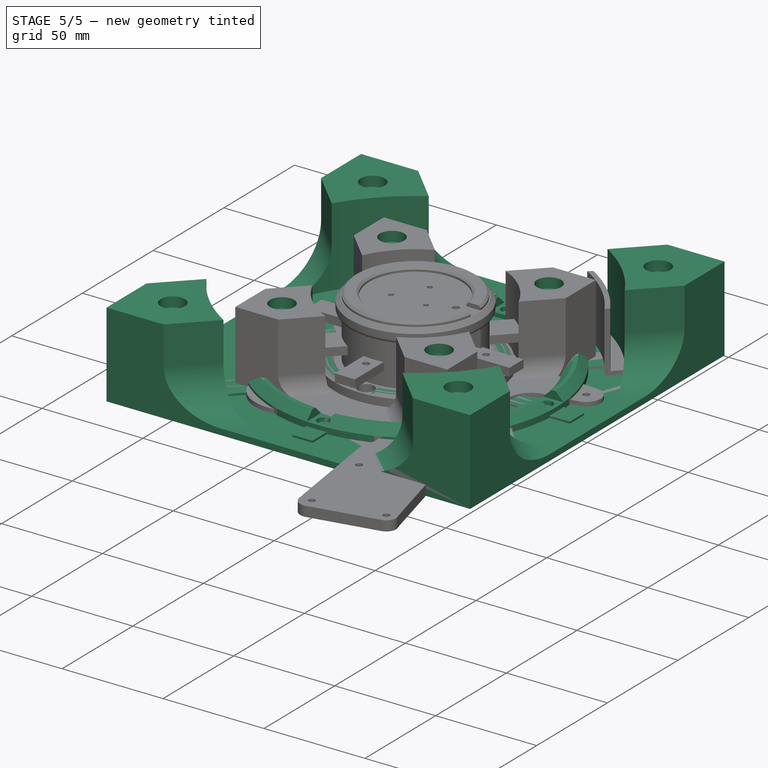
[diagram: stage 5 of 5 — iso view after this stage's code; geometry added in this stage tinted green]
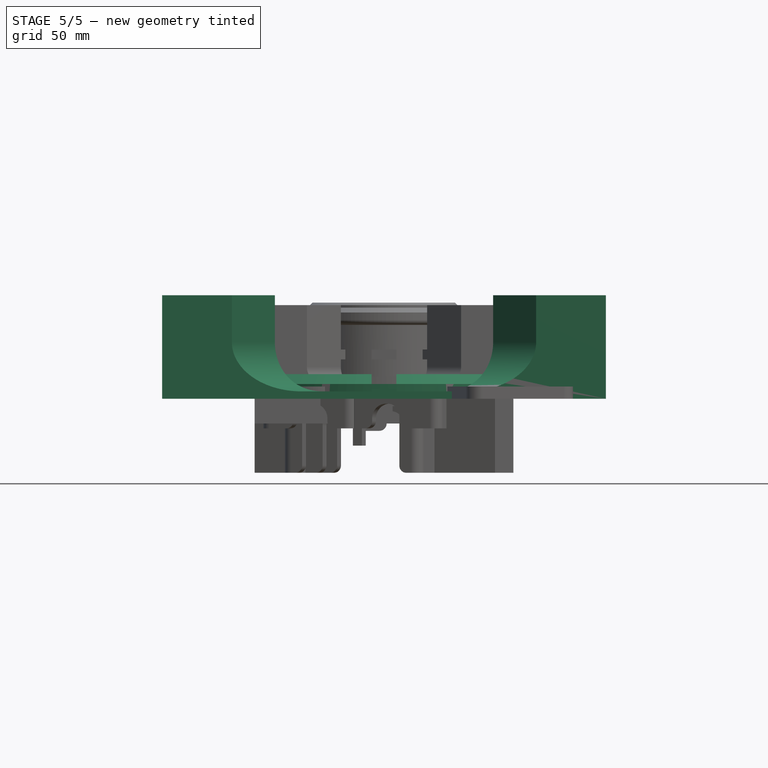
[diagram: stage 5 of 5 — front view after this stage's code; geometry added in this stage tinted green]
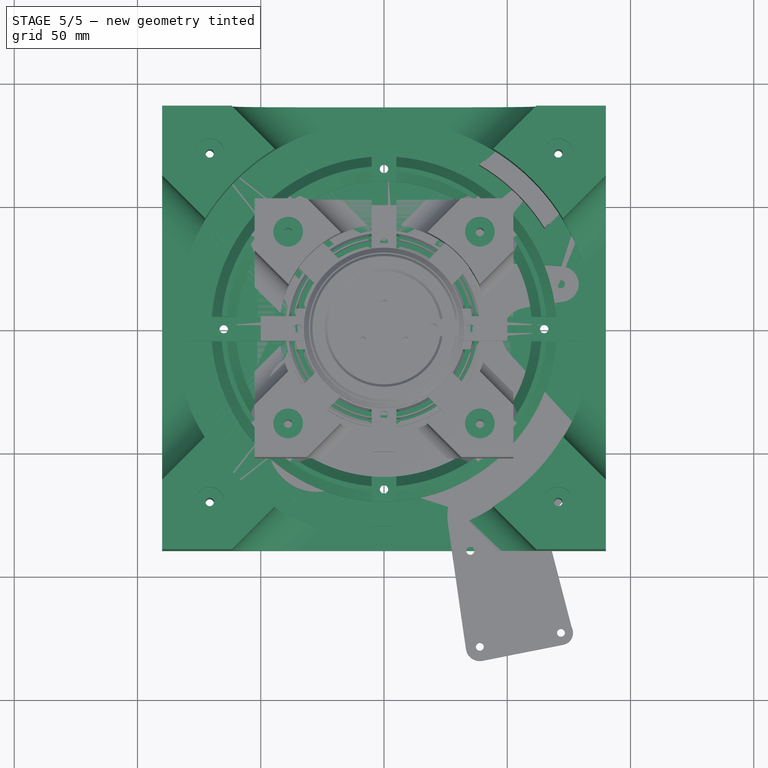
[diagram: stage 5 of 5 — top view after this stage's code; geometry added in this stage tinted green]
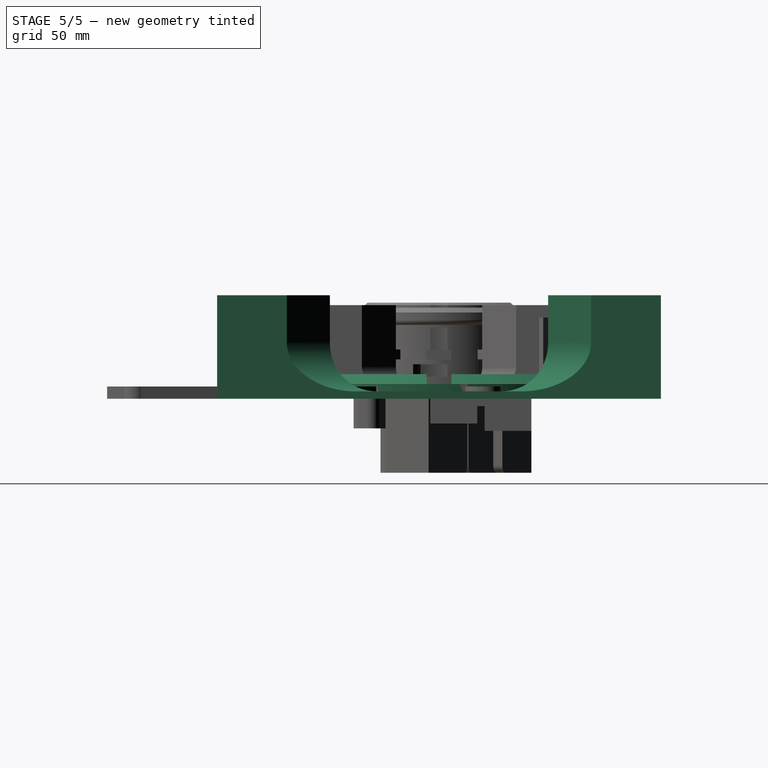
[diagram: stage 5 of 5 — right view after this stage's code; geometry added in this stage tinted green]
FEATURE [Sketcher::SketchObject] Sketch
  ArcFitTolerance = 1e-06
  AttachmentSupport = -> [XY_Plane]
  FullyConstrained = false
  MakeInternals = false
  MapMode = 5
  sketch-geometry (6):
    g0: Circle CenterX=0 CenterY=0 CenterZ=0 NormalX=0 NormalY=0 NormalZ=1 AngleXU=0 Radius=40
    g1: Circle CenterX=0 CenterY=0 CenterZ=0 NormalX=0 NormalY=0 NormalZ=1 AngleXU=0 Radius=35
    g2: Circle CenterX=0 CenterY=37.5 CenterZ=0 NormalX=0 NormalY=0 NormalZ=1 AngleXU=0 Radius=1.7
    g3: Circle CenterX=37.5 CenterY=0 CenterZ=0 NormalX=0 NormalY=0 NormalZ=1 AngleXU=0 Radius=1.7
    g4: Circle CenterX=0 CenterY=-37.5 CenterZ=0 NormalX=0 NormalY=0 NormalZ=1 AngleXU=0 Radius=1.7
    g5: Circle CenterX=-37.5 CenterY=0 CenterZ=0 NormalX=0 NormalY=0 NormalZ=1 AngleXU=0 Radius=1.7
  constraints (15):
    c: Diameter(g0) = 80
    c: Coincident(g0,g-1)
    c: Diameter(g2) = 3.4
    c: PointOnObject(g2,g-2)
    c: Diameter(g3) = 3.4
    c: PointOnObject(g3,g-1)
    c: Diameter(g4) = 3.4
    c: PointOnObject(g4,g-2)
    c: Diameter(g5) = 3.4
    c: PointOnObject(g5,g-1)
    c: DistanceX(g5,g-1) = 37.5
    c: DistanceX(g-1,g3) = 37.5
    c: DistanceY(g4,g-1) = 37.5
    c: DistanceY(g-1,g2) = 37.5
    c: Diameter(g1) = 70
FEATURE [PartDesign::Pad] Pad
  Direction = (0,0,1)
  Length = 5
  Length2 = 10
  Profile = -> Sketch
  ReferenceAxis = -> Sketch [N_Axis]
  Refine = true
  Suppressed = false
  Type = 0
FEATURE [PartDesign::Pad] Pad001
  BaseFeature = -> Pad
  Direction = (0,0,1)
  Length = 5
  Length2 = 10
  Profile = -> Pad [Face8]
  Refine = true
  Suppressed = false
  Type = 0
FEATURE [Sketcher::SketchObject] Sketch001
  ArcFitTolerance = 1e-06
  AttachmentSupport = -> [Pad001]
  FullyConstrained = true
  MakeInternals = false
  MapMode = 5
  Placement = pos=(0,0,10) rot=(0,0,1;0rad)
  sketch-geometry (4):
    g0: Circle CenterX=0 CenterY=65 CenterZ=0 NormalX=0 NormalY=0 NormalZ=1 AngleXU=0 Radius=4
    g1: Circle CenterX=0 CenterY=65 CenterZ=0 NormalX=0 NormalY=0 NormalZ=1 AngleXU=0 Radius=4
    g2: Circle CenterX=0 CenterY=65 CenterZ=0 NormalX=0 NormalY=0 NormalZ=1 AngleXU=0 Radius=4
    g3: Circle CenterX=0 CenterY=65 CenterZ=0 NormalX=0 NormalY=0 NormalZ=1 AngleXU=0 Radius=4
  constraints (8):
    c: Diameter(g0) = 8
    c: Coincident(g0,g-3)
    c: Diameter(g1) = 8
    c: Coincident(g1,g-4)
    c: Diameter(g2) = 8
    c: Coincident(g2,g-6)
    c: Diameter(g3) = 8
    c: Coincident(g3,g-5)
FEATURE [PartDesign::Hole] Hole
  BaseFeature = -> Pad001
  CustomThreadClearance = 0
  Depth = 7
  DepthType = 0
  Diameter = 6
  DrillForDepth = false
  DrillPoint = 1
  DrillPointAngle = 118
  HoleCutCountersinkAngle = 90
  HoleCutCustomValues = false
  HoleCutDepth = 0
  HoleCutDiameter = 6.1
  HoleCutType = 0
  ModelThread = false
  Profile = -> Sketch001
  Refine = true
  Suppressed = false
  Tapered = false
  TaperedAngle = 90
  ThreadClass = 0
  ThreadDepth = 7
  ThreadDepthType = 0
  ThreadDirection = 0
  ThreadFit = 0
  ThreadSize = 0
  ThreadType = 0
  Threaded = false
  UseCustomThreadClearance = false
FEATURE [Sketcher::SketchObject] Sketch002
  ArcFitTolerance = 1e-06
  AttachmentSupport = -> [Hole]
  FullyConstrained = true
  MakeInternals = false
  MapMode = 5
  Placement = pos=(0,0,10) rot=(0,0,1;0rad)
  sketch-geometry (5):
    g0: LineSegment StartX=-80 StartY=-5 StartZ=0 EndX=80 EndY=-5 EndZ=0
    g1: LineSegment StartX=80 StartY=-5 StartZ=0 EndX=80 EndY=5 EndZ=0
    g2: LineSegment StartX=80 StartY=5 StartZ=0 EndX=-80 EndY=5 EndZ=0
    g3: LineSegment StartX=-80 StartY=5 StartZ=0 EndX=-80 EndY=-5 EndZ=0
    g4: GeomPoint [constr] X=0 Y=0 Z=0
  constraints (12):
    c: Coincident(g0,g1)
    c: Coincident(g1,g2)
    c: Coincident(g2,g3)
    c: Coincident(g3,g0)
    c: Horizontal(g0)
    c: Horizontal(g2)
    c: Vertical(g1)
    c: Vertical(g3)
    c: Symmetric(g2,g0,g4)
    c: Distance(g1,g3) = 160
    c: Distance(g0,g2) = 10
    c: Coincident(g4,g-1)
FEATURE [PartDesign::Pocket] Pocket
  BaseFeature = -> Hole
  Direction = (0,0,-1)
  Length = 3
  Length2 = 5
  Profile = -> Sketch002
  ReferenceAxis = -> Sketch002 [N_Axis]
  Refine = true
  Suppressed = false
  Type = 0
FEATURE [Sketcher::SketchObject] Sketch003
  ArcFitTolerance = 1e-06
  AttachmentSupport = -> [Pocket]
  FullyConstrained = true
  MakeInternals = false
  MapMode = 5
  Placement = pos=(0,0,10) rot=(0,0,1;0rad)
  sketch-geometry (5):
    g0: LineSegment StartX=-5 StartY=-80 StartZ=0 EndX=5 EndY=-80 EndZ=0
    g1: LineSegment StartX=5 StartY=-80 StartZ=0 EndX=5 EndY=80 EndZ=0
    g2: LineSegment StartX=5 StartY=80 StartZ=0 EndX=-5 EndY=80 EndZ=0
    g3: LineSegment StartX=-5 StartY=80 StartZ=0 EndX=-5 EndY=-80 EndZ=0
    g4: GeomPoint [constr] X=0 Y=0 Z=0
  constraints (12):
    c: Coincident(g0,g1)
    c: Coincident(g1,g2)
    c: Coincident(g2,g3)
    c: Coincident(g3,g0)
    c: Horizontal(g0)
    c: Horizontal(g2)
    c: Vertical(g1)
    c: Vertical(g3)
    c: Symmetric(g2,g0,g4)
    c: Distance(g1,g3) = 10
    c: Distance(g0,g2) = 160
    c: Coincident(g4,g-1)
FEATURE [PartDesign::Pocket] Pocket001
  BaseFeature = -> Pocket
  Direction = (0,0,-1)
  Length = 3
  Length2 = 5
  Profile = -> Sketch003
  ReferenceAxis = -> Sketch003 [N_Axis]
  Refine = true
  Suppressed = false
  Type = 0
FEATURE [PartDesign::Pocket] Pocket002
  BaseFeature = -> Pocket001
  Direction = (0,0,-1)
  Length = 1
  Length2 = 5
  Profile = -> Pocket001 [Face6,Face17,Face8,Face13]
  Refine = true
  Suppressed = false
  Type = 0
FEATURE [Sketcher::SketchObject] Sketch004
  ArcFitTolerance = 1e-06
  AttachmentSupport = -> [XY_Plane001]
  FullyConstrained = false
  MakeInternals = false
  MapMode = 5
  sketch-geometry (6):
    g0: Circle CenterX=0 CenterY=0 CenterZ=0 NormalX=0 NormalY=0 NormalZ=1 AngleXU=0 Radius=70
    g1: Circle CenterX=0 CenterY=0 CenterZ=0 NormalX=0 NormalY=0 NormalZ=1 AngleXU=0 Radius=60
    g2: Circle CenterX=0 CenterY=65 CenterZ=0 NormalX=0 NormalY=0 NormalZ=1 AngleXU=0 Radius=1.7
    g3: Circle CenterX=65 CenterY=0 CenterZ=0 NormalX=0 NormalY=0 NormalZ=1 AngleXU=0 Radius=1.7
    g4: Circle CenterX=0 CenterY=-65 CenterZ=0 NormalX=0 NormalY=0 NormalZ=1 AngleXU=0 Radius=1.7
    g5: Circle CenterX=-65 CenterY=0 CenterZ=0 NormalX=0 NormalY=0 NormalZ=1 AngleXU=0 Radius=1.7
  constraints (14):
    c: Diameter(g0) = 140
    c: Coincident(g0,g-1)
    c: Diameter(g2) = 3.4
    c: PointOnObject(g2,g-2)
    c: Diameter(g3) = 3.4
    c: PointOnObject(g3,g-1)
    c: Diameter(g4) = 3.4
    c: PointOnObject(g4,g-2)
    c: Diameter(g5) = 3.4
    c: PointOnObject(g5,g-1)
    c: DistanceX(g5,g-1) = 65
    c: DistanceX(g-1,g3) = 65
    c: DistanceY(g4,g-1) = 65
    c: DistanceY(g-1,g2) = 65
FEATURE [PartDesign::Pad] Pad002
  Direction = (0,0,1)
  Length = 5
  Length2 = 10
  Profile = -> Sketch004
  ReferenceAxis = -> Sketch004 [N_Axis]
  Refine = true
  Suppressed = false
  Type = 0
FEATURE [PartDesign::Pad] Pad003
  BaseFeature = -> Pad002
  Direction = (0,0,1)
  Length = 5
  Length2 = 10
  Profile = -> Pad002 [Face8]
  Refine = true
  Suppressed = false
  Type = 0
FEATURE [Sketcher::SketchObject] Sketch005
  ArcFitTolerance = 1e-06
  AttachmentSupport = -> [Pad003]
  ExternalGeometry = -> [Pad003]
  FullyConstrained = true
  MakeInternals = false
  MapMode = 5
  Placement = pos=(0,0,10) rot=(0,0,1;0rad)
  sketch-geometry (4):
    g0: Circle CenterX=0 CenterY=65 CenterZ=0 NormalX=0 NormalY=0 NormalZ=1 AngleXU=0 Radius=4
    g1: Circle CenterX=65 CenterY=0 CenterZ=0 NormalX=0 NormalY=0 NormalZ=1 AngleXU=0 Radius=4
    g2: Circle CenterX=-65 CenterY=0 CenterZ=0 NormalX=0 NormalY=0 NormalZ=1 AngleXU=0 Radius=4
    g3: Circle CenterX=0 CenterY=-65 CenterZ=0 NormalX=0 NormalY=0 NormalZ=1 AngleXU=0 Radius=4
  constraints (8):
    c: Diameter(g0) = 8
    c: Coincident(g0,g-3)
    c: Diameter(g1) = 8
    c: Coincident(g1,g-4)
    c: Diameter(g2) = 8
    c: Coincident(g2,g-6)
    c: Diameter(g3) = 8
    c: Coincident(g3,g-5)
FEATURE [PartDesign::Hole] Hole001
  BaseFeature = -> Pad003
  CustomThreadClearance = 0
  Depth = 7
  DepthType = 0
  Diameter = 6
  DrillForDepth = false
  DrillPoint = 1
  DrillPointAngle = 118
  HoleCutCountersinkAngle = 90
  HoleCutCustomValues = false
  HoleCutDepth = 0
  HoleCutDiameter = 6.1
  HoleCutType = 0
  ModelThread = false
  Profile = -> Sketch005
  Refine = true
  Suppressed = false
  Tapered = false
  TaperedAngle = 90
  ThreadClass = 0
  ThreadDepth = 7
  ThreadDepthType = 0
  ThreadDirection = 0
  ThreadFit = 0
  ThreadSize = 0
  ThreadType = 0
  Threaded = false
  UseCustomThreadClearance = false
FEATURE [Sketcher::SketchObject] Sketch006
  ArcFitTolerance = 1e-06
  AttachmentSupport = -> [Hole001]
  FullyConstrained = true
  MakeInternals = false
  MapMode = 5
  Placement = pos=(0,0,10) rot=(0,0,1;0rad)
  sketch-geometry (5):
    g0: LineSegment StartX=-80 StartY=-5 StartZ=0 EndX=80 EndY=-5 EndZ=0
    g1: LineSegment StartX=80 StartY=-5 StartZ=0 EndX=80 EndY=5 EndZ=0
    g2: LineSegment StartX=80 StartY=5 StartZ=0 EndX=-80 EndY=5 EndZ=0
    g3: LineSegment StartX=-80 StartY=5 StartZ=0 EndX=-80 EndY=-5 EndZ=0
    g4: GeomPoint [constr] X=0 Y=0 Z=0
  constraints (12):
    c: Coincident(g0,g1)
    c: Coincident(g1,g2)
    c: Coincident(g2,g3)
    c: Coincident(g3,g0)
    c: Horizontal(g0)
    c: Horizontal(g2)
    c: Vertical(g1)
    c: Vertical(g3)
    c: Symmetric(g2,g0,g4)
    c: Distance(g1,g3) = 160
    c: Distance(g0,g2) = 10
    c: Coincident(g4,g-1)
FEATURE [PartDesign::Pocket] Pocket003
  BaseFeature = -> Hole001
  Direction = (0,0,-1)
  Length = 3
  Length2 = 5
  Profile = -> Sketch006
  ReferenceAxis = -> Sketch006 [N_Axis]
  Refine = true
  Suppressed = false
  Type = 0
FEATURE [Sketcher::SketchObject] Sketch007
  ArcFitTolerance = 1e-06
  AttachmentSupport = -> [Pocket003]
  FullyConstrained = true
  MakeInternals = false
  MapMode = 5
  Placement = pos=(0,0,10) rot=(0,0,1;0rad)
  sketch-geometry (5):
    g0: LineSegment StartX=-5 StartY=-80 StartZ=0 EndX=5 EndY=-80 EndZ=0
    g1: LineSegment StartX=5 StartY=-80 StartZ=0 EndX=5 EndY=80 EndZ=0
    g2: LineSegment StartX=5 StartY=80 StartZ=0 EndX=-5 EndY=80 EndZ=0
    g3: LineSegment StartX=-5 StartY=80 StartZ=0 EndX=-5 EndY=-80 EndZ=0
    g4: GeomPoint [constr] X=0 Y=0 Z=0
  constraints (12):
    c: Coincident(g0,g1)
    c: Coincident(g1,g2)
    c: Coincident(g2,g3)
    c: Coincident(g3,g0)
    c: Horizontal(g0)
    c: Horizontal(g2)
    c: Vertical(g1)
    c: Vertical(g3)
    c: Symmetric(g2,g0,g4)
    c: Distance(g1,g3) = 10
    c: Distance(g0,g2) = 160
    c: Coincident(g4,g-1)
FEATURE [PartDesign::Pocket] Pocket004
  BaseFeature = -> Pocket003
  Direction = (0,0,-1)
  Length = 3
  Length2 = 5
  Profile = -> Sketch007
  ReferenceAxis = -> Sketch007 [N_Axis]
  Refine = true
  Suppressed = false
  Type = 0
FEATURE [PartDesign::Pocket] Pocket005
  BaseFeature = -> Pocket004
  Direction = (0,0,-1)
  Length = 1
  Length2 = 5
  Profile = -> Pocket004 [Face6,Face17,Face8,Face13]
  Refine = true
  Suppressed = false
  Type = 0
FEATURE [PartDesign::Chamfer] Chamfer001
  Angle = 45
  Base = -> Pocket005 [Edge4,Edge2,Edge18,Edge36,Edge22,Edge40,Edge29,Edge11]
  BaseFeature = -> Pocket005
  ChamferType = 0
  FlipDirection = false
  Refine = true
  Size = 4
  Size2 = 1
  SupportTransform = false
  Suppressed = false
  UseAllEdges = false
FEATURE [PartDesign::Body] Body001  label="RingDist_120_130_141"
  AllowCompound = false
  Group = -> [Sketch004,Pad002,Pad003,Sketch005,Hole001,Sketch006,Pocket003,Sketch007,Pocket004,Pocket005,Chamfer001]
  Origin = -> Origin001
  Tip = -> Chamfer001
FEATURE [PartDesign::Chamfer] Chamfer
  Angle = 45
  Base = -> Pocket002 [Edge18,Edge36,Edge22,Edge40,Edge11,Edge29,Edge4,Edge2]
  BaseFeature = -> Pocket002
  ChamferType = 0
  FlipDirection = false
  Refine = true
  Size = 2
  Size2 = 1
  SupportTransform = false
  Suppressed = false
  UseAllEdges = false
FEATURE [Sketcher::SketchObject] Sketch008
  ArcFitTolerance = 1e-06
  AttachmentSupport = -> [Chamfer]
  ExternalGeometry = -> [Chamfer]
  FullyConstrained = true
  MakeInternals = false
  MapMode = 5
  Placement = pos=(0,0,6) rot=(0,0,1;0rad)
FEATURE [PartDesign::Body] Body  label="RingDist_120_130_140_kl"
  AllowCompound = false
  Group = -> [Sketch,Pad,Pad001,Sketch001,Hole,Sketch002,Pocket,Sketch003,Pocket001,Pocket002,Chamfer,Sketch008]
  Origin = -> Origin
  Tip = -> Chamfer
FEATURE [Sketcher::SketchObject] Sketch009
  ArcFitTolerance = 1e-06
  AttachmentSupport = -> [XY_Plane002]
  FullyConstrained = true
  MakeInternals = false
  MapMode = 5
  sketch-geometry (2):
    g0: Circle CenterX=0 CenterY=0 CenterZ=0 NormalX=0 NormalY=0 NormalZ=1 AngleXU=0 Radius=30
    g1: Circle CenterX=0 CenterY=0 CenterZ=0 NormalX=0 NormalY=0 NormalZ=1 AngleXU=0 Radius=40
  constraints (4):
    c: Diameter(g0) = 60
    c: Coincident(g0,g-1)
    c: Diameter(g1) = 80
    c: Coincident(g1,g0)
FEATURE [PartDesign::Pad] Pad004
  Direction = (0,0,1)
  Length = 10
  Length2 = 10
  Profile = -> Sketch009
  ReferenceAxis = -> Sketch009 [N_Axis]
  Refine = true
  Suppressed = false
  Type = 0
FEATURE [Sketcher::SketchObject] Sketch010
  ArcFitTolerance = 1e-06
  AttachmentSupport = -> [Pad004]
  FullyConstrained = false
  MakeInternals = false
  MapMode = 5
  Placement = pos=(0,0,10) rot=(0,0,1;0rad)
  sketch-geometry (5):
    g0: LineSegment StartX=-60 StartY=8.33744 StartZ=0 EndX=-60 EndY=-8.33744 EndZ=0
    g1: LineSegment StartX=-60 StartY=-8.33744 StartZ=0 EndX=60 EndY=-8.33744 EndZ=0
    g2: LineSegment StartX=60 StartY=-8.33744 StartZ=0 EndX=60 EndY=8.33744 EndZ=0
    g3: LineSegment StartX=60 StartY=8.33744 StartZ=0 EndX=-60 EndY=8.33744 EndZ=0
    g4: GeomPoint [constr] X=0 Y=0 Z=0
  constraints (11):
    c: Coincident(g0,g1)
    c: Coincident(g1,g2)
    c: Coincident(g2,g3)
    c: Coincident(g3,g0)
    c: Vertical(g0)
    c: Vertical(g2)
    c: Horizontal(g1)
    c: Horizontal(g3)
    c: Symmetric(g2,g0,g4)
    c: Distance(g0,g2) = 120
    c: Coincident(g4,g-1)
FEATURE [PartDesign::Pocket] Pocket006
  BaseFeature = -> Pad004
  Direction = (0,0,-1)
  Length = 4
  Length2 = 5
  Profile = -> Sketch010
  ReferenceAxis = -> Sketch010 [N_Axis]
  Refine = true
  Suppressed = false
  Type = 0
FEATURE [Sketcher::SketchObject] Sketch011
  ArcFitTolerance = 1e-06
  AttachmentSupport = -> [Pocket006]
  FullyConstrained = true
  MakeInternals = false
  MapMode = 5
  Placement = pos=(0,0,10) rot=(0,0,1;0rad)
  sketch-geometry (5):
    g0: LineSegment StartX=-5 StartY=-60 StartZ=0 EndX=5 EndY=-60 EndZ=0
    g1: LineSegment StartX=5 StartY=-60 StartZ=0 EndX=5 EndY=60 EndZ=0
    g2: LineSegment StartX=5 StartY=60 StartZ=0 EndX=-5 EndY=60 EndZ=0
    g3: LineSegment StartX=-5 StartY=60 StartZ=0 EndX=-5 EndY=-60 EndZ=0
    g4: GeomPoint [constr] X=0 Y=0 Z=0
  constraints (12):
    c: Coincident(g0,g1)
    c: Coincident(g1,g2)
    c: Coincident(g2,g3)
    c: Coincident(g3,g0)
    c: Horizontal(g0)
    c: Horizontal(g2)
    c: Vertical(g1)
    c: Vertical(g3)
    c: Symmetric(g2,g0,g4)
    c: Distance(g1,g3) = 10
    c: Distance(g0,g2) = 120
    c: Coincident(g4,g-1)
FEATURE [PartDesign::Pocket] Pocket007
  BaseFeature = -> Pocket006
  Direction = (0,0,-1)
  Length = 4
  Length2 = 5
  Profile = -> Sketch011
  ReferenceAxis = -> Sketch011 [N_Axis]
  Refine = true
  Suppressed = false
  Type = 0
FEATURE [Sketcher::SketchObject] Sketch012
  ArcFitTolerance = 1e-06
  AttachmentSupport = -> [Pocket007]
  FullyConstrained = false
  MakeInternals = false
  MapMode = 5
  Placement = pos=(0,0,6) rot=(0,0,1;0rad)
  sketch-geometry (4):
    g0: Circle CenterX=-35 CenterY=0 CenterZ=0 NormalX=0 NormalY=0 NormalZ=1 AngleXU=0 Radius=1.7
    g1: Circle CenterX=0 CenterY=-35 CenterZ=0 NormalX=0 NormalY=0 NormalZ=1 AngleXU=0 Radius=1.7
    g2: Circle CenterX=35 CenterY=0 CenterZ=0 NormalX=0 NormalY=0 NormalZ=1 AngleXU=0 Radius=1.7
    g3: Circle CenterX=0 CenterY=35 CenterZ=0 NormalX=0 NormalY=0 NormalZ=1 AngleXU=0 Radius=1.7
  constraints (9):
    c: PointOnObject(g1,g-2)
    c: PointOnObject(g2,g-1)
    c: PointOnObject(g3,g-2)
    c: Diameter(g0) = 3.4
    c: Diameter(g1) = 3.4
    c: Diameter(g2) = 3.4
    c: Diameter(g3) = 3.4
    c: DistanceX(g0,g-1) = 35
    c: PointOnObject(g0,g-1)
FEATURE [PartDesign::Pocket] Pocket008
  BaseFeature = -> Pocket007
  Direction = (0,0,-1)
  Length = 9
  Length2 = 5
  Profile = -> Sketch012
  ReferenceAxis = -> Sketch012 [N_Axis]
  Refine = true
  Suppressed = false
  Type = 0
FEATURE [Sketcher::SketchObject] Sketch013
  ArcFitTolerance = 1e-06
  AttachmentSupport = -> [Pocket008]
  ExternalGeometry = -> [Pocket008]
  FullyConstrained = true
  MakeInternals = false
  MapMode = 5
  Placement = pos=(0,0,6) rot=(0,0,1;0rad)
  sketch-geometry (4):
    g0: Circle CenterX=0 CenterY=35 CenterZ=0 NormalX=0 NormalY=0 NormalZ=1 AngleXU=0 Radius=4
    g1: Circle CenterX=35 CenterY=0 CenterZ=0 NormalX=0 NormalY=0 NormalZ=1 AngleXU=0 Radius=4
    g2: Circle CenterX=-35 CenterY=0 CenterZ=0 NormalX=0 NormalY=0 NormalZ=1 AngleXU=0 Radius=4
    g3: Circle CenterX=0 CenterY=-35 CenterZ=0 NormalX=0 NormalY=0 NormalZ=1 AngleXU=0 Radius=4
  constraints (8):
    c: Diameter(g0) = 8
    c: Coincident(g0,g-3)
    c: Diameter(g1) = 8
    c: Coincident(g1,g-4)
    c: Diameter(g2) = 8
    c: Coincident(g2,g-6)
    c: Diameter(g3) = 8
    c: Coincident(g3,g-5)
FEATURE [PartDesign::Pocket] Pocket009
  BaseFeature = -> Pocket008
  Direction = (0,0,-1)
  Length = 4
  Length2 = 5
  Profile = -> Sketch013
  ReferenceAxis = -> Sketch013 [N_Axis]
  Refine = true
  Suppressed = false
  Type = 0
FEATURE [PartDesign::Chamfer] Chamfer002
  Angle = 45
  Base = -> Pocket009 [Edge46,Edge55,Edge28,Edge37,Edge8,Edge12,Edge16,Edge4]
  BaseFeature = -> Pocket009
  ChamferType = 0
  FlipDirection = false
  Refine = true
  Size = 4
  Size2 = 1
  SupportTransform = false
  Suppressed = false
  UseAllEdges = false
FEATURE [PartDesign::Body] Body002  label="RingDist_60_70_80"
  AllowCompound = false
  Group = -> [Sketch009,Pad004,Sketch010,Pocket006,Sketch011,Pocket007,Sketch012,Pocket008,Sketch013,Pocket009,Chamfer002]
  Origin = -> Origin002
  Tip = -> Chamfer002
FEATURE [Sketcher::SketchObject] Sketch014
  ArcFitTolerance = 1e-06
  AttachmentSupport = -> [XY_Plane003]
  FullyConstrained = false
  MakeInternals = false
  MapMode = 5
  sketch-geometry (15):
    g0: LineSegment StartX=-90 StartY=-90 StartZ=0 EndX=90 EndY=-90 EndZ=0
    g1: LineSegment StartX=90 StartY=-90 StartZ=0 EndX=90 EndY=90 EndZ=0
    g2: LineSegment StartX=90 StartY=90 StartZ=0 EndX=-90 EndY=90 EndZ=0
    g3: LineSegment StartX=-90 StartY=90 StartZ=0 EndX=-90 EndY=-90 EndZ=0
    g4: GeomPoint [constr] X=0 Y=0 Z=0
    g5: Circle [constr] CenterX=0 CenterY=0 CenterZ=0 NormalX=0 NormalY=0 NormalZ=1 AngleXU=0 Radius=35
    g6: Circle [constr] CenterX=0 CenterY=0 CenterZ=0 NormalX=0 NormalY=0 NormalZ=1 AngleXU=0 Radius=65
    g7: Circle CenterX=-65 CenterY=-0.068075 CenterZ=0 NormalX=0 NormalY=0 NormalZ=1 AngleXU=0 Radius=1.7
    g8: Circle CenterX=-35 CenterY=0.040462 CenterZ=0 NormalX=0 NormalY=0 NormalZ=1 AngleXU=0 Radius=1.7
    g9: Circle CenterX=0.028792 CenterY=-35 CenterZ=0 NormalX=0 NormalY=0 NormalZ=1 AngleXU=0 Radius=1.7
    g10: Circle CenterX=0.028897 CenterY=-65 CenterZ=0 NormalX=0 NormalY=0 NormalZ=1 AngleXU=0 Radius=1.7
    g11: Circle CenterX=35 CenterY=0.028178 CenterZ=0 NormalX=0 NormalY=0 NormalZ=1 AngleXU=0 Radius=1.7
    g12: Circle CenterX=65 CenterY=0.028103 CenterZ=0 NormalX=0 NormalY=0 NormalZ=1 AngleXU=0 Radius=1.7
    g13: Circle CenterX=-0.009154 CenterY=65 CenterZ=0 NormalX=0 NormalY=0 NormalZ=1 AngleXU=0 Radius=1.7
    g14: Circle CenterX=-0.00915 CenterY=35 CenterZ=0 NormalX=0 NormalY=0 NormalZ=1 AngleXU=0 Radius=1.7
  constraints (32):
    c: Coincident(g0,g1)
    c: Coincident(g1,g2)
    c: Coincident(g2,g3)
    c: Coincident(g3,g0)
    c: Horizontal(g0)
    c: Horizontal(g2)
    c: Vertical(g1)
    c: Vertical(g3)
    c: Symmetric(g2,g0,g4)
    c: Distance(g1,g3) = 180
    c: Distance(g0,g2) = 180
    c: Coincident(g4,g-1)
    c: Diameter(g5) = 70
    c: Coincident(g5,g4)
    c: Diameter(g6) = 130
    c: Coincident(g6,g4)
    c: Diameter(g7) = 3.4
    c: PointOnObject(g7,g6)
    c: Diameter(g8) = 3.4
    c: PointOnObject(g8,g5)
    c: Diameter(g9) = 3.4
    c: PointOnObject(g9,g5)
    c: Diameter(g10) = 3.4
    c: PointOnObject(g10,g6)
    c: Diameter(g11) = 3.4
    c: PointOnObject(g11,g5)
    c: Diameter(g12) = 3.4
    c: PointOnObject(g12,g6)
    c: Diameter(g13) = 3.4
    c: PointOnObject(g13,g6)
    c: Diameter(g14) = 3.4
    c: PointOnObject(g14,g5)
FEATURE [PartDesign::Pad] Pad005
  Direction = (0,0,1)
  Length = 3
  Length2 = 10
  Profile = -> Sketch014
  ReferenceAxis = -> Sketch014 [N_Axis]
  Refine = true
  Suppressed = false
  Type = 0
FEATURE [Sketcher::SketchObject] Sketch015
  ArcFitTolerance = 1e-06
  AttachmentSupport = -> [Pad005]
  ExternalGeometry = -> [Pad005]
  FullyConstrained = true
  MakeInternals = false
  MapMode = 5
  Placement = pos=(0,0,3) rot=(0,0,1;0rad)
  sketch-geometry (12):
    g0: Circle [constr] CenterX=0 CenterY=0 CenterZ=0 NormalX=0 NormalY=0 NormalZ=1 AngleXU=0 Radius=25
    g1: Circle [constr] CenterX=0 CenterY=0 CenterZ=0 NormalX=0 NormalY=0 NormalZ=1 AngleXU=0 Radius=50
    g2: Circle [constr] CenterX=0 CenterY=0 CenterZ=0 NormalX=0 NormalY=0 NormalZ=1 AngleXU=0 Radius=40
    g3: Circle [constr] CenterX=0 CenterY=0 CenterZ=0 NormalX=0 NormalY=0 NormalZ=1 AngleXU=0 Radius=82.5
    g4: LineSegment [constr] StartX=-90 StartY=-90 StartZ=0 EndX=90 EndY=90 EndZ=0
    g5: LineSegment [constr] StartX=-90 StartY=90 StartZ=0 EndX=90 EndY=-90 EndZ=0
    g6: Circle CenterX=0 CenterY=0 CenterZ=0 NormalX=0 NormalY=0 NormalZ=1 AngleXU=0 Radius=85
    g7: LineSegment StartX=-90 StartY=90 StartZ=0 EndX=-90 EndY=-90 EndZ=0
    g8: LineSegment StartX=-90 StartY=-90 StartZ=0 EndX=90 EndY=-90 EndZ=0
    g9: LineSegment StartX=90 StartY=-90 StartZ=0 EndX=90 EndY=90 EndZ=0
    g10: LineSegment StartX=90 StartY=90 StartZ=0 EndX=-90 EndY=90 EndZ=0
    g11: GeomPoint [constr] X=0 Y=0 Z=0
  constraints (25):
    c: Diameter(g0) = 50
    c: Coincident(g0,g-1)
    c: Diameter(g1) = 100
    c: Coincident(g1,g0)
    c: Diameter(g2) = 80
    c: Coincident(g2,g0)
    c: Diameter(g3) = 165
    c: Coincident(g3,g0)
    c: Coincident(g4,g-6)
    c: Coincident(g4,g-5)
    c: Coincident(g5,g-4)
    c: Coincident(g5,g-6)
    c: Diameter(g6) = 170
    c: Coincident(g6,g0)
    c: Coincident(g7,g8)
    c: Coincident(g8,g9)
    c: Coincident(g9,g10)
    c: Coincident(g10,g7)
    c: Vertical(g7)
    c: Vertical(g9)
    c: Horizontal(g8)
    c: Horizontal(g10)
    c: Symmetric(g9,g7,g11)
    c: Coincident(g11,g0)
    c: Coincident(g8,g5)
FEATURE [PartDesign::Pad] Pad006
  BaseFeature = -> Pad005
  Direction = (0,0,1)
  Length = 30
  Length2 = 10
  Profile = -> Sketch015
  ReferenceAxis = -> Sketch015 [N_Axis]
  Refine = true
  Suppressed = false
  Type = 0
FEATURE [Sketcher::SketchObject] Sketch016
  ArcFitTolerance = 1e-06
  AttachmentSupport = -> [Pad006]
  ExternalGeometry = -> [Pad006]
  FullyConstrained = false
  MakeInternals = false
  MapMode = 5
  Placement = pos=(0,0,33) rot=(0,0,1;0rad)
  sketch-geometry (4):
    g0: LineSegment StartX=-104.142 StartY=-75.8579 StartZ=0 EndX=75.8579 EndY=104.142 EndZ=0
    g1: LineSegment StartX=-75.8579 StartY=-104.142 StartZ=0 EndX=104.142 EndY=75.8579 EndZ=0
    g2: LineSegment StartX=75.8579 StartY=104.142 StartZ=0 EndX=104.142 EndY=75.8579 EndZ=0
    g3: LineSegment StartX=-104.142 StartY=-75.8579 StartZ=0 EndX=-75.8579 EndY=-104.142 EndZ=0
  constraints (4):
    c: Coincident(g2,g0)
    c: Coincident(g2,g1)
    c: Coincident(g3,g0)
    c: Coincident(g3,g1)
FEATURE [PartDesign::Pocket] Pocket010
  BaseFeature = -> Pad006
  Direction = (0,0,-1)
  Length = 1
  Length2 = 5
  Profile = -> Sketch016
  ReferenceAxis = -> Sketch016 [N_Axis]
  Refine = true
  Suppressed = false
  Type = 0
FEATURE [Sketcher::SketchObject] Sketch017
  ArcFitTolerance = 1e-06
  AttachmentSupport = -> [Pocket010]
  ExternalGeometry = -> [Pocket010]
  FullyConstrained = false
  MakeInternals = false
  MapMode = 5
  Placement = pos=(0,0,33) rot=(0,0,1;0rad)
  sketch-geometry (4):
    g0: LineSegment StartX=-75.8579 StartY=104.142 StartZ=0 EndX=104.142 EndY=-75.8579 EndZ=0
    g1: LineSegment StartX=-104.142 StartY=75.8579 StartZ=0 EndX=75.8579 EndY=-104.142 EndZ=0
    g2: LineSegment StartX=-104.142 StartY=75.8579 StartZ=0 EndX=-75.8579 EndY=104.142 EndZ=0
    g3: LineSegment StartX=75.8579 StartY=-104.142 StartZ=0 EndX=104.142 EndY=-75.8579 EndZ=0
  constraints (4):
    c: Coincident(g2,g1)
    c: Coincident(g2,g0)
    c: Coincident(g3,g1)
    c: Coincident(g3,g0)
FEATURE [PartDesign::Pocket] Pocket011
  BaseFeature = -> Pocket010
  Direction = (0,0,-1)
  Length = 1
  Length2 = 5
  Profile = -> Sketch017
  ReferenceAxis = -> Sketch017 [N_Axis]
  Refine = true
  Suppressed = false
  Type = 0
FEATURE [PartDesign::Pocket] Pocket012
  BaseFeature = -> Pocket011
  Direction = (0,0,-1)
  Length = 30
  Length2 = 5
  Profile = -> Pocket011 [Face16,Face28,Face24,Face20]
  Refine = true
  Suppressed = false
  Type = 0
FEATURE [PartDesign::Pad] Pad007
  BaseFeature = -> Pocket012
  Direction = (0,0,1)
  Length = 10
  Length2 = 10
  Profile = -> Pocket012 [Face14,Face17,Face20,Face23]
  Refine = true
  Suppressed = false
  Type = 0
FEATURE [PartDesign::Fillet] Fillet
  Base = -> Pad007 [Edge29,Edge39,Edge35,Edge33,Edge37,Edge43,Edge41,Edge31]
  BaseFeature = -> Pad007
  Radius = 20
  Refine = true
  SupportTransform = false
  Suppressed = false
  UseAllEdges = false
FEATURE [Sketcher::SketchObject] Sketch018
  ArcFitTolerance = 1e-06
  AttachmentSupport = -> [Fillet]
  FullyConstrained = true
  MakeInternals = false
  MapMode = 5
  Placement = pos=(0,0,42) rot=(0,0,1;0rad)
  sketch-geometry (9):
    g0: Circle [constr] CenterX=0 CenterY=0 CenterZ=0 NormalX=0 NormalY=0 NormalZ=1 AngleXU=0 Radius=100
    g1: LineSegment [constr] StartX=0 StartY=0 StartZ=0 EndX=106.066 EndY=106.066 EndZ=0
    g2: LineSegment [constr] StartX=106.066 StartY=106.066 StartZ=0 EndX=-98.9948 EndY=-98.9951 EndZ=0
    g3: LineSegment [constr] StartX=0 StartY=0 StartZ=0 EndX=-141.421 EndY=141.421 EndZ=0
    g4: LineSegment [constr] StartX=-141.421 StartY=141.421 StartZ=0 EndX=106.066 EndY=-106.066 EndZ=0
    g5: Circle CenterX=-70.7106 CenterY=70.7107 CenterZ=0 NormalX=0 NormalY=0 NormalZ=1 AngleXU=0 Radius=1.7
    g6: Circle CenterX=70.7108 CenterY=-70.7106 CenterZ=0 NormalX=0 NormalY=0 NormalZ=1 AngleXU=0 Radius=1.7
    g7: Circle CenterX=-70.7106 CenterY=-70.7108 CenterZ=0 NormalX=0 NormalY=0 NormalZ=1 AngleXU=0 Radius=1.7
    g8: Circle CenterX=70.7107 CenterY=70.7107 CenterZ=0 NormalX=0 NormalY=0 NormalZ=1 AngleXU=0 Radius=1.7
  constraints (26):
    c: Diameter(g0) = 200
    c: Coincident(g0,g-1)
    c: Distance(g1) = 150
    c: Angle(g-1,g1) = 0.785398
    c: Coincident(g1,g0)
    c: Distance(g2) = 290
    c: Angle(g-1,g2) = -2.35619
    c: Coincident(g2,g1)
    c: Distance(g3) = 200
    c: Angle(g-1,g3) = 2.35619
    c: Coincident(g3,g0)
    c: Distance(g4) = 350
    c: Angle(g-1,g4) = -0.785398
    c: Coincident(g4,g3)
    c: Diameter(g5) = 3.4
    c: PointOnObject(g5,g0)
    c: Diameter(g6) = 3.4
    c: PointOnObject(g6,g0)
    c: Diameter(g7) = 3.4
    c: PointOnObject(g7,g0)
    c: PointOnObject(g6,g4)
    c: PointOnObject(g7,g2)
    c: Diameter(g8) = 3.4
    c: PointOnObject(g8,g0)
    c: PointOnObject(g8,g1)
    c: PointOnObject(g5,g3)
FEATURE [PartDesign::Hole] Hole002
  BaseFeature = -> Fillet
  CustomThreadClearance = 0
  Depth = 521.16
  DepthType = 1
  Diameter = 3.4
  DrillForDepth = false
  DrillPoint = 1
  DrillPointAngle = 118
  HoleCutCountersinkAngle = 90
  HoleCutCustomValues = false
  HoleCutDepth = 5
  HoleCutDiameter = 12
  HoleCutType = 1
  ModelThread = false
  Profile = -> Sketch018
  Refine = true
  Suppressed = false
  Tapered = false
  TaperedAngle = 90
  ThreadClass = 0
  ThreadDepth = 521.16
  ThreadDepthType = 0
  ThreadDirection = 0
  ThreadFit = 0
  ThreadSize = 0
  ThreadType = 0
  Threaded = false
  UseCustomThreadClearance = false
FEATURE [PartDesign::Body] Body003  label="RingPlatte_180_180"
  AllowCompound = false
  Group = -> [Sketch014,Pad005,Sketch015,Pad006,Sketch016,Pocket010,Sketch017,Pocket011,Pocket012,Pad007,Fillet,Sketch018,Hole002]
  Origin = -> Origin003
  Placement = pos=(142.5,-52.5,0) rot=(0,0,1;0rad)
  Tip = -> Hole002
FEATURE [Sketcher::SketchObject] Sketch019
  ArcFitTolerance = 1e-06
  AttachmentSupport = -> [XY_Plane004]
  FullyConstrained = true
  MakeInternals = false
  MapMode = 5
  sketch-geometry (27):
    g0: LineSegment [constr] StartX=-90 StartY=-90 StartZ=0 EndX=90 EndY=-90 EndZ=0
    g1: LineSegment [constr] StartX=90 StartY=-90 StartZ=0 EndX=90 EndY=90 EndZ=0
    g2: LineSegment [constr] StartX=90 StartY=90 StartZ=0 EndX=-90 EndY=90 EndZ=0
    g3: LineSegment [constr] StartX=-90 StartY=90 StartZ=0 EndX=-90 EndY=-90 EndZ=0
    g4: GeomPoint [constr] X=0 Y=0 Z=0
    g5: LineSegment [constr] StartX=-90 StartY=-90 StartZ=0 EndX=90 EndY=90 EndZ=0
    g6: LineSegment [constr] StartX=-90 StartY=90 StartZ=0 EndX=90 EndY=-90 EndZ=0
    g7: Circle [constr] CenterX=0 CenterY=0 CenterZ=0 NormalX=0 NormalY=0 NormalZ=1 AngleXU=0 Radius=100
    g8: Circle [constr] CenterX=0 CenterY=0 CenterZ=0 NormalX=0 NormalY=0 NormalZ=1 AngleXU=0 Radius=35
    g9: Circle [constr] CenterX=0 CenterY=0 CenterZ=0 NormalX=0 NormalY=0 NormalZ=1 AngleXU=0 Radius=65
    g10: Circle CenterX=-70.7107 CenterY=70.7107 CenterZ=0 NormalX=0 NormalY=0 NormalZ=1 AngleXU=0 Radius=1.7
    g11: Circle CenterX=70.7107 CenterY=70.7107 CenterZ=0 NormalX=0 NormalY=0 NormalZ=1 AngleXU=0 Radius=1.7
    g12: Circle CenterX=70.7107 CenterY=-70.7107 CenterZ=0 NormalX=0 NormalY=0 NormalZ=1 AngleXU=0 Radius=1.7
    g13: Circle CenterX=-70.7107 CenterY=-70.7107 CenterZ=0 NormalX=0 NormalY=0 NormalZ=1 AngleXU=0 Radius=1.7
    g14: Circle CenterX=0 CenterY=-65 CenterZ=0 NormalX=0 NormalY=0 NormalZ=1 AngleXU=0 Radius=1.7
    g15: Circle CenterX=0 CenterY=-35 CenterZ=0 NormalX=0 NormalY=0 NormalZ=1 AngleXU=0 Radius=1.7
    g16: Circle CenterX=35 CenterY=0 CenterZ=0 NormalX=0 NormalY=0 NormalZ=1 AngleXU=0 Radius=1.7
    g17: Circle CenterX=65 CenterY=0 CenterZ=0 NormalX=0 NormalY=0 NormalZ=1 AngleXU=0 Radius=1.7
    g18: Circle CenterX=0 CenterY=35 CenterZ=0 NormalX=0 NormalY=0 NormalZ=1 AngleXU=0 Radius=1.7
    g19: Circle CenterX=0 CenterY=65 CenterZ=0 NormalX=0 NormalY=0 NormalZ=1 AngleXU=0 Radius=1.7
    g20: Circle CenterX=-65 CenterY=0 CenterZ=0 NormalX=0 NormalY=0 NormalZ=1 AngleXU=0 Radius=1.7
    g21: Circle CenterX=-35 CenterY=0 CenterZ=0 NormalX=0 NormalY=0 NormalZ=1 AngleXU=0 Radius=1.7
    g22: LineSegment StartX=-90 StartY=-90 StartZ=0 EndX=90 EndY=-90 EndZ=0
    g23: LineSegment StartX=90 StartY=-90 StartZ=0 EndX=90 EndY=90 EndZ=0
    g24: LineSegment StartX=90 StartY=90 StartZ=0 EndX=-90 EndY=90 EndZ=0
    g25: LineSegment StartX=-90 StartY=90 StartZ=0 EndX=-90 EndY=-90 EndZ=0
    g26: GeomPoint [constr] X=0 Y=0 Z=0
  constraints (69):
    c: Coincident(g0,g1)
    c: Coincident(g1,g2)
    c: Coincident(g2,g3)
    c: Coincident(g3,g0)
    c: Horizontal(g0)
    c: Horizontal(g2)
    c: Vertical(g1)
    c: Vertical(g3)
    c: Symmetric(g2,g0,g4)
    c: Distance(g1,g3) = 180
    c: Distance(g0,g2) = 180
    c: Coincident(g4,g-1)
    c: Coincident(g5,g0)
    c: Coincident(g5,g1)
    c: Coincident(g6,g2)
    c: Coincident(g6,g0)
    c: Diameter(g7) = 200
    c: Coincident(g7,g4)
    c: Diameter(g8) = 70
    c: Coincident(g8,g4)
    c: Diameter(g9) = 130
    c: Coincident(g9,g4)
    c: Diameter(g10) = 3.4
    c: PointOnObject(g10,g7)
    c: Diameter(g11) = 3.4
    c: PointOnObject(g11,g7)
    c: Diameter(g12) = 3.4
    c: PointOnObject(g12,g7)
    c: Diameter(g13) = 3.4
    c: PointOnObject(g13,g7)
    c: Diameter(g14) = 3.4
    c: PointOnObject(g14,g9)
    c: Diameter(g15) = 3.4
    c: PointOnObject(g15,g8)
    c: Diameter(g16) = 3.4
    c: PointOnObject(g16,g8)
    c: Diameter(g17) = 3.4
    c: PointOnObject(g17,g9)
    c: Diameter(g18) = 3.4
    c: PointOnObject(g18,g8)
    c: Diameter(g19) = 3.4
    c: PointOnObject(g19,g9)
    c: Diameter(g20) = 3.4
    c: PointOnObject(g20,g9)
    c: Diameter(g21) = 3.4
    c: PointOnObject(g21,g8)
    c: PointOnObject(g10,g6)
    c: PointOnObject(g19,g-2)
    c: PointOnObject(g18,g-2)
    c: PointOnObject(g21,g-1)
    c: PointOnObject(g20,g-1)
    c: PointOnObject(g16,g-1)
    c: PointOnObject(g17,g-1)
    c: PointOnObject(g11,g5)
    c: PointOnObject(g15,g-2)
    c: PointOnObject(g14,g-2)
    c: PointOnObject(g12,g6)
    c: PointOnObject(g13,g5)
    c: Coincident(g22,g23)
    c: Coincident(g23,g24)
    c: Coincident(g24,g25)
    c: Coincident(g25,g22)
    c: Horizontal(g22)
    c: Horizontal(g24)
    c: Vertical(g23)
    c: Vertical(g25)
    c: Symmetric(g24,g22,g26)
    c: Coincident(g26,g4)
    c: Coincident(g23,g1)
FEATURE [PartDesign::Pad] Pad008
  Direction = (0,0,1)
  Length = 10
  Length2 = 10
  Profile = -> Sketch019
  ReferenceAxis = -> Sketch019 [N_Axis]
  Refine = true
  Suppressed = false
  Type = 0
FEATURE [Sketcher::SketchObject] Sketch020
  ArcFitTolerance = 1e-06
  AttachmentSupport = -> [Pad008]
  FullyConstrained = true
  MakeInternals = false
  MapMode = 5
  Placement = pos=(0,0,10) rot=(0,0,1;0rad)
  sketch-geometry (5):
    g0: LineSegment StartX=-80 StartY=-5 StartZ=0 EndX=80 EndY=-5 EndZ=0
    g1: LineSegment StartX=80 StartY=-5 StartZ=0 EndX=80 EndY=5 EndZ=0
    g2: LineSegment StartX=80 StartY=5 StartZ=0 EndX=-80 EndY=5 EndZ=0
    g3: LineSegment StartX=-80 StartY=5 StartZ=0 EndX=-80 EndY=-5 EndZ=0
    g4: GeomPoint [constr] X=0 Y=0 Z=0
  constraints (12):
    c: Coincident(g0,g1)
    c: Coincident(g1,g2)
    c: Coincident(g2,g3)
    c: Coincident(g3,g0)
    c: Horizontal(g0)
    c: Horizontal(g2)
    c: Vertical(g1)
    c: Vertical(g3)
    c: Symmetric(g2,g0,g4)
    c: Distance(g1,g3) = 160
    c: Distance(g0,g2) = 10
    c: Coincident(g4,g-1)
FEATURE [PartDesign::Pocket] Pocket013
  BaseFeature = -> Pad008
  Direction = (0,0,-1)
  Length = 1
  Length2 = 5
  Profile = -> Sketch020
  ReferenceAxis = -> Sketch020 [N_Axis]
  Refine = true
  Suppressed = false
  Type = 0
FEATURE [Sketcher::SketchObject] Sketch021
  ArcFitTolerance = 1e-06
  AttachmentSupport = -> [Pocket013]
  FullyConstrained = true
  MakeInternals = false
  MapMode = 5
  Placement = pos=(0,0,10) rot=(0,0,1;0rad)
  sketch-geometry (5):
    g0: LineSegment StartX=-5 StartY=-80 StartZ=0 EndX=5 EndY=-80 EndZ=0
    g1: LineSegment StartX=5 StartY=-80 StartZ=0 EndX=5 EndY=80 EndZ=0
    g2: LineSegment StartX=5 StartY=80 StartZ=0 EndX=-5 EndY=80 EndZ=0
    g3: LineSegment StartX=-5 StartY=80 StartZ=0 EndX=-5 EndY=-80 EndZ=0
    g4: GeomPoint [constr] X=0 Y=0 Z=0
  constraints (12):
    c: Coincident(g0,g1)
    c: Coincident(g1,g2)
    c: Coincident(g2,g3)
    c: Coincident(g3,g0)
    c: Horizontal(g0)
    c: Horizontal(g2)
    c: Vertical(g1)
    c: Vertical(g3)
    c: Symmetric(g2,g0,g4)
    c: Distance(g1,g3) = 10
    c: Distance(g0,g2) = 160
    c: Coincident(g4,g-1)
FEATURE [PartDesign::Pocket] Pocket014
  BaseFeature = -> Pocket013
  Direction = (0,0,-1)
  Length = 1
  Length2 = 5
  Profile = -> Sketch021
  ReferenceAxis = -> Sketch021 [N_Axis]
  Refine = true
  Suppressed = false
  Type = 0
FEATURE [Sketcher::SketchObject] Sketch022
  ArcFitTolerance = 1e-06
  AttachmentSupport = -> [Pocket014]
  ExternalGeometry = -> [Pocket014]
  FullyConstrained = true
  MakeInternals = false
  MapMode = 5
  Placement = pos=(0,0,10) rot=(0,0,1;0rad)
  sketch-geometry (7):
    g0: Circle [constr] CenterX=0 CenterY=0 CenterZ=0 NormalX=0 NormalY=0 NormalZ=1 AngleXU=0 Radius=110
    g1: LineSegment [constr] StartX=90 StartY=90 StartZ=0 EndX=-90 EndY=-90 EndZ=0
    g2: LineSegment [constr] StartX=-90 StartY=90 StartZ=0 EndX=90 EndY=-90 EndZ=0
    g3: ArcOfCircle CenterX=-77.7817 CenterY=77.7817 CenterZ=0 NormalX=0 NormalY=0 NormalZ=1 AngleXU=0 Radius=10 StartAngle=0.785398 EndAngle=3.92699
    g4: ArcOfCircle CenterX=77.7817 CenterY=-77.7817 CenterZ=0 NormalX=0 NormalY=0 NormalZ=1 AngleXU=0 Radius=10 StartAngle=3.92699 EndAngle=7.06858
    g5: LineSegment StartX=-70.7107 StartY=84.8528 StartZ=0 EndX=84.8528 EndY=-70.7107 EndZ=0
    g6: LineSegment StartX=-84.8528 StartY=70.7107 StartZ=0 EndX=70.7107 EndY=-84.8528 EndZ=0
  constraints (16):
    c: Diameter(g0) = 220
    c: Coincident(g0,g-1)
    c: Coincident(g1,g-5)
    c: Coincident(g1,g-6)
    c: Coincident(g2,g-5)
    c: Coincident(g2,g-6)
    c: Tangent(g3,g5) = 1.5708
    c: Tangent(g3,g6) = -1.5708
    c: Tangent(g4,g5) = 1.5708
    c: Tangent(g4,g6) = -1.5708
    c: Equal(g3,g4)
    c: Radius(g3) = 10
    c: PointOnObject(g3,g0)
    c: PointOnObject(g4,g0)
    c: PointOnObject(g4,g2)
    c: PointOnObject(g3,g2)
FEATURE [PartDesign::Pocket] Pocket015
  BaseFeature = -> Pocket014
  Direction = (0,0,-1)
  Length = 1
  Length2 = 5
  Profile = -> Sketch022
  ReferenceAxis = -> Sketch022 [N_Axis]
  Refine = true
  Suppressed = false
  Type = 0
FEATURE [Sketcher::SketchObject] Sketch023
  ArcFitTolerance = 1e-06
  AttachmentSupport = -> [Pocket015]
  ExternalGeometry = -> [Pocket015]
  FullyConstrained = true
  MakeInternals = false
  MapMode = 5
  Placement = pos=(0,0,10) rot=(0,0,1;0rad)
  sketch-geometry (6):
    g0: Circle [constr] CenterX=0 CenterY=0 CenterZ=0 NormalX=0 NormalY=0 NormalZ=1 AngleXU=0 Radius=110
    g1: LineSegment [constr] StartX=-90 StartY=-90 StartZ=0 EndX=90 EndY=90 EndZ=0
    g2: ArcOfCircle CenterX=-77.7817 CenterY=-77.7817 CenterZ=0 NormalX=0 NormalY=0 NormalZ=1 AngleXU=0 Radius=10 StartAngle=2.35619 EndAngle=5.49779
    g3: ArcOfCircle CenterX=77.7817 CenterY=77.7817 CenterZ=0 NormalX=0 NormalY=0 NormalZ=1 AngleXU=0 Radius=10 StartAngle=5.49779 EndAngle=8.63938
    g4: LineSegment StartX=-84.8528 StartY=-70.7107 StartZ=0 EndX=70.7107 EndY=84.8528 EndZ=0
    g5: LineSegment StartX=-70.7107 StartY=-84.8528 StartZ=0 EndX=84.8528 EndY=70.7107 EndZ=0
  constraints (14):
    c: Diameter(g0) = 220
    c: Coincident(g0,g-1)
    c: Coincident(g1,g-6)
    c: Coincident(g1,g-5)
    c: Tangent(g2,g4) = 1.5708
    c: Tangent(g2,g5) = -1.5708
    c: Tangent(g3,g4) = 1.5708
    c: Tangent(g3,g5) = -1.5708
    c: Equal(g2,g3)
    c: Radius(g2) = 10
    c: PointOnObject(g2,g0)
    c: PointOnObject(g3,g0)
    c: PointOnObject(g2,g1)
    c: PointOnObject(g3,g1)
FEATURE [PartDesign::Pocket] Pocket016
  BaseFeature = -> Pocket015
  Direction = (0,0,-1)
  Length = 1
  Length2 = 5
  Profile = -> Sketch023
  ReferenceAxis = -> Sketch023 [N_Axis]
  Refine = true
  Suppressed = false
  Type = 0
FEATURE [PartDesign::Pocket] Pocket017
  BaseFeature = -> Pocket016
  Direction = (0,0,-1)
  Length = 13
  Length2 = 5
  Profile = -> Pocket016 [Face5]
  Refine = true
  Suppressed = false
  Type = 0
FEATURE [PartDesign::Pocket] Pocket018
  BaseFeature = -> Pocket017
  Direction = (0,0,-1)
  Length = 5
  Length2 = 5
  Profile = -> Pocket017 [Face38]
  Refine = true
  Suppressed = false
  Type = 0
FEATURE [Sketcher::SketchObject] Sketch027
  ArcFitTolerance = 1e-06
  AttachmentSupport = -> [Fillet001]
  ExternalGeometry = -> [Fillet001]
  FullyConstrained = true
  MakeInternals = false
  MapMode = 5
  Placement = pos=(0,0,38) rot=(0,0,1;0rad)
  sketch-geometry (7):
    g0: Circle [constr] CenterX=0 CenterY=0 CenterZ=0 NormalX=0 NormalY=0 NormalZ=1 AngleXU=0 Radius=55
    g1: LineSegment [constr] StartX=-52.5 StartY=52.5 StartZ=0 EndX=52.5 EndY=-52.5 EndZ=0
    g2: LineSegment [constr] StartX=-52.5 StartY=-52.5 StartZ=0 EndX=52.5 EndY=52.5 EndZ=0
    g3: Circle CenterX=-38.8909 CenterY=38.8909 CenterZ=0 NormalX=0 NormalY=0 NormalZ=1 AngleXU=0 Radius=1.7
    g4: Circle CenterX=38.8909 CenterY=38.8909 CenterZ=0 NormalX=0 NormalY=0 NormalZ=1 AngleXU=0 Radius=1.7
    g5: Circle CenterX=38.8909 CenterY=-38.8909 CenterZ=0 NormalX=0 NormalY=0 NormalZ=1 AngleXU=0 Radius=1.7
    g6: Circle CenterX=-38.8909 CenterY=-38.8909 CenterZ=0 NormalX=0 NormalY=0 NormalZ=1 AngleXU=0 Radius=1.7
  constraints (18):
    c: Diameter(g0) = 110
    c: Coincident(g0,g-1)
    c: Coincident(g1,g-3)
    c: Coincident(g1,g-4)
    c: Coincident(g2,g-5)
    c: Coincident(g2,g-6)
    c: Diameter(g3) = 3.4
    c: PointOnObject(g3,g0)
    c: Diameter(g4) = 3.4
    c: PointOnObject(g4,g0)
    c: Diameter(g5) = 3.4
    c: PointOnObject(g5,g0)
    c: Diameter(g6) = 3.4
    c: PointOnObject(g6,g0)
    c: PointOnObject(g3,g1)
    c: PointOnObject(g4,g2)
    c: PointOnObject(g5,g1)
    c: PointOnObject(g6,g2)
FEATURE [PartDesign::Hole] Hole003
  BaseFeature = -> Fillet001
  CustomThreadClearance = 0
  Depth = 309.621
  DepthType = 1
  Diameter = 3.4
  DrillForDepth = false
  DrillPoint = 1
  DrillPointAngle = 118
  HoleCutCountersinkAngle = 90
  HoleCutCustomValues = false
  HoleCutDepth = 5
  HoleCutDiameter = 12
  HoleCutType = 1
  ModelThread = false
  Profile = -> Sketch027
  Refine = true
  Suppressed = false
  Tapered = false
  TaperedAngle = 90
  ThreadClass = 0
  ThreadDepth = 309.621
  ThreadDepthType = 0
  ThreadDirection = 0
  ThreadFit = 0
  ThreadSize = 0
  ThreadType = 0
  Threaded = false
  UseCustomThreadClearance = false
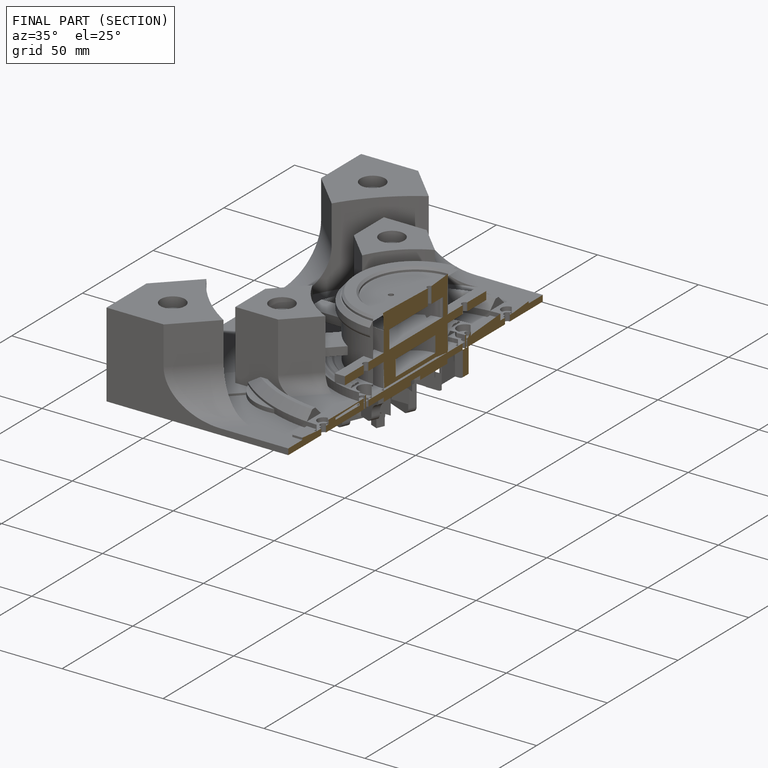
[diagram: finished part — half-section view (interior)]
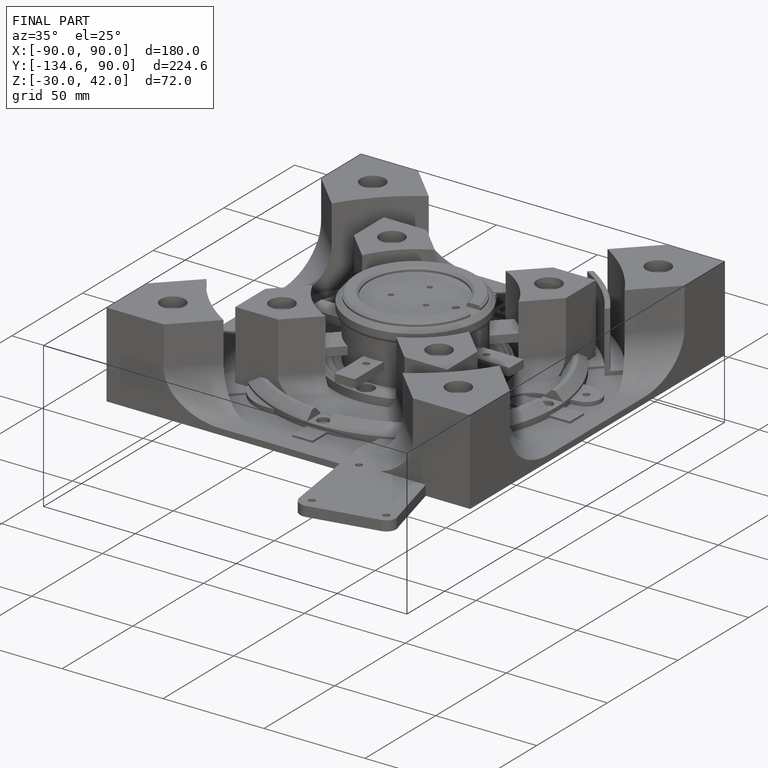
[diagram: finished part — iso view with bounding-box wireframe]
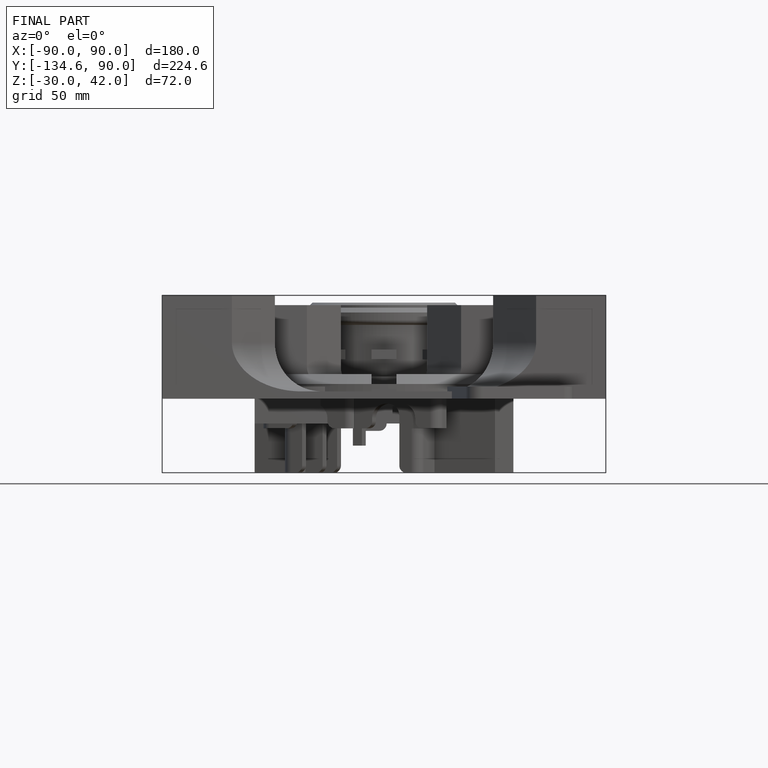
[diagram: finished part — front view with bounding-box wireframe]
